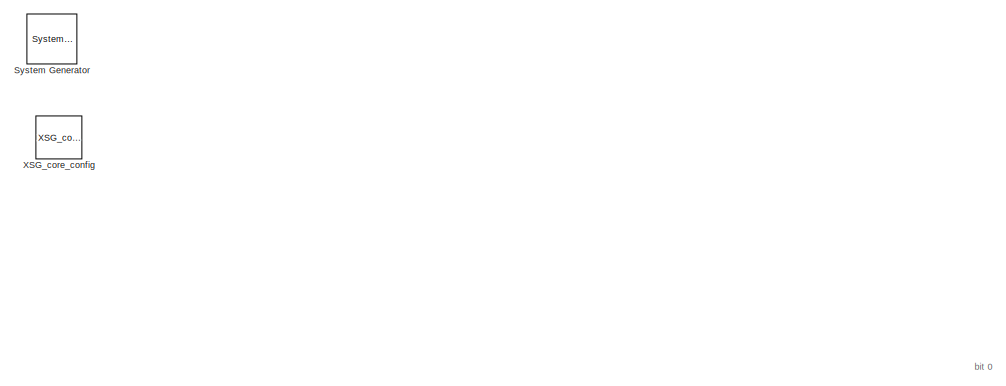
[diagram: root canvas - part 1/2, top left region]
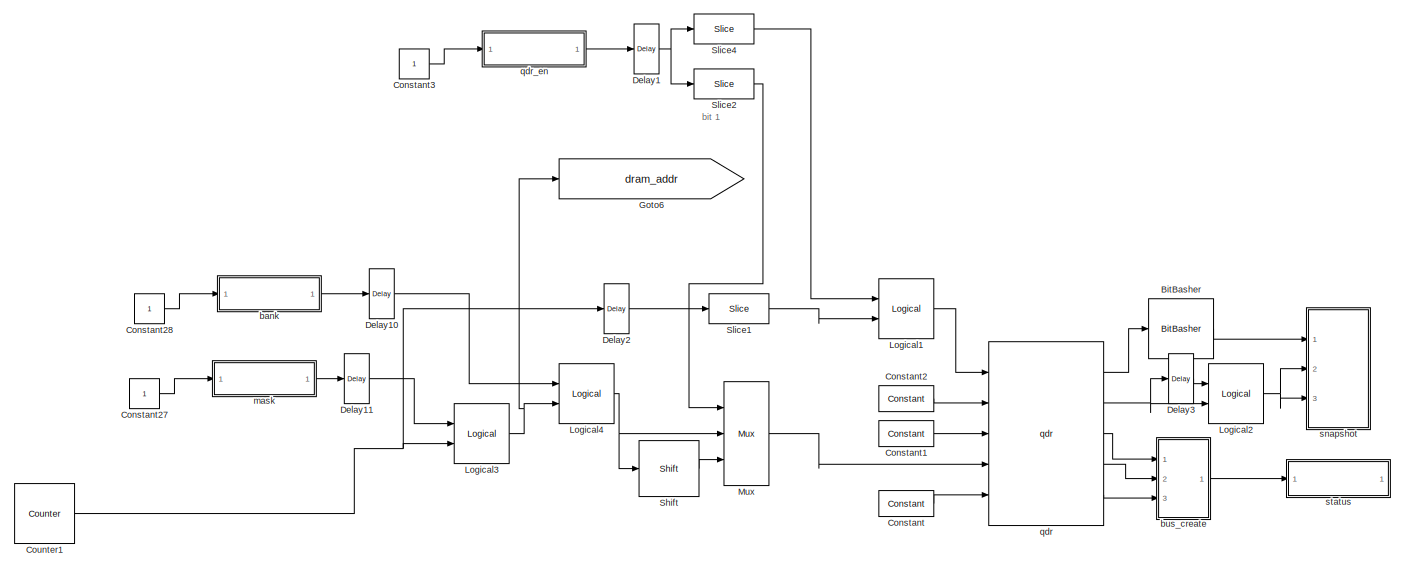
[diagram: root canvas - part 2/2, full width, bottom band]
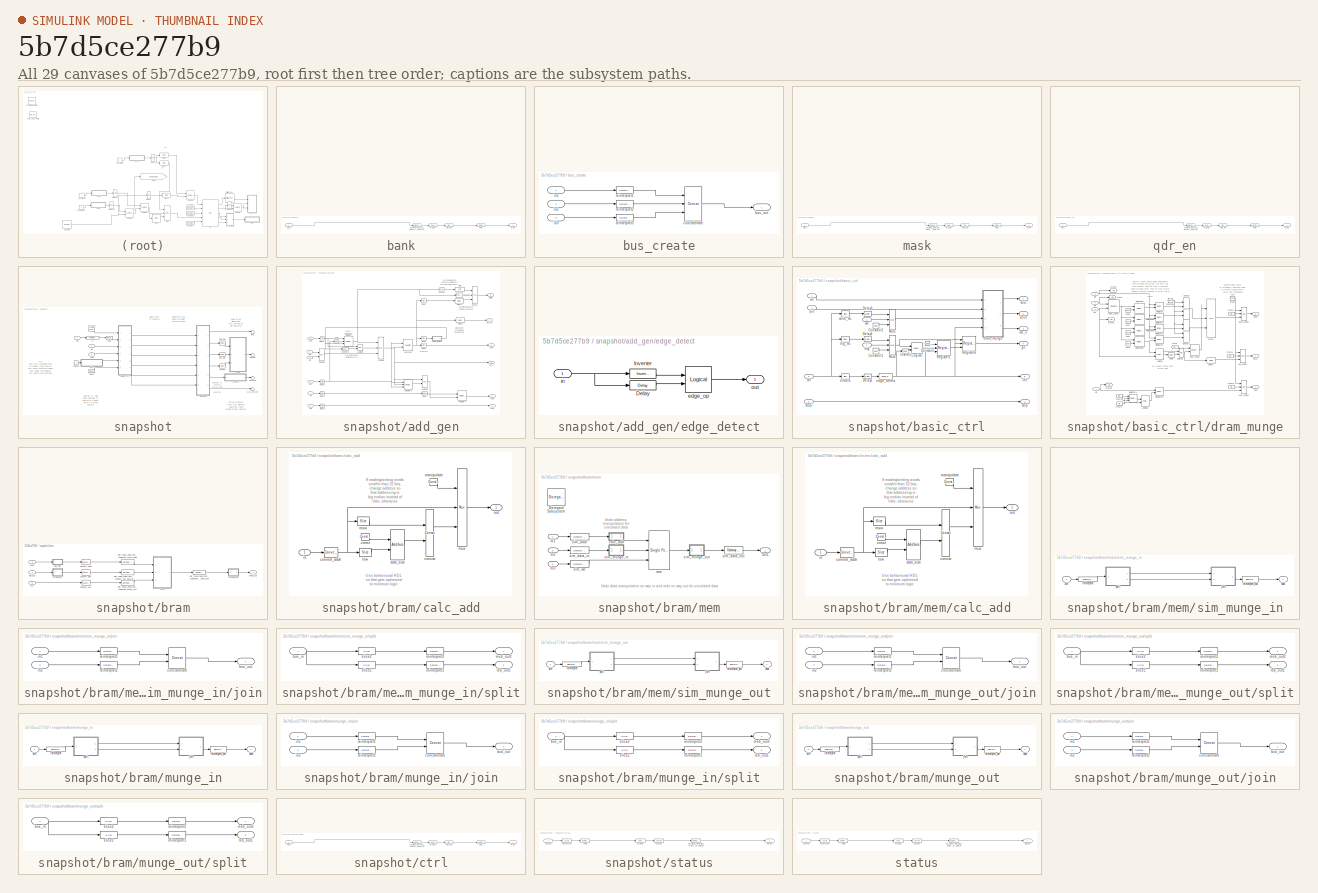
[diagram: thumbnail index - all 29 canvases of the model, root first then tree order]
MODEL slx_5b7d5ce277b9
KIND model
BLOCK [Reference]  System Generator  REF=xbsIndex_r4/ System Generator
  AttributesFormatString = System\nGenerator
  Impl_file = ISE Defaults
  Ports = []
  SourceBlock = xbsIndex_r4/ System Generator
  SourceType = Xilinx System Generator Block
  Synth_file = XST Defaults
  Tag = genX
  UserDataPersistent = on
  block_type = sysgen
  clock_wrapper = Clock Enables
  core_generation = According to Block Masks
  dbl_ovrd = According to Block Masks
  dcm_input_clock_period = 100
  deprecated_control = off
  directory = ./qdr_fpga_read_test/sysgen
  eval_field = 0
  has_advanced_control = 0
  incr_netlist = off
  infoedit = System Generator
  package = ff1759
  part = xc6vsx475t
  proj_type = Project Navigator
  run_coregen = off
  sg_icon_stat = 50,50,-1,-1,token,white,0,07734,right,,[ ],[ ]
  sg_mask_display = fprintf('','COMMENT: begin icon graphics');\npatch([0 50 50 0 0 ],[0 0 50 50 0 ],[1 1 1 ]);\npatch([1.6375 16.81 27.31 37.81 48.31 27.31 12.1375 1.6375 ],[36.655 36.655 47.155 36.655 47.155 47.155 47.155 36.655 ],[0.933333 0.203922 0.141176 ]);\npatch([12.1375 27.31 16.81 1.6375 12.1375 ],[26.155 26.155 36.655 36.655 26.155 ],[0.698039 0.0313725 0.219608 ]);\npatch([1.6375 16.81 27.31 12.1375 1.6375 ]...<+327ch>
  sggui_pos = 326,241,464,470
  simulink_period = 1
  speed = -1
  synthesis_tool = XST
  sysclk_period = 4
  testbench = off
  trim_vbits = Everywhere in SubSystem
  xilinxfamily = virtex6
BLOCK [Reference] BitBasher  REF=xbsIndex_r4/BitBasher
  Ports = [1, 1]
  SourceBlock = xbsIndex_r4/BitBasher
  SourceType = Xilinx BitBasher Block
  arith_type1 = Unsigned
  arith_type2 = Unsigned
  arith_type3 = Unsigned
  arith_type4 = Unsigned
  bin_pt1 = 0
  bin_pt2 = 0
  bin_pt3 = 0
  bin_pt4 = 0
  bitexpr = <!DOCTYPE HTML PUBLIC "-//W3C//DTD HTML 4.0//EN" "http://www.w3.org/TR/REC-html40/strict.dtd">\n<html><head><meta name="qrichtext" content="1" /><style type="text/css">\np, li { white-space: pre-wrap; }\n</style></head><body style=" font-family:'Sans'; font-size:10pt; font-weight:400; font-style:normal;">\n<p style=" margin-top:12px; margin-bottom:12px; margin-left:0px; margin-right:0px; -qt-block-ind...<+128ch>
  block_type = bitbasher
  dbl_ovrd = off
  display_expr = off
  has_advanced_control = 0
  infoedit = Allows extraction, concatenation and augmentation of bits
  sg_icon_stat = 65,60,1,1,white,blue,0,826cc831,right,,[ ],[ ]
  sg_mask_display = fprintf('','COMMENT: begin icon graphics');\npatch([0 65 65 0 0 ],[0 0 60 60 0 ],[0.77 0.82 0.91 ]);\nplot([0 65 65 0 0 ],[0 0 60 60 0 ]);\npatch([14.2 25.76 33.76 41.76 49.76 33.76 22.2 14.2 ],[38.88 38.88 46.88 38.88 46.88 46.88 46.88 38.88 ],[1 1 1 ]);\npatch([22.2 33.76 25.76 14.2 22.2 ],[30.88 30.88 38.88 38.88 30.88 ],[0.931 0.946 0.973 ]);\npatch([14.2 25.76 33.76 22.2 14.2 ],[22.88 22.88 30.88 ...<+345ch>
  sggui_pos = -1,-1,-1,-1
  sr_1 = 1
  sr_2 = 2
  sr_3 = 3
  sr_4 = 4
BLOCK [Reference] Constant  REF=xbsIndex_r4/Constant
  Ports = [0, 1]
  SourceBlock = xbsIndex_r4/Constant
  SourceType = Xilinx Constant Block Block
  arith_type = Signed (2's comp)
  bin_pt = 0
  block_type = constant
  carry = CIN
  const = 0
  dbl_ovrd = off
  dsp48_infoedit = The use of this block for DSP48 instructions is deprecated.  Please use the Opmode block.
  equ = P=C
  exp_width = 8
  explicit_period = on
  frac_width = 24
  gui_display_data_type = Fixed-point
  has_advanced_control = 0
  inp1 = P
  inp2 = PCIN>>17
  n_bits = 72
  opr = +
  opselect = C
  period = 1
  preci_type = Single
  sg_icon_stat = 55,26,0,1,white,blue,0,bf4ddd8b,right,,[ ],[ ]
  sg_mask_display = fprintf('','COMMENT: begin icon graphics');\npatch([0 55 55 0 0 ],[0 0 26 26 0 ],[0.77 0.82 0.91 ]);\nplot([0 55 55 0 0 ],[0 0 26 26 0 ]);\npatch([20.325 24.66 27.66 30.66 33.66 27.66 23.325 20.325 ],[16.33 16.33 19.33 16.33 19.33 19.33 19.33 16.33 ],[1 1 1 ]);\npatch([23.325 27.66 24.66 20.325 23.325 ],[13.33 13.33 16.33 16.33 13.33 ],[0.931 0.946 0.973 ]);\npatch([20.325 24.66 27.66 23.325 20.325 ],[...<+323ch>  <repeated x3 — deduplicated; at blocks: Constant, Constant1, Constant2>
  sggui_pos = -1,-1,-1,-1
BLOCK [Reference] Constant1  REF=xbsIndex_r4/Constant
  Ports = [0, 1]
  SourceBlock = xbsIndex_r4/Constant
  SourceType = Xilinx Constant Block Block
  arith_type = Signed (2's comp)
  bin_pt = 0
  block_type = constant
  carry = CIN
  const = 0
  dbl_ovrd = off
  dsp48_infoedit = The use of this block for DSP48 instructions is deprecated.  Please use the Opmode block.
  equ = P=C
  exp_width = 8
  explicit_period = on
  frac_width = 24
  gui_display_data_type = Fixed-point
  has_advanced_control = 0
  inp1 = P
  inp2 = PCIN>>17
  n_bits = 4
  opr = +
  opselect = C
  period = 1
  preci_type = Single
  sg_icon_stat = 55,26,0,1,white,blue,0,bf4ddd8b,right,,[ ],[ ]
  sggui_pos = -1,-1,-1,-1
BLOCK [Reference] Constant2  REF=xbsIndex_r4/Constant
  Ports = [0, 1]
  SourceBlock = xbsIndex_r4/Constant
  SourceType = Xilinx Constant Block Block
  arith_type = Boolean
  bin_pt = 14
  block_type = constant
  carry = CIN
  const = 0
  dbl_ovrd = off
  dsp48_infoedit = The use of this block for DSP48 instructions is deprecated.  Please use the Opmode block.
  equ = P=C
  exp_width = 8
  explicit_period = on
  frac_width = 24
  gui_display_data_type = Boolean
  has_advanced_control = 0
  inp1 = P
  inp2 = PCIN>>17
  n_bits = 16
  opr = +
  opselect = C
  period = 1
  preci_type = Single
  sg_icon_stat = 55,26,0,1,white,blue,0,bf4ddd8b,right,,[ ],[ ]
  sggui_pos = -1,-1,-1,-1
BLOCK [Constant] Constant27
BLOCK [Constant] Constant28
BLOCK [Constant] Constant3
BLOCK [Reference] Counter1  REF=xbsIndex_r4/Counter
  Ports = [0, 1]
  SourceBlock = xbsIndex_r4/Counter
  SourceType = Xilinx Counter Block
  arith_type = Unsigned
  bin_pt = 0
  block_type = counter
  cnt_by_val = 1
  cnt_to = Inf
  cnt_type = Free Running
  dbl_ovrd = off
  en = off
  explicit_period = on
  has_advanced_control = 0
  implementation = Fabric
  infoedit = Hardware notes: Free running counters are the least expensive in hardware.  A count limited counter is implemented by combining a counter with a comparator.
  load_pin = off
  n_bits = 32
  operation = Up
  period = 1
  rst = off
  sg_icon_stat = 60,60,0,1,white,blue,0,7ac47ef5,right,,[ ],[ ]
  sg_mask_display = fprintf('','COMMENT: begin icon graphics');\npatch([0 60 60 0 0 ],[0 0 60 60 0 ],[0.77 0.82 0.91 ]);\nplot([0 60 60 0 0 ],[0 0 60 60 0 ]);\npatch([12.2 23.76 31.76 39.76 47.76 31.76 20.2 12.2 ],[38.88 38.88 46.88 38.88 46.88 46.88 46.88 38.88 ],[1 1 1 ]);\npatch([20.2 31.76 23.76 12.2 20.2 ],[30.88 30.88 38.88 38.88 30.88 ],[0.931 0.946 0.973 ]);\npatch([12.2 23.76 31.76 20.2 12.2 ],[22.88 22.88 30.88 ...<+321ch>
  sggui_pos = 20,45,451,765
  start_count = 0
  use_behavioral_HDL = off
  xl_area = [0,0,0,0,0,0,0]
  xl_use_area = off
BLOCK [Reference] Delay1  REF=xbsIndex_r4/Delay
  Ports = [1, 1]
  SourceBlock = xbsIndex_r4/Delay
  SourceType = Xilinx Delay Block
  block_type = delay
  dbl_ovrd = off
  en = off
  has_advanced_control = 0
  infoedit = Hardware notes: A delay line is a chain, each link of which is an SRL16 followed by a flip-flop.
  infoeditControl = Selection of Reset will increase slice count due to use of real FFs and instead of SRLs
  latency = 1
  reg_retiming = off
  rst = off
  sg_icon_stat = 25,50,1,1,white,blue,0,07b98262,right,,[ ],[ ]
  sg_mask_display = fprintf('','COMMENT: begin icon graphics');\npatch([0 25 25 0 0 ],[0 0 50 50 0 ],[0.77 0.82 0.91 ]);\nplot([0 25 25 0 0 ],[0 0 50 50 0 ]);\npatch([5.325 9.66 12.66 15.66 18.66 12.66 8.325 5.325 ],[28.33 28.33 31.33 28.33 31.33 31.33 31.33 28.33 ],[1 1 1 ]);\npatch([8.325 12.66 9.66 5.325 8.325 ],[25.33 25.33 28.33 28.33 25.33 ],[0.931 0.946 0.973 ]);\npatch([5.325 9.66 12.66 8.325 5.325 ],[22.33 22.33 ...<+316ch>  <repeated x5 — deduplicated; at blocks: Delay1, Delay10, Delay11, Delay2, Delay3>
  sggui_pos = -1,-1,-1,-1
  xl_area = [0,0,0,0,0,0,0]
  xl_use_area = off
BLOCK [Reference] Delay10  REF=xbsIndex_r4/Delay
  Ports = [1, 1]
  SourceBlock = xbsIndex_r4/Delay
  SourceType = Xilinx Delay Block
  block_type = delay
  dbl_ovrd = off
  en = off
  has_advanced_control = 0
  infoedit = Hardware notes: A delay line is a chain, each link of which is an SRL16 followed by a flip-flop.
  infoeditControl = Selection of Reset will increase slice count due to use of real FFs and instead of SRLs
  latency = 1
  reg_retiming = off
  rst = off
  sg_icon_stat = 25,50,1,1,white,blue,0,07b98262,right,,[ ],[ ]
  sggui_pos = -1,-1,-1,-1
  xl_area = [0,0,0,0,0,0,0]
  xl_use_area = off
BLOCK [Reference] Delay11  REF=xbsIndex_r4/Delay
  Ports = [1, 1]
  SourceBlock = xbsIndex_r4/Delay
  SourceType = Xilinx Delay Block
  block_type = delay
  dbl_ovrd = off
  en = off
  has_advanced_control = 0
  infoedit = Hardware notes: A delay line is a chain, each link of which is an SRL16 followed by a flip-flop.
  infoeditControl = Selection of Reset will increase slice count due to use of real FFs and instead of SRLs
  latency = 1
  reg_retiming = off
  rst = off
  sg_icon_stat = 25,50,1,1,white,blue,0,07b98262,right,,[ ],[ ]
  sggui_pos = -1,-1,-1,-1
  xl_area = [0,0,0,0,0,0,0]
  xl_use_area = off
BLOCK [Reference] Delay2  REF=xbsIndex_r4/Delay
  Ports = [1, 1]
  SourceBlock = xbsIndex_r4/Delay
  SourceType = Xilinx Delay Block
  block_type = delay
  dbl_ovrd = off
  en = off
  has_advanced_control = 0
  infoedit = Hardware notes: A delay line is a chain, each link of which is an SRL16 followed by a flip-flop.
  infoeditControl = Selection of Reset will increase slice count due to use of real FFs and instead of SRLs
  latency = 2
  reg_retiming = off
  rst = off
  sg_icon_stat = 25,50,1,1,white,blue,0,85ce9542,right,,[ ],[ ]
  sggui_pos = 20,45,451,405
  xl_area = [0,0,0,0,0,0,0]
  xl_use_area = off
BLOCK [Reference] Delay3  REF=xbsIndex_r4/Delay
  Ports = [1, 1]
  SourceBlock = xbsIndex_r4/Delay
  SourceType = Xilinx Delay Block
  block_type = delay
  dbl_ovrd = off
  en = off
  has_advanced_control = 0
  infoedit = Hardware notes: A delay line is a chain, each link of which is an SRL16 followed by a flip-flop.
  infoeditControl = Selection of Reset will increase slice count due to use of real FFs and instead of SRLs
  latency = 1
  reg_retiming = off
  rst = off
  sg_icon_stat = 25,50,1,1,white,blue,0,07b98262,right,,[ ],[ ]
  sggui_pos = -1,-1,-1,-1
  xl_area = [0,0,0,0,0,0,0]
  xl_use_area = off
BLOCK [Goto] Goto6
  GotoTag = dram_addr
BLOCK [Reference] Logical1  REF=xbsIndex_r4/Logical
  Ports = [2, 1]
  SourceBlock = xbsIndex_r4/Logical
  SourceType = Xilinx Logical Block Block
  align_bp = on
  arith_type = Unsigned
  bin_pt = 0
  block_type = logical
  dbl_ovrd = off
  en = off
  has_advanced_control = 0
  inputs = 2
  latency = 0
  logical_function = AND
  n_bits = 16
  precision = Full
  sg_icon_stat = 55,60,2,1,white,blue,0,83a4b621,right,,[ ],[ ]
  sg_mask_display = fprintf('','COMMENT: begin icon graphics');\npatch([0 55 55 0 0 ],[0 0 60 60 0 ],[0.77 0.82 0.91 ]);\nplot([0 55 55 0 0 ],[0 0 60 60 0 ]);\npatch([11.425 21.54 28.54 35.54 42.54 28.54 18.425 11.425 ],[37.77 37.77 44.77 37.77 44.77 44.77 44.77 37.77 ],[1 1 1 ]);\npatch([18.425 28.54 21.54 11.425 18.425 ],[30.77 30.77 37.77 37.77 30.77 ],[0.931 0.946 0.973 ]);\npatch([11.425 21.54 28.54 18.425 11.425 ],[...<+315ch>
  sggui_pos = 20,45,451,297
  xl_area = [0,0,0,0,0,0,0]
  xl_use_area = off
BLOCK [Reference] Logical2  REF=xbsIndex_r4/Logical
  Ports = [2, 1]
  SourceBlock = xbsIndex_r4/Logical
  SourceType = Xilinx Logical Block Block
  align_bp = on
  arith_type = Unsigned
  bin_pt = 0
  block_type = logical
  dbl_ovrd = off
  en = off
  has_advanced_control = 0
  inputs = 2
  latency = 0
  logical_function = OR
  n_bits = 16
  precision = Full
  sg_icon_stat = 55,60,2,1,white,blue,0,7ede7d88,right,,[ ],[ ]
  sg_mask_display = fprintf('','COMMENT: begin icon graphics');\npatch([0 55 55 0 0 ],[0 0 60 60 0 ],[0.77 0.82 0.91 ]);\nplot([0 55 55 0 0 ],[0 0 60 60 0 ]);\npatch([11.425 21.54 28.54 35.54 42.54 28.54 18.425 11.425 ],[37.77 37.77 44.77 37.77 44.77 44.77 44.77 37.77 ],[1 1 1 ]);\npatch([18.425 28.54 21.54 11.425 18.425 ],[30.77 30.77 37.77 37.77 30.77 ],[0.931 0.946 0.973 ]);\npatch([11.425 21.54 28.54 18.425 11.425 ],[...<+314ch>
  sggui_pos = 20,45,451,297
  xl_area = [0,0,0,0,0,0,0]
  xl_use_area = off
BLOCK [Reference] Logical3  REF=xbsIndex_r4/Logical
  Ports = [2, 1]
  SourceBlock = xbsIndex_r4/Logical
  SourceType = Xilinx Logical Block Block
  align_bp = on
  arith_type = Unsigned
  bin_pt = 0
  block_type = logical
  dbl_ovrd = off
  en = off
  has_advanced_control = 0
  inputs = 2
  latency = 1
  logical_function = AND
  n_bits = 16
  precision = Full
  sg_icon_stat = 55,60,2,1,white,blue,0,e7f9d02e,right,,[ ],[ ]
  sg_mask_display = fprintf('','COMMENT: begin icon graphics');\npatch([0 55 55 0 0 ],[0 0 60 60 0 ],[0.77 0.82 0.91 ]);\nplot([0 55 55 0 0 ],[0 0 60 60 0 ]);\npatch([11.425 21.54 28.54 35.54 42.54 28.54 18.425 11.425 ],[37.77 37.77 44.77 37.77 44.77 44.77 44.77 37.77 ],[1 1 1 ]);\npatch([18.425 28.54 21.54 11.425 18.425 ],[30.77 30.77 37.77 37.77 30.77 ],[0.931 0.946 0.973 ]);\npatch([11.425 21.54 28.54 18.425 11.425 ],[...<+373ch>
  sggui_pos = 20,45,451,297
  xl_area = [0,0,0,0,0,0,0]
  xl_use_area = off
BLOCK [Reference] Logical4  REF=xbsIndex_r4/Logical
  Ports = [2, 1]
  SourceBlock = xbsIndex_r4/Logical
  SourceType = Xilinx Logical Block Block
  align_bp = on
  arith_type = Unsigned
  bin_pt = 0
  block_type = logical
  dbl_ovrd = off
  en = off
  has_advanced_control = 0
  inputs = 2
  latency = 1
  logical_function = OR
  n_bits = 16
  precision = Full
  sg_icon_stat = 55,60,2,1,white,blue,0,bc838b24,right,,[ ],[ ]
  sg_mask_display = fprintf('','COMMENT: begin icon graphics');\npatch([0 55 55 0 0 ],[0 0 60 60 0 ],[0.77 0.82 0.91 ]);\nplot([0 55 55 0 0 ],[0 0 60 60 0 ]);\npatch([11.425 21.54 28.54 35.54 42.54 28.54 18.425 11.425 ],[37.77 37.77 44.77 37.77 44.77 44.77 44.77 37.77 ],[1 1 1 ]);\npatch([18.425 28.54 21.54 11.425 18.425 ],[30.77 30.77 37.77 37.77 30.77 ],[0.931 0.946 0.973 ]);\npatch([11.425 21.54 28.54 18.425 11.425 ],[...<+372ch>
  sggui_pos = 20,45,451,297
  xl_area = [0,0,0,0,0,0,0]
  xl_use_area = off
BLOCK [Reference] Mux  REF=xbsIndex_r4/Mux
  Ports = [3, 1]
  SourceBlock = xbsIndex_r4/Mux
  SourceType = Xilinx Bus Multiplexer Block
  arith_type = Unsigned
  bin_pt = 14
  block_type = mux
  dbl_ovrd = off
  en = off
  has_advanced_control = 0
  inputs = 2
  latency = 0
  n_bits = 16
  overflow = Wrap
  precision = Full
  quantization = Truncate
  sg_icon_stat = 45,104,3,1,white,blue,3,eb98d690,right,,[ ],[ ]
  sg_mask_display = fprintf('','COMMENT: begin icon graphics');\npatch([0 45 45 0 0 ],[0 14.8571 89.1429 104 0 ],[0.77 0.82 0.91 ]);\nplot([0 45 45 0 0 ],[0 14.8571 89.1429 104 0 ]);\npatch([8.65 17.32 23.32 29.32 35.32 23.32 14.65 8.65 ],[58.66 58.66 64.66 58.66 64.66 64.66 64.66 58.66 ],[1 1 1 ]);\npatch([14.65 23.32 17.32 8.65 14.65 ],[52.66 52.66 58.66 58.66 52.66 ],[0.931 0.946 0.973 ]);\npatch([8.65 17.32 23.32 14.6...<+466ch>
  sggui_pos = 20,45,451,365
  xl_area = [0,0,0,0,0,0,0]
  xl_use_area = off
BLOCK [Reference] Shift  REF=xbsIndex_r4/Shift
  Ports = [1, 1]
  SourceBlock = xbsIndex_r4/Shift
  SourceType = Xilinx Binary Shift Operator Block
  arith_type = Unsigned
  bin_pt = 0
  block_type = shift
  dbl_ovrd = off
  en = off
  has_advanced_control = 0
  infoedit = Hardware notes: In hardware this block costs nothing if full output precision is used.
  latency = 0
  n_bits = 32
  overflow = Wrap
  precision = User Defined
  quantization = Truncate
  sg_icon_stat = 60,56,1,1,white,blue,0,77cd8d92,right,,[ ],[ ]
  sg_mask_display = fprintf('','COMMENT: begin icon graphics');\npatch([0 60 60 0 0 ],[0 0 56 56 0 ],[0.77 0.82 0.91 ]);\nplot([0 60 60 0 0 ],[0 0 56 56 0 ]);\npatch([12.2 23.76 31.76 39.76 47.76 31.76 20.2 12.2 ],[36.88 36.88 44.88 36.88 44.88 44.88 44.88 36.88 ],[1 1 1 ]);\npatch([20.2 31.76 23.76 12.2 20.2 ],[28.88 28.88 36.88 36.88 28.88 ],[0.931 0.946 0.973 ]);\npatch([12.2 23.76 31.76 20.2 12.2 ],[20.88 20.88 28.88 ...<+313ch>
  sggui_pos = 20,45,451,459
  shift_bits = 1
  shift_dir = Right
  xl_area = [0,0,0,0,0,0,0]
  xl_use_area = off
BLOCK [Reference] Slice1  REF=xbsIndex_r4/Slice
  Ports = [1, 1]
  SourceBlock = xbsIndex_r4/Slice
  SourceType = Xilinx Bit Slice Extractor Block
  base0 = LSB of Input
  base1 = LSB of Input
  bit0 = 0
  bit1 = 0
  block_type = slice
  boolean_output = on
  dbl_ovrd = off
  has_advanced_control = 0
  infoedit = Extracts a given range of bits from each input sample and presents it at the output.  The output type is ordinarily unsigned with binary point at zero, but can be Boolean when the slice is one bit wide.<br><br>Hardware notes: In hardware this block costs nothing.  <repeated x22 — deduplicated; at blocks: Slice1, Slice2, Slice4, slice_reg, slice1, slice2, slice3, lsw, msw>
  mode = Lower Bit Location + Width
  nbits = 1
  sg_icon_stat = 60,30,1,1,white,blue,0,1fd851a7,right,,[ ],[ ]
  sg_mask_display = fprintf('','COMMENT: begin icon graphics');\npatch([0 60 60 0 0 ],[0 0 30 30 0 ],[0.77 0.82 0.91 ]);\nplot([0 60 60 0 0 ],[0 0 30 30 0 ]);\npatch([21.1 26.88 30.88 34.88 38.88 30.88 25.1 21.1 ],[19.44 19.44 23.44 19.44 23.44 23.44 23.44 19.44 ],[1 1 1 ]);\npatch([25.1 30.88 26.88 21.1 25.1 ],[15.44 15.44 19.44 19.44 15.44 ],[0.931 0.946 0.973 ]);\npatch([21.1 26.88 30.88 25.1 21.1 ],[11.44 11.44 15.44 ...<+304ch>  <repeated x7 — deduplicated; at blocks: Slice1, Slice2, Slice4, slice_reg>
  sggui_pos = 20,45,591,503
BLOCK [Reference] Slice2  REF=xbsIndex_r4/Slice
  Ports = [1, 1]
  SourceBlock = xbsIndex_r4/Slice
  SourceType = Xilinx Bit Slice Extractor Block
  base0 = LSB of Input
  base1 = LSB of Input
  bit0 = 1
  bit1 = 0
  block_type = slice
  boolean_output = on
  dbl_ovrd = off
  has_advanced_control = 0
  mode = Lower Bit Location + Width
  nbits = 1
  sg_icon_stat = 60,30,1,1,white,blue,0,1fd851a7,right,,[ ],[ ]
  sggui_pos = 20,45,591,503
BLOCK [Reference] Slice4  REF=xbsIndex_r4/Slice
  Ports = [1, 1]
  SourceBlock = xbsIndex_r4/Slice
  SourceType = Xilinx Bit Slice Extractor Block
  base0 = LSB of Input
  base1 = LSB of Input
  bit0 = 0
  bit1 = 0
  block_type = slice
  boolean_output = on
  dbl_ovrd = off
  has_advanced_control = 0
  mode = Lower Bit Location + Width
  nbits = 1
  sg_icon_stat = 60,30,1,1,white,blue,0,1fd851a7,right,,[ ],[ ]
  sggui_pos = 20,45,591,503
BLOCK [Reference] XSG_core_config  REF=xps_library/XSG_core_config  (lib defined in mdl_00b5cec29cd0, mdl_02ab6ecaa3d1, +5 more)
  MKDIG_clk_src = sys_clk
  Ports = []
  ROACH2_clk_src = sys_clk
  ROACH_clk_src = sys_clk
  SourceBlock = xps_library/XSG_core_config
  SourceType = xsg core config
  Tag = xps:xsg
  clk_rate = 250
  clk_src = sys_clk
  hw_sys = ROACH2:sx475t
  sample_period = 1
  synthesis_tool = XST
BLOCK [SubSystem] bank
  AncestorBlock = xps_library/software register
  AttributesFormatString = 1input
  FunctionWithSeparateData = off
  MaskHideContents = off
  MinAlgLoopOccurrences = off
  Opaque = off
  Ports = [1, 1]
  PropExecContextOutsideSubsystem = off
  RTWSystemCode = Auto
  RequestExecContextInheritance = off
  Tag = xps:sw_reg
BLOCK [Outport] bank/in_reg
  IconDisplay = Port number
BLOCK [Reference] bank/io_delay  REF=xbsIndex_r4/Delay
  Ports = [1, 1]
  SourceBlock = xbsIndex_r4/Delay
  SourceType = Xilinx Delay Block
  block_type = delay
  dbl_ovrd = off
  en = off
  has_advanced_control = 0
  infoedit = Hardware notes: A delay line is a chain, each link of which is an SRL16 followed by a flip-flop.
  infoeditControl = Selection of Reset will increase slice count due to use of real FFs and instead of SRLs
  latency = 0
  reg_retiming = on
  rst = off
  sg_icon_stat = 50,20,1,1,white,blue,0,24450e6f,right,,[ ],[ ]
  sg_mask_display = fprintf('','COMMENT: begin icon graphics');\npatch([0 50 50 0 0 ],[0 0 20 20 0 ],[0.77 0.82 0.91 ]);\nplot([0 50 50 0 0 ],[0 0 20 20 0 ]);\npatch([20.55 23.44 25.44 27.44 29.44 25.44 22.55 20.55 ],[12.22 12.22 14.22 12.22 14.22 14.22 14.22 12.22 ],[1 1 1 ]);\npatch([22.55 25.44 23.44 20.55 22.55 ],[10.22 10.22 12.22 12.22 10.22 ],[0.931 0.946 0.973 ]);\npatch([20.55 23.44 25.44 22.55 20.55 ],[8.22 8.22...<+310ch>  <repeated x14 — deduplicated; at blocks: io_delay, slice1, slice2>
  sggui_pos = -1,-1,-1,-1
  xl_area = [0,0,0,0,0,0,0]
  xl_use_area = off
BLOCK [Reference] bank/qdr_fpga_read_test_bank_user_data_out  REF=xbsIndex_r4/Gateway In
  ADCChannel = '1'
  LOCs = {}
  Ports = [1, 1]
  SourceBlock = xbsIndex_r4/Gateway In
  SourceType = Xilinx Gateway In Block
  UseAsADC = off
  arith_type = Unsigned
  bin_pt = 0
  block_type = gatewayin
  dbl_ovrd = off
  exp_width = 8
  frac_width = 24
  gui_display_data_type = Fixed-point
  has_advanced_control = 0
  hdl_port = on
  infoedit = Gateway in block.  Converts inputs of type Simulink integer, single, double and fixed-point to  Xilinx fixed-point or floating-point data type.<br><br>Hardware notes:  In hardware these blocks become top level input ports.  <repeated x6 — deduplicated; at blocks: qdr_fpga_read_test_bank_user_data_out, qdr_fpga_read_test_mask_user_data_out, qdr_fpga_read_test_qdr_en_user_data_out, sim_data_in, qdr_fpga_read_test_snapshot_bram_data_out, qdr_fpga_read_test_snapshot_ctrl_user_data_out>
  inherit_from_input = off
  locs_specified = off
  n_bits = 32
  overflow = Saturate
  period = 1
  preci_type = Single
  quantization = Round  (unbiased: +/- Inf)
  sg_icon_stat = 65,20,1,1,white,yellow,1,00d3666e,right,,[ ],[ ]
  sg_mask_display = fprintf('','COMMENT: begin icon graphics');\npatch([0 65 65 0 0 ],[0 0 20 20 0 ],[0.95 0.93 0.65 ]);\nplot([0 65 65 0 0 ],[0 0 20 20 0 ]);\npatch([27.55 30.44 32.44 34.44 36.44 32.44 29.55 27.55 ],[12.22 12.22 14.22 12.22 14.22 14.22 14.22 12.22 ],[1 1 1 ]);\npatch([29.55 32.44 30.44 27.55 29.55 ],[10.22 10.22 12.22 12.22 10.22 ],[0.985 0.979 0.895 ]);\npatch([27.55 30.44 32.44 29.55 27.55 ],[8.22 8.22...<+383ch>  <repeated x4 — deduplicated; at blocks: qdr_fpga_read_test_bank_user_data_out, qdr_fpga_read_test_mask_user_data_out, qdr_fpga_read_test_qdr_en_user_data_out, qdr_fpga_read_test_snapshot_ctrl_user_data_out>
  sggui_pos = -1,-1,-1,-1
  timing_constraint = None
  xl_area = [0,0,0,0,0,0,0]
  xl_use_area = off
BLOCK [Reference] bank/reint1  REF=xbsIndex_r4/Reinterpret
  Ports = [1, 1]
  SourceBlock = xbsIndex_r4/Reinterpret
  SourceType = Xilinx Type Reinterpreter Block
  arith_type = Unsigned
  bin_pt = 0
  block_type = reinterpret
  force_arith_type = on
  force_bin_pt = on
  has_advanced_control = 0
  infoedit = Changes signal type without altering the binary representation.   You can change the signal between signed and unsigned, and relocate the binary point.<br><br>Hardware notes: In hardware this block costs nothing.<br><br>Example:  Suppose the input is 6 bits wide, signed, with 2 fractional bits, and the output is forced to unsigned with 0 fractional bits.  Then an input of -2.0 (1110.00 in binary 2...<+58ch>  <repeated x23 — deduplicated; at blocks: reint1, reinterpret3, reinterpret, reinterpret_out, reinterpret1, reinterpret2>
  sg_icon_stat = 50,32,1,1,white,blue,0,6b04d0b0,right,,[ ],[ ]
  sg_mask_display = fprintf('','COMMENT: begin icon graphics');\npatch([0 50 50 0 0 ],[0 0 32 32 0 ],[0.77 0.82 0.91 ]);\nplot([0 50 50 0 0 ],[0 0 32 32 0 ]);\npatch([16.1 21.88 25.88 29.88 33.88 25.88 20.1 16.1 ],[20.44 20.44 24.44 20.44 24.44 24.44 24.44 20.44 ],[1 1 1 ]);\npatch([20.1 25.88 21.88 16.1 20.1 ],[16.44 16.44 20.44 20.44 16.44 ],[0.931 0.946 0.973 ]);\npatch([16.1 21.88 25.88 20.1 16.1 ],[12.44 12.44 16.44 ...<+294ch>  <repeated x6 — deduplicated; at blocks: reint1>
  sggui_pos = -1,-1,-1,-1
BLOCK [Inport] bank/sim_1
  IconDisplay = Port number
BLOCK [Reference] bank/slice_reg  REF=xbsIndex_r4/Slice
  Ports = [1, 1]
  SourceBlock = xbsIndex_r4/Slice
  SourceType = Xilinx Bit Slice Extractor Block
  base0 = LSB of Input
  base1 = MSB of Input
  bit0 = 0
  bit1 = 0
  block_type = slice
  boolean_output = off
  dbl_ovrd = off
  has_advanced_control = 0
  mode = Lower Bit Location + Width
  nbits = 32
  sg_icon_stat = 60,30,1,1,white,blue,0,1fd851a7,right,,[ ],[ ]
  sggui_pos = -1,-1,-1,-1
BLOCK [SubSystem] bus_create
  AncestorBlock = casper_library_flow_control/bus_create
  FunctionWithSeparateData = off
  MaskHideContents = off
  MinAlgLoopOccurrences = off
  Opaque = off
  Ports = [3, 1]
  PropExecContextOutsideSubsystem = off
  RTWSystemCode = Auto
  RequestExecContextInheritance = off
  UserDataPersistent = on
BLOCK [Outport] bus_create/bus_out
  IconDisplay = Port number
BLOCK [Reference] bus_create/concatenate  REF=xbsIndex_r4/Concat
  Ports = [3, 1]
  SourceBlock = xbsIndex_r4/Concat
  SourceType = Xilinx Bus Concatenator Block
  block_type = concat
  block_version = 11.4
  dbl_ovrd = off
  has_advanced_control = 0
  infoedit = Concatenates two or more inputs.  Output will be cast to an unsigned value with the binary point at zero.
  num_inputs = 3
  sg_icon_stat = 50,100,3,1,white,blue,0,61ef8218,right,,[ ],[ ]
  sg_mask_display = fprintf('','COMMENT: begin icon graphics');\npatch([0 50 50 0 0 ],[0 0 100 100 0 ],[0.77 0.82 0.91 ]);\nplot([0 50 50 0 0 ],[0 0 100 100 0 ]);\npatch([9.425 19.54 26.54 33.54 40.54 26.54 16.425 9.425 ],[57.77 57.77 64.77 57.77 64.77 64.77 64.77 57.77 ],[1 1 1 ]);\npatch([16.425 26.54 19.54 9.425 16.425 ],[50.77 50.77 57.77 57.77 50.77 ],[0.931 0.946 0.973 ]);\npatch([9.425 19.54 26.54 16.425 9.425 ],[4...<+425ch>
  sggui_pos = -1,-1,-1,-1
BLOCK [Inport] bus_create/in1
  IconDisplay = Port number
BLOCK [Inport] bus_create/in2
  IconDisplay = Port number
  Port = 2
BLOCK [Inport] bus_create/in3
  IconDisplay = Port number
  Port = 3
BLOCK [Reference] bus_create/reinterpret1  REF=xbsIndex_r4/Reinterpret
  Ports = [1, 1]
  SourceBlock = xbsIndex_r4/Reinterpret
  SourceType = Xilinx Type Reinterpreter Block
  arith_type = Unsigned
  bin_pt = 0
  block_type = reinterpret
  block_version = 11.4
  force_arith_type = on
  force_bin_pt = on
  has_advanced_control = 0
  infoedit = Changes signal type without altering the binary representation.   You can changed the signal between signed and unsigned, and relocate the binary point.<br><br>Hardware notes: In hardware this block costs nothing.<br><br>Example:  Suppose the input is 6 bits wide, signed, with 2 fractional bits, and the output is forced to unsigned with 0 fractional bits.  Then an input of -2.0 (1110.00 in binary ...<+59ch>  <repeated x11 — deduplicated; at blocks: reinterpret1, reinterpret2, ri>
  sg_icon_stat = 50,20,1,1,white,blue,0,6b04d0b0,right,,[ ],[ ]
  sg_mask_display = fprintf('','COMMENT: begin icon graphics');\npatch([0 50 50 0 0 ],[0 0 20 20 0 ],[0.77 0.82 0.91 ]);\nplot([0 50 50 0 0 ],[0 0 20 20 0 ]);\npatch([20.55 23.44 25.44 27.44 29.44 25.44 22.55 20.55 ],[12.22 12.22 14.22 12.22 14.22 14.22 14.22 12.22 ],[1 1 1 ]);\npatch([22.55 25.44 23.44 20.55 22.55 ],[10.22 10.22 12.22 12.22 10.22 ],[0.931 0.946 0.973 ]);\npatch([20.55 23.44 25.44 22.55 20.55 ],[8.22 8.22...<+300ch>  <repeated x19 — deduplicated; at blocks: reinterpret1, reinterpret2, reinterpret3>
  sggui_pos = -1,-1,-1,-1
BLOCK [Reference] bus_create/reinterpret2  REF=xbsIndex_r4/Reinterpret
  Ports = [1, 1]
  SourceBlock = xbsIndex_r4/Reinterpret
  SourceType = Xilinx Type Reinterpreter Block
  arith_type = Unsigned
  bin_pt = 0
  block_type = reinterpret
  block_version = 11.4
  force_arith_type = on
  force_bin_pt = on
  has_advanced_control = 0
  sg_icon_stat = 50,20,1,1,white,blue,0,6b04d0b0,right,,[ ],[ ]
  sggui_pos = 281,224,671,460
BLOCK [Reference] bus_create/reinterpret3  REF=xbsIndex_r4/Reinterpret
  Ports = [1, 1]
  SourceBlock = xbsIndex_r4/Reinterpret
  SourceType = Xilinx Type Reinterpreter Block
  arith_type = Unsigned
  bin_pt = 0
  block_type = reinterpret
  force_arith_type = on
  force_bin_pt = on
  has_advanced_control = 0
  sg_icon_stat = 50,20,1,1,white,blue,0,6b04d0b0,right,,[ ],[ ]
  sggui_pos = -1,-1,-1,-1
BLOCK [SubSystem] mask
  AncestorBlock = xps_library/software register
  AttributesFormatString = 1input
  FunctionWithSeparateData = off
  MaskHideContents = off
  MinAlgLoopOccurrences = off
  Opaque = off
  Ports = [1, 1]
  PropExecContextOutsideSubsystem = off
  RTWSystemCode = Auto
  RequestExecContextInheritance = off
  Tag = xps:sw_reg
BLOCK [Outport] mask/in_reg
  IconDisplay = Port number
BLOCK [Reference] mask/io_delay  REF=xbsIndex_r4/Delay
  Ports = [1, 1]
  SourceBlock = xbsIndex_r4/Delay
  SourceType = Xilinx Delay Block
  block_type = delay
  dbl_ovrd = off
  en = off
  has_advanced_control = 0
  infoedit = Hardware notes: A delay line is a chain, each link of which is an SRL16 followed by a flip-flop.
  infoeditControl = Selection of Reset will increase slice count due to use of real FFs and instead of SRLs
  latency = 0
  reg_retiming = on
  rst = off
  sg_icon_stat = 50,20,1,1,white,blue,0,24450e6f,right,,[ ],[ ]
  sggui_pos = -1,-1,-1,-1
  xl_area = [0,0,0,0,0,0,0]
  xl_use_area = off
BLOCK [Reference] mask/qdr_fpga_read_test_mask_user_data_out  REF=xbsIndex_r4/Gateway In
  ADCChannel = '1'
  LOCs = {}
  Ports = [1, 1]
  SourceBlock = xbsIndex_r4/Gateway In
  SourceType = Xilinx Gateway In Block
  UseAsADC = off
  arith_type = Unsigned
  bin_pt = 0
  block_type = gatewayin
  dbl_ovrd = off
  exp_width = 8
  frac_width = 24
  gui_display_data_type = Fixed-point
  has_advanced_control = 0
  hdl_port = on
  inherit_from_input = off
  locs_specified = off
  n_bits = 32
  overflow = Saturate
  period = 1
  preci_type = Single
  quantization = Round  (unbiased: +/- Inf)
  sg_icon_stat = 65,20,1,1,white,yellow,1,00d3666e,right,,[ ],[ ]
  sggui_pos = -1,-1,-1,-1
  timing_constraint = None
  xl_area = [0,0,0,0,0,0,0]
  xl_use_area = off
BLOCK [Reference] mask/reint1  REF=xbsIndex_r4/Reinterpret
  Ports = [1, 1]
  SourceBlock = xbsIndex_r4/Reinterpret
  SourceType = Xilinx Type Reinterpreter Block
  arith_type = Unsigned
  bin_pt = 0
  block_type = reinterpret
  force_arith_type = on
  force_bin_pt = on
  has_advanced_control = 0
  sg_icon_stat = 50,32,1,1,white,blue,0,6b04d0b0,right,,[ ],[ ]
  sggui_pos = -1,-1,-1,-1
BLOCK [Inport] mask/sim_1
  IconDisplay = Port number
BLOCK [Reference] mask/slice_reg  REF=xbsIndex_r4/Slice
  Ports = [1, 1]
  SourceBlock = xbsIndex_r4/Slice
  SourceType = Xilinx Bit Slice Extractor Block
  base0 = LSB of Input
  base1 = MSB of Input
  bit0 = 0
  bit1 = 0
  block_type = slice
  boolean_output = off
  dbl_ovrd = off
  has_advanced_control = 0
  mode = Lower Bit Location + Width
  nbits = 32
  sg_icon_stat = 60,30,1,1,white,blue,0,1fd851a7,right,,[ ],[ ]
  sggui_pos = -1,-1,-1,-1
BLOCK [Reference] qdr  REF=xps_library/qdr  (lib defined in mdl_00b5cec29cd0, mdl_02ab6ecaa3d1, +5 more)
  Ports = [5, 5]
  SourceBlock = xps_library/qdr
  SourceType = qdr
  Tag = xps:qdr
  qdr_awidth = 12
  use_sniffer = on
  which_qdr = qdr0
BLOCK [SubSystem] qdr_en
  AncestorBlock = xps_library/software register
  AttributesFormatString = 1input
  FunctionWithSeparateData = off
  MaskHideContents = off
  MinAlgLoopOccurrences = off
  Opaque = off
  Ports = [1, 1]
  PropExecContextOutsideSubsystem = off
  RTWSystemCode = Auto
  RequestExecContextInheritance = off
  Tag = xps:sw_reg
BLOCK [Outport] qdr_en/in_reg
  IconDisplay = Port number
BLOCK [Reference] qdr_en/io_delay  REF=xbsIndex_r4/Delay
  Ports = [1, 1]
  SourceBlock = xbsIndex_r4/Delay
  SourceType = Xilinx Delay Block
  block_type = delay
  dbl_ovrd = off
  en = off
  has_advanced_control = 0
  infoedit = Hardware notes: A delay line is a chain, each link of which is an SRL16 followed by a flip-flop.
  infoeditControl = Selection of Reset will increase slice count due to use of real FFs and instead of SRLs
  latency = 0
  reg_retiming = on
  rst = off
  sg_icon_stat = 50,20,1,1,white,blue,0,24450e6f,right,,[ ],[ ]
  sggui_pos = -1,-1,-1,-1
  xl_area = [0,0,0,0,0,0,0]
  xl_use_area = off
BLOCK [Reference] qdr_en/qdr_fpga_read_test_qdr_en_user_data_out  REF=xbsIndex_r4/Gateway In
  ADCChannel = '1'
  LOCs = {}
  Ports = [1, 1]
  SourceBlock = xbsIndex_r4/Gateway In
  SourceType = Xilinx Gateway In Block
  UseAsADC = off
  arith_type = Unsigned
  bin_pt = 0
  block_type = gatewayin
  dbl_ovrd = off
  exp_width = 8
  frac_width = 24
  gui_display_data_type = Fixed-point
  has_advanced_control = 0
  hdl_port = on
  inherit_from_input = off
  locs_specified = off
  n_bits = 32
  overflow = Saturate
  period = 1
  preci_type = Single
  quantization = Round  (unbiased: +/- Inf)
  sg_icon_stat = 65,20,1,1,white,yellow,1,00d3666e,right,,[ ],[ ]
  sggui_pos = -1,-1,-1,-1
  timing_constraint = None
  xl_area = [0,0,0,0,0,0,0]
  xl_use_area = off
BLOCK [Reference] qdr_en/reint1  REF=xbsIndex_r4/Reinterpret
  Ports = [1, 1]
  SourceBlock = xbsIndex_r4/Reinterpret
  SourceType = Xilinx Type Reinterpreter Block
  arith_type = Unsigned
  bin_pt = 0
  block_type = reinterpret
  force_arith_type = on
  force_bin_pt = on
  has_advanced_control = 0
  sg_icon_stat = 50,32,1,1,white,blue,0,6b04d0b0,right,,[ ],[ ]
  sggui_pos = -1,-1,-1,-1
BLOCK [Inport] qdr_en/sim_1
  IconDisplay = Port number
BLOCK [Reference] qdr_en/slice_reg  REF=xbsIndex_r4/Slice
  Ports = [1, 1]
  SourceBlock = xbsIndex_r4/Slice
  SourceType = Xilinx Bit Slice Extractor Block
  base0 = LSB of Input
  base1 = MSB of Input
  bit0 = 0
  bit1 = 0
  block_type = slice
  boolean_output = off
  dbl_ovrd = off
  has_advanced_control = 0
  mode = Lower Bit Location + Width
  nbits = 32
  sg_icon_stat = 60,30,1,1,white,blue,0,1fd851a7,right,,[ ],[ ]
  sggui_pos = -1,-1,-1,-1
BLOCK [SubSystem] snapshot
  AncestorBlock = casper_library_scopes/snapshot
  FunctionWithSeparateData = off
  MaskHideContents = off
  MinAlgLoopOccurrences = off
  Opaque = off
  Ports = [3]
  PropExecContextOutsideSubsystem = off
  RTWSystemCode = Auto
  RequestExecContextInheritance = off
  Tag = casper:snapshot
  UserDataPersistent = on
BLOCK [Reference] snapshot/add_del  REF=xbsIndex_r4/Delay
  Ports = [1, 1]
  SourceBlock = xbsIndex_r4/Delay
  SourceType = Xilinx Delay Block
  block_type = delay
  block_version = 11.4
  dbl_ovrd = off
  en = off
  has_advanced_control = 0
  infoedit = Hardware notes: A delay line is a chain, each link of which is an SRL16 followed by a flip-flop.
  infoeditControl = Selection of Reset will increase slice count due to use of real FFs and instead of SRLs
  latency = 1
  reg_retiming = on
  rst = off
  sg_icon_stat = 25,20,1,1,white,blue,0,07b98262,right,,[ ],[ ]
  sg_mask_display = fprintf('','COMMENT: begin icon graphics');\npatch([0 25 25 0 0 ],[0 0 20 20 0 ],[0.77 0.82 0.91 ]);\nplot([0 25 25 0 0 ],[0 0 20 20 0 ]);\npatch([7.55 10.44 12.44 14.44 16.44 12.44 9.55 7.55 ],[12.22 12.22 14.22 12.22 14.22 14.22 14.22 12.22 ],[1 1 1 ]);\npatch([9.55 12.44 10.44 7.55 9.55 ],[10.22 10.22 12.22 12.22 10.22 ],[0.931 0.946 0.973 ]);\npatch([7.55 10.44 12.44 9.55 7.55 ],[8.22 8.22 10.22 10...<+298ch>  <repeated x5 — deduplicated; at blocks: add_del, slice3, trig_src, dat_del, we_del>
  sggui_pos = 21,71,419,315
  xl_area = [0,0,0,0,0,0,0]
  xl_use_area = off
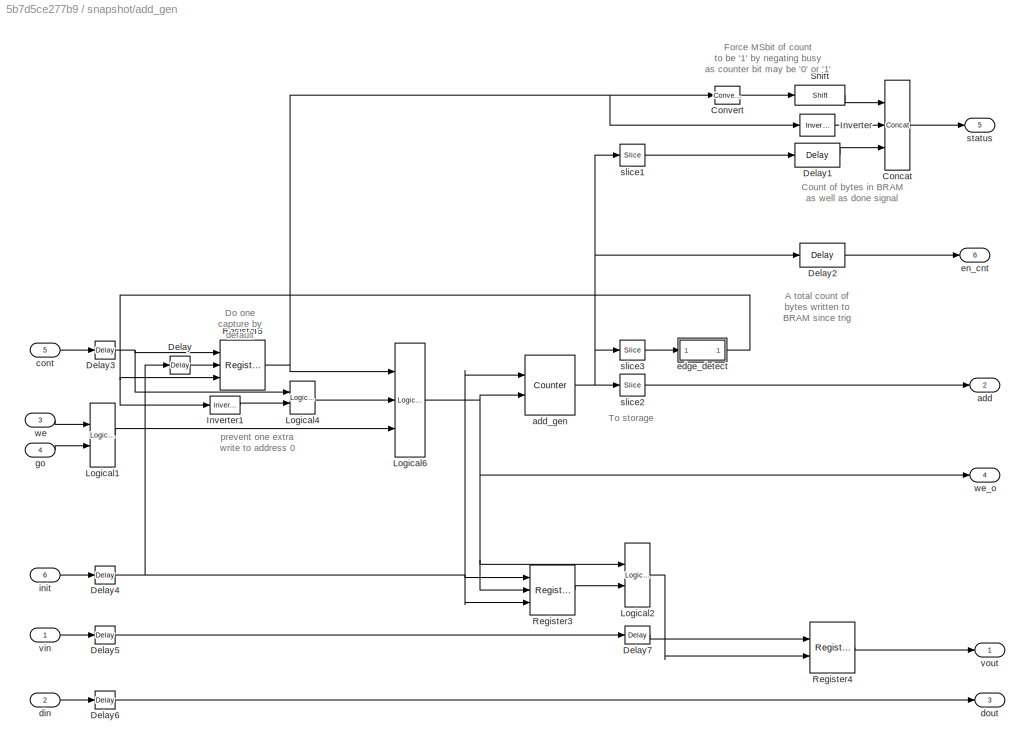
BLOCK [SubSystem] snapshot/add_gen
  AncestorBlock = casper_library_scopes/snapshot/add_gen
  FunctionWithSeparateData = off
  MaskHideContents = off
  MinAlgLoopOccurrences = off
  Opaque = off
  Ports = [6, 6]
  PropExecContextOutsideSubsystem = off
  RTWSystemCode = Auto
  RequestExecContextInheritance = off
BLOCK [Reference] snapshot/add_gen/Concat  REF=xbsIndex_r4/Concat
  Ports = [3, 1]
  SourceBlock = xbsIndex_r4/Concat
  SourceType = Xilinx Bus Concatenator Block
  block_type = concat
  block_version = 10.1.3
  dbl_ovrd = off
  has_advanced_control = 0
  infoedit = Concatenates two or more inputs.  Output will be cast to an unsigned value with the binary point at zero.
  num_inputs = 3
  sg_icon_stat = 25,90,3,1,white,blue,0,61ef8218,right,,[ ],[ ]
  sg_mask_display = fprintf('','COMMENT: begin icon graphics');\npatch([0 25 25 0 0 ],[0 0 90 90 0 ],[0.77 0.82 0.91 ]);\nplot([0 25 25 0 0 ],[0 0 90 90 0 ]);\npatch([5.325 9.66 12.66 15.66 18.66 12.66 8.325 5.325 ],[48.33 48.33 51.33 48.33 51.33 51.33 51.33 48.33 ],[1 1 1 ]);\npatch([8.325 12.66 9.66 5.325 8.325 ],[45.33 45.33 48.33 48.33 45.33 ],[0.931 0.946 0.973 ]);\npatch([5.325 9.66 12.66 8.325 5.325 ],[42.33 42.33 ...<+411ch>
  sggui_pos = 22,78,348,216
BLOCK [Reference] snapshot/add_gen/Convert  REF=xbsIndex_r4/Convert
  Ports = [1, 1]
  SourceBlock = xbsIndex_r4/Convert
  SourceType = Xilinx Type Converter Block
  arith_type = Unsigned
  bin_pt = 0
  block_type = convert
  block_version = 10.1.3
  dbl_ovrd = off
  en = off
  exp_bits = 8
  float_type = Single
  fraction_bits = 24
  gui_display_data_type = Fixed-point
  has_advanced_control = 0
  infoedit = Hardware notes: rounding and saturating require hardware resources; truncating and wrapping do not.
  latency = 0
  n_bits = 32-nsamples-log2(increment)-1
  overflow = Wrap
  pipeline = off
  quantization = Truncate
  sg_icon_stat = 25,18,1,1,white,blue,0,edca21da,right,,[ ],[ ]
  sg_mask_display = fprintf('','COMMENT: begin icon graphics');\npatch([0 25 25 0 0 ],[0 0 18 18 0 ],[0.77 0.82 0.91 ]);\nplot([0 25 25 0 0 ],[0 0 18 18 0 ]);\npatch([7.55 10.44 12.44 14.44 16.44 12.44 9.55 7.55 ],[11.22 11.22 13.22 11.22 13.22 13.22 13.22 11.22 ],[1 1 1 ]);\npatch([9.55 12.44 10.44 7.55 9.55 ],[9.22 9.22 11.22 11.22 9.22 ],[0.931 0.946 0.973 ]);\npatch([7.55 10.44 12.44 9.55 7.55 ],[7.22 7.22 9.22 9.22 7...<+292ch>
  sggui_pos = 539,290,538,429
  xl_area = [0,0,0,0,0,0,0]
  xl_use_area = off
BLOCK [Reference] snapshot/add_gen/Delay  REF=xbsIndex_r4/Delay
  Ports = [1, 1]
  SourceBlock = xbsIndex_r4/Delay
  SourceType = Xilinx Delay Block
  block_type = delay
  block_version = 11.4
  dbl_ovrd = off
  en = off
  has_advanced_control = 0
  infoedit = Hardware notes: A delay line is a chain, each link of which is an SRL16 followed by a flip-flop.
  infoeditControl = Selection of Reset will increase slice count due to use of real FFs and instead of SRLs
  latency = 1
  reg_retiming = on
  rst = off
  sg_icon_stat = 20,18,1,1,white,blue,0,07b98262,right,,[ ],[ ]
  sg_mask_display = fprintf('','COMMENT: begin icon graphics');\npatch([0 20 20 0 0 ],[0 0 18 18 0 ],[0.77 0.82 0.91 ]);\nplot([0 20 20 0 0 ],[0 0 18 18 0 ]);\npatch([5.55 8.44 10.44 12.44 14.44 10.44 7.55 5.55 ],[11.22 11.22 13.22 11.22 13.22 13.22 13.22 11.22 ],[1 1 1 ]);\npatch([7.55 10.44 8.44 5.55 7.55 ],[9.22 9.22 11.22 11.22 9.22 ],[0.931 0.946 0.973 ]);\npatch([5.55 8.44 10.44 7.55 5.55 ],[7.22 7.22 9.22 9.22 7.22...<+289ch>  <repeated x5 — deduplicated; at blocks: Delay, Delay3, Delay4, Delay5, Delay6>
  sggui_pos = 21,71,419,315
  xl_area = [0,0,0,0,0,0,0]
  xl_use_area = off
BLOCK [Reference] snapshot/add_gen/Delay1  REF=xbsIndex_r4/Delay
  Ports = [1, 1]
  SourceBlock = xbsIndex_r4/Delay
  SourceType = Xilinx Delay Block
  block_type = delay
  block_version = 11.4
  dbl_ovrd = off
  en = off
  has_advanced_control = 0
  infoedit = Hardware notes: A delay line is a chain, each link of which is an SRL16 followed by a flip-flop.
  infoeditControl = Selection of Reset will increase slice count due to use of real FFs and instead of SRLs
  latency = 1
  reg_retiming = on
  rst = off
  sg_icon_stat = 45,24,1,1,white,blue,0,07b98262,right,,[ ],[ ]
  sg_mask_display = fprintf('','COMMENT: begin icon graphics');\npatch([0 45 45 0 0 ],[0 0 24 24 0 ],[0.77 0.82 0.91 ]);\nplot([0 45 45 0 0 ],[0 0 24 24 0 ]);\npatch([15.325 19.66 22.66 25.66 28.66 22.66 18.325 15.325 ],[15.33 15.33 18.33 15.33 18.33 18.33 18.33 15.33 ],[1 1 1 ]);\npatch([18.325 22.66 19.66 15.325 18.325 ],[12.33 12.33 15.33 15.33 12.33 ],[0.931 0.946 0.973 ]);\npatch([15.325 19.66 22.66 18.325 15.325 ],[...<+322ch>
  sggui_pos = -1,-1,-1,-1
  xl_area = [0,0,0,0,0,0,0]
  xl_use_area = off
BLOCK [Reference] snapshot/add_gen/Delay2  REF=xbsIndex_r4/Delay
  Ports = [1, 1]
  SourceBlock = xbsIndex_r4/Delay
  SourceType = Xilinx Delay Block
  block_type = delay
  block_version = 11.4
  dbl_ovrd = off
  en = off
  has_advanced_control = 0
  infoedit = Hardware notes: A delay line is a chain, each link of which is an SRL16 followed by a flip-flop.
  infoeditControl = Selection of Reset will increase slice count due to use of real FFs and instead of SRLs
  latency = 1
  reg_retiming = on
  rst = off
  sg_icon_stat = 45,24,1,1,white,blue,0,07b98262,right,,[ ],[ ]
  sg_mask_display = fprintf('','COMMENT: begin icon graphics');\npatch([0 45 45 0 0 ],[0 0 24 24 0 ],[0.77 0.82 0.91 ]);\nplot([0 45 45 0 0 ],[0 0 24 24 0 ]);\npatch([15.325 19.66 22.66 25.66 28.66 22.66 18.325 15.325 ],[15.33 15.33 18.33 15.33 18.33 18.33 18.33 15.33 ],[1 1 1 ]);\npatch([18.325 22.66 19.66 15.325 18.325 ],[12.33 12.33 15.33 15.33 12.33 ],[0.931 0.946 0.973 ]);\npatch([15.325 19.66 22.66 18.325 15.325 ],[...<+322ch>
  sggui_pos = -1,-1,-1,-1
  xl_area = [0,0,0,0,0,0,0]
  xl_use_area = off
BLOCK [Reference] snapshot/add_gen/Delay3  REF=xbsIndex_r4/Delay
  Ports = [1, 1]
  SourceBlock = xbsIndex_r4/Delay
  SourceType = Xilinx Delay Block
  block_type = delay
  block_version = 11.4
  dbl_ovrd = off
  en = off
  has_advanced_control = 0
  infoedit = Hardware notes: A delay line is a chain, each link of which is an SRL16 followed by a flip-flop.
  infoeditControl = Selection of Reset will increase slice count due to use of real FFs and instead of SRLs
  latency = 1
  reg_retiming = on
  rst = off
  sg_icon_stat = 20,18,1,1,white,blue,0,07b98262,right,,[ ],[ ]
  sggui_pos = 21,71,419,315
  xl_area = [0,0,0,0,0,0,0]
  xl_use_area = off
BLOCK [Reference] snapshot/add_gen/Delay4  REF=xbsIndex_r4/Delay
  Ports = [1, 1]
  SourceBlock = xbsIndex_r4/Delay
  SourceType = Xilinx Delay Block
  block_type = delay
  block_version = 11.4
  dbl_ovrd = off
  en = off
  has_advanced_control = 0
  infoedit = Hardware notes: A delay line is a chain, each link of which is an SRL16 followed by a flip-flop.
  infoeditControl = Selection of Reset will increase slice count due to use of real FFs and instead of SRLs
  latency = 1
  reg_retiming = on
  rst = off
  sg_icon_stat = 20,18,1,1,white,blue,0,07b98262,right,,[ ],[ ]
  sggui_pos = 21,71,419,315
  xl_area = [0,0,0,0,0,0,0]
  xl_use_area = off
BLOCK [Reference] snapshot/add_gen/Delay5  REF=xbsIndex_r4/Delay
  Ports = [1, 1]
  SourceBlock = xbsIndex_r4/Delay
  SourceType = Xilinx Delay Block
  block_type = delay
  block_version = 11.4
  dbl_ovrd = off
  en = off
  has_advanced_control = 0
  infoedit = Hardware notes: A delay line is a chain, each link of which is an SRL16 followed by a flip-flop.
  infoeditControl = Selection of Reset will increase slice count due to use of real FFs and instead of SRLs
  latency = 1
  reg_retiming = on
  rst = off
  sg_icon_stat = 20,18,1,1,white,blue,0,07b98262,right,,[ ],[ ]
  sggui_pos = 21,71,419,315
  xl_area = [0,0,0,0,0,0,0]
  xl_use_area = off
BLOCK [Reference] snapshot/add_gen/Delay6  REF=xbsIndex_r4/Delay
  Ports = [1, 1]
  SourceBlock = xbsIndex_r4/Delay
  SourceType = Xilinx Delay Block
  block_type = delay
  block_version = 11.4
  dbl_ovrd = off
  en = off
  has_advanced_control = 0
  infoedit = Hardware notes: A delay line is a chain, each link of which is an SRL16 followed by a flip-flop.
  infoeditControl = Selection of Reset will increase slice count due to use of real FFs and instead of SRLs
  latency = 1
  reg_retiming = on
  rst = off
  sg_icon_stat = 20,18,1,1,white,blue,0,07b98262,right,,[ ],[ ]
  sggui_pos = 21,71,419,315
  xl_area = [0,0,0,0,0,0,0]
  xl_use_area = off
BLOCK [Reference] snapshot/add_gen/Delay7  REF=xbsIndex_r4/Delay
  Ports = [1, 1]
  SourceBlock = xbsIndex_r4/Delay
  SourceType = Xilinx Delay Block
  block_type = delay
  block_version = 11.4
  dbl_ovrd = off
  en = off
  has_advanced_control = 0
  infoedit = Hardware notes: A delay line is a chain, each link of which is an SRL16 followed by a flip-flop.
  infoeditControl = Selection of Reset will increase slice count due to use of real FFs and instead of SRLs
  latency = 1
  reg_retiming = on
  rst = off
  sg_icon_stat = 25,18,1,1,white,blue,0,07b98262,right,,[ ],[ ]
  sg_mask_display = fprintf('','COMMENT: begin icon graphics');\npatch([0 25 25 0 0 ],[0 0 18 18 0 ],[0.77 0.82 0.91 ]);\nplot([0 25 25 0 0 ],[0 0 18 18 0 ]);\npatch([7.55 10.44 12.44 14.44 16.44 12.44 9.55 7.55 ],[11.22 11.22 13.22 11.22 13.22 13.22 13.22 11.22 ],[1 1 1 ]);\npatch([9.55 12.44 10.44 7.55 9.55 ],[9.22 9.22 11.22 11.22 9.22 ],[0.931 0.946 0.973 ]);\npatch([7.55 10.44 12.44 9.55 7.55 ],[7.22 7.22 9.22 9.22 7...<+293ch>
  sggui_pos = 22,98,419,315
  xl_area = [0,0,0,0,0,0,0]
  xl_use_area = off
BLOCK [Reference] snapshot/add_gen/Inverter  REF=xbsIndex_r4/Inverter
  Ports = [1, 1]
  SourceBlock = xbsIndex_r4/Inverter
  SourceType = Xilinx Inverter Block
  block_type = inv
  block_version = 11.4
  dbl_ovrd = off
  en = off
  has_advanced_control = 0
  infoedit = Bitwise logical negation (one's complement) operator.
  latency = 1
  sg_icon_stat = 35,22,1,1,white,blue,0,e69ac283,right,,[ ],[ ]
  sg_mask_display = fprintf('','COMMENT: begin icon graphics');\npatch([0 35 35 0 0 ],[0 0 22 22 0 ],[0.77 0.82 0.91 ]);\nplot([0 35 35 0 0 ],[0 0 22 22 0 ]);\npatch([10.325 14.66 17.66 20.66 23.66 17.66 13.325 10.325 ],[14.33 14.33 17.33 14.33 17.33 17.33 17.33 14.33 ],[1 1 1 ]);\npatch([13.325 17.66 14.66 10.325 13.325 ],[11.33 11.33 14.33 14.33 11.33 ],[0.931 0.946 0.973 ]);\npatch([10.325 14.66 17.66 13.325 10.325 ],[...<+362ch>
  sggui_pos = 24,152,419,325
  xl_area = [0,0,0,0,0,0,0]
  xl_use_area = off
BLOCK [Reference] snapshot/add_gen/Inverter1  REF=xbsIndex_r4/Inverter
  Ports = [1, 1]
  SourceBlock = xbsIndex_r4/Inverter
  SourceType = Xilinx Inverter Block
  block_type = inv
  block_version = 11.4
  dbl_ovrd = off
  en = off
  has_advanced_control = 0
  infoedit = Bitwise logical negation (one's complement) operator.
  latency = 0
  sg_icon_stat = 30,18,1,1,white,blue,0,267846e5,right,,[ ],[ ]
  sg_mask_display = fprintf('','COMMENT: begin icon graphics');\npatch([0 30 30 0 0 ],[0 0 18 18 0 ],[0.77 0.82 0.91 ]);\nplot([0 30 30 0 0 ],[0 0 18 18 0 ]);\npatch([10.55 13.44 15.44 17.44 19.44 15.44 12.55 10.55 ],[11.22 11.22 13.22 11.22 13.22 13.22 13.22 11.22 ],[1 1 1 ]);\npatch([12.55 15.44 13.44 10.55 12.55 ],[9.22 9.22 11.22 11.22 9.22 ],[0.931 0.946 0.973 ]);\npatch([10.55 13.44 15.44 12.55 10.55 ],[7.22 7.22 9....<+287ch>
  sggui_pos = 21,71,419,325
  xl_area = [0,0,0,0,0,0,0]
  xl_use_area = off
BLOCK [Reference] snapshot/add_gen/Logical1  REF=xbsIndex_r4/Logical
  Ports = [2, 1]
  SourceBlock = xbsIndex_r4/Logical
  SourceType = Xilinx Logical Block Block
  align_bp = on
  arith_type = Unsigned
  bin_pt = 2
  block_type = logical
  block_version = 10.1.3
  dbl_ovrd = off
  en = off
  has_advanced_control = 0
  inputs = 2
  latency = 1
  logical_function = AND
  n_bits = 8
  precision = Full
  sg_icon_stat = 25,64,2,1,white,blue,0,e7f9d02e,right,,[ ],[ ]
  sg_list_contents = {'table'=>{'logical_function'=>'popup(AND|NAND|OR|NOR|XOR|XNOR)','userSelections'=>{'logical_function'=>'AND'}}}
  sg_mask_display = fprintf('','COMMENT: begin icon graphics');\npatch([0 25 25 0 0 ],[0 0 64 64 0 ],[0.77 0.82 0.91 ]);\nplot([0 25 25 0 0 ],[0 0 64 64 0 ]);\npatch([5.325 9.66 12.66 15.66 18.66 12.66 8.325 5.325 ],[35.33 35.33 38.33 35.33 38.33 38.33 38.33 35.33 ],[1 1 1 ]);\npatch([8.325 12.66 9.66 5.325 8.325 ],[32.33 32.33 35.33 35.33 32.33 ],[0.931 0.946 0.973 ]);\npatch([5.325 9.66 12.66 8.325 5.325 ],[29.33 29.33 ...<+357ch>
  sggui_pos = 27,213,419,291
  xl_area = [0, 0, 0, 0, 0, 0, 0]
  xl_use_area = off
BLOCK [Reference] snapshot/add_gen/Logical2  REF=xbsIndex_r4/Logical
  Ports = [2, 1]
  SourceBlock = xbsIndex_r4/Logical
  SourceType = Xilinx Logical Block Block
  align_bp = on
  arith_type = Unsigned
  bin_pt = 2
  block_type = logical
  block_version = 10.1.3
  dbl_ovrd = off
  en = off
  has_advanced_control = 0
  inputs = 2
  latency = 1
  logical_function = AND
  n_bits = 8
  precision = Full
  sg_icon_stat = 25,64,2,1,white,blue,0,e7f9d02e,right,,[ ],[ ]
  sg_list_contents = {'table'=>{'logical_function'=>'popup(AND|NAND|OR|NOR|XOR|XNOR)','userSelections'=>{'logical_function'=>'AND'}}}
  sg_mask_display = fprintf('','COMMENT: begin icon graphics');\npatch([0 25 25 0 0 ],[0 0 64 64 0 ],[0.77 0.82 0.91 ]);\nplot([0 25 25 0 0 ],[0 0 64 64 0 ]);\npatch([5.325 9.66 12.66 15.66 18.66 12.66 8.325 5.325 ],[35.33 35.33 38.33 35.33 38.33 38.33 38.33 35.33 ],[1 1 1 ]);\npatch([8.325 12.66 9.66 5.325 8.325 ],[32.33 32.33 35.33 35.33 32.33 ],[0.931 0.946 0.973 ]);\npatch([5.325 9.66 12.66 8.325 5.325 ],[29.33 29.33 ...<+357ch>
  sggui_pos = 22,78,419,291
  xl_area = [0, 0, 0, 0, 0, 0, 0]
  xl_use_area = off
BLOCK [Reference] snapshot/add_gen/Logical4  REF=xbsIndex_r4/Logical
  Ports = [2, 1]
  SourceBlock = xbsIndex_r4/Logical
  SourceType = Xilinx Logical Block Block
  align_bp = on
  arith_type = Unsigned
  bin_pt = 2
  block_type = logical
  block_version = 10.1.3
  dbl_ovrd = off
  en = off
  has_advanced_control = 0
  inputs = 2
  latency = 0
  logical_function = OR
  n_bits = 8
  precision = Full
  sg_icon_stat = 25,33,2,1,white,blue,0,7ede7d88,right,,[ ],[ ]
  sg_list_contents = {'table'=>{'logical_function'=>'popup(AND|NAND|OR|NOR|XOR|XNOR)','userSelections'=>{'logical_function'=>'OR'}}}
  sg_mask_display = fprintf('','COMMENT: begin icon graphics');\npatch([0 25 25 0 0 ],[0 0 33 33 0 ],[0.77 0.82 0.91 ]);\nplot([0 25 25 0 0 ],[0 0 33 33 0 ]);\npatch([5.325 9.66 12.66 15.66 18.66 12.66 8.325 5.325 ],[19.33 19.33 22.33 19.33 22.33 22.33 22.33 19.33 ],[1 1 1 ]);\npatch([8.325 12.66 9.66 5.325 8.325 ],[16.33 16.33 19.33 19.33 16.33 ],[0.931 0.946 0.973 ]);\npatch([5.325 9.66 12.66 8.325 5.325 ],[13.33 13.33 ...<+298ch>
  sggui_pos = 24,132,419,291
  xl_area = [0, 0, 0, 0, 0, 0, 0]
  xl_use_area = off
BLOCK [Reference] snapshot/add_gen/Logical6  REF=xbsIndex_r4/Logical
  Ports = [3, 1]
  SourceBlock = xbsIndex_r4/Logical
  SourceType = Xilinx Logical Block Block
  align_bp = on
  arith_type = Unsigned
  bin_pt = 2
  block_type = logical
  block_version = 10.1.3
  dbl_ovrd = off
  en = off
  has_advanced_control = 0
  inputs = 3
  latency = 0
  logical_function = AND
  n_bits = 8
  precision = Full
  sg_icon_stat = 30,114,3,1,white,blue,0,98d76266,right,,[ ],[ ]
  sg_list_contents = {'table'=>{'logical_function'=>'popup(AND|NAND|OR|NOR|XOR|XNOR)','userSelections'=>{'logical_function'=>'AND'}}}
  sg_mask_display = fprintf('','COMMENT: begin icon graphics');\npatch([0 30 30 0 0 ],[0 0 114 114 0 ],[0.77 0.82 0.91 ]);\nplot([0 30 30 0 0 ],[0 0 114 114 0 ]);\npatch([6.1 11.88 15.88 19.88 23.88 15.88 10.1 6.1 ],[61.44 61.44 65.44 61.44 65.44 65.44 65.44 61.44 ],[1 1 1 ]);\npatch([10.1 15.88 11.88 6.1 10.1 ],[57.44 57.44 61.44 61.44 57.44 ],[0.931 0.946 0.973 ]);\npatch([6.1 11.88 15.88 10.1 6.1 ],[53.44 53.44 57.44 5...<+290ch>
  sggui_pos = 22,78,419,291
  xl_area = [0, 0, 0, 0, 0, 0, 0]
  xl_use_area = off
BLOCK [Reference] snapshot/add_gen/Register3  REF=xbsIndex_r4/Register
  Ports = [3, 1]
  SourceBlock = xbsIndex_r4/Register
  SourceType = Xilinx Register Block
  block_type = register
  block_version = 10.1.3
  dbl_ovrd = off
  en = on
  has_advanced_control = 0
  init = 0
  rst = on
  sg_icon_stat = 45,50,3,1,white,blue,0,30546de1,right,,[ ],[ ]
  sg_mask_display = fprintf('','COMMENT: begin icon graphics');\npatch([0 45 45 0 0 ],[0 0 50 50 0 ],[0.77 0.82 0.91 ]);\nplot([0 45 45 0 0 ],[0 0 50 50 0 ]);\npatch([8.65 17.32 23.32 29.32 35.32 23.32 14.65 8.65 ],[31.66 31.66 37.66 31.66 37.66 37.66 37.66 31.66 ],[1 1 1 ]);\npatch([14.65 23.32 17.32 8.65 14.65 ],[25.66 25.66 31.66 31.66 25.66 ],[0.931 0.946 0.973 ]);\npatch([8.65 17.32 23.32 14.65 8.65 ],[19.66 19.66 25...<+484ch>  <repeated x4 — deduplicated; at blocks: Register3, Register5, Register1, Register6>
  sggui_pos = 20,20,348,193
  xl_area = [0, 0, 0, 0, 0, 0, 0]
  xl_use_area = off
BLOCK [Reference] snapshot/add_gen/Register4  REF=xbsIndex_r4/Register
  Ports = [2, 1]
  SourceBlock = xbsIndex_r4/Register
  SourceType = Xilinx Register Block
  block_type = register
  block_version = 10.1.3
  dbl_ovrd = off
  en = on
  has_advanced_control = 0
  init = 0
  rst = off
  sg_icon_stat = 45,51,2,1,white,blue,0,6bd0930c,right,,[ ],[ ]
  sg_mask_display = fprintf('','COMMENT: begin icon graphics');\npatch([0 45 45 0 0 ],[0 0 51 51 0 ],[0.77 0.82 0.91 ]);\nplot([0 45 45 0 0 ],[0 0 51 51 0 ]);\npatch([8.65 17.32 23.32 29.32 35.32 23.32 14.65 8.65 ],[31.66 31.66 37.66 31.66 37.66 37.66 37.66 31.66 ],[1 1 1 ]);\npatch([14.65 23.32 17.32 8.65 14.65 ],[25.66 25.66 31.66 31.66 25.66 ],[0.931 0.946 0.973 ]);\npatch([8.65 17.32 23.32 14.65 8.65 ],[19.66 19.66 25...<+440ch>
  sggui_pos = 21,51,419,209
  xl_area = [0, 0, 0, 0, 0, 0, 0]
  xl_use_area = off
BLOCK [Reference] snapshot/add_gen/Register5  REF=xbsIndex_r4/Register
  Ports = [3, 1]
  SourceBlock = xbsIndex_r4/Register
  SourceType = Xilinx Register Block
  block_type = register
  block_version = 10.1.3
  dbl_ovrd = off
  en = on
  has_advanced_control = 0
  init = 1
  rst = on
  sg_icon_stat = 45,50,3,1,white,blue,0,30546de1,right,,[ ],[ ]
  sggui_pos = 24,132,419,209
  xl_area = [0, 0, 0, 0, 0, 0, 0]
  xl_use_area = off
BLOCK [Reference] snapshot/add_gen/Shift  REF=xbsIndex_r4/Shift
  Ports = [1, 1]
  SourceBlock = xbsIndex_r4/Shift
  SourceType = Xilinx Binary Shift Operator Block
  arith_type = Signed  (2's comp)
  bin_pt = 14
  block_type = shift
  block_version = 11.4
  dbl_ovrd = off
  en = off
  has_advanced_control = 0
  infoedit = Hardware notes: In hardware this block costs nothing if full output precision is used.
  latency = 1
  n_bits = 16
  overflow = Wrap
  precision = Full
  quantization = Truncate
  sg_icon_stat = 50,20,1,1,white,blue,0,b382c2ba,right,,[ ],[ ]
  sg_mask_display = fprintf('','COMMENT: begin icon graphics');\npatch([0 50 50 0 0 ],[0 0 20 20 0 ],[0.77 0.82 0.91 ]);\nplot([0 50 50 0 0 ],[0 0 20 20 0 ]);\npatch([20.55 23.44 25.44 27.44 29.44 25.44 22.55 20.55 ],[12.22 12.22 14.22 12.22 14.22 14.22 14.22 12.22 ],[1 1 1 ]);\npatch([22.55 25.44 23.44 20.55 22.55 ],[10.22 10.22 12.22 12.22 10.22 ],[0.931 0.946 0.973 ]);\npatch([20.55 23.44 25.44 22.55 20.55 ],[8.22 8.22...<+380ch>
  sggui_pos = 595,360,419,444
  shift_bits = 32-nsamples-log2(increment)-1-1
  shift_dir = Left
  xl_area = [0,0,0,0,0,0,0]
  xl_use_area = off
BLOCK [Outport] snapshot/add_gen/add
  IconDisplay = Port number
  Port = 2
BLOCK [Reference] snapshot/add_gen/add_gen  REF=xbsIndex_r4/Counter
  Ports = [2, 1]
  SourceBlock = xbsIndex_r4/Counter
  SourceType = Xilinx Counter Block
  arith_type = Unsigned
  bin_pt = 0
  block_type = counter
  block_version = 10.1.3
  cnt_by_val = increment
  cnt_to = 1
  cnt_type = Free Running
  dbl_ovrd = off
  en = on
  explicit_period = on
  has_advanced_control = 0
  implementation = DSP48
  infoedit = Hardware notes: Free running counters are the least expensive in hardware.  A count limited counter is implemented by combining a counter with a comparator.
  load_pin = off
  n_bits = counter_size
  operation = Up
  period = 1
  rst = on
  sg_icon_stat = 50,60,2,1,white,blue,0,ae3608d6,right,,[ ],[ ]
  sg_mask_display = fprintf('','COMMENT: begin icon graphics');\npatch([0 50 50 0 0 ],[0 0 60 60 0 ],[0.77 0.82 0.91 ]);\nplot([0 50 50 0 0 ],[0 0 60 60 0 ]);\npatch([9.425 19.54 26.54 33.54 40.54 26.54 16.425 9.425 ],[37.77 37.77 44.77 37.77 44.77 44.77 44.77 37.77 ],[1 1 1 ]);\npatch([16.425 26.54 19.54 9.425 16.425 ],[30.77 30.77 37.77 37.77 30.77 ],[0.931 0.946 0.973 ]);\npatch([9.425 19.54 26.54 16.425 9.425 ],[23.77...<+426ch>
  sggui_pos = 130,423,419,748
  start_count = 0
  use_behavioral_HDL = off
  use_rpm = on
  xl_area = [0, 0, 0, 0, 0, 0, 0]
  xl_use_area = off
BLOCK [Inport] snapshot/add_gen/cont
  IconDisplay = Port number
  Port = 5
BLOCK [Inport] snapshot/add_gen/din
  IconDisplay = Port number
  Port = 2
BLOCK [Outport] snapshot/add_gen/dout
  IconDisplay = Port number
  Port = 3
BLOCK [SubSystem] snapshot/add_gen/edge_detect
  AncestorBlock = casper_library_misc/edge_detect
  AttributesFormatString = both edges\nactive high
  FunctionWithSeparateData = off
  MaskHideContents = off
  MinAlgLoopOccurrences = off
  Opaque = off
  Ports = [1, 1]
  PropExecContextOutsideSubsystem = off
  RTWSystemCode = Auto
  RequestExecContextInheritance = off
  UserDataPersistent = on
BLOCK [Reference] snapshot/add_gen/edge_detect/Delay  REF=xbsIndex_r4/Delay
  Ports = [1, 1]
  SourceBlock = xbsIndex_r4/Delay
  SourceType = Xilinx Delay Block
  block_type = delay
  block_version = 10.1.3
  dbl_ovrd = off
  en = off
  has_advanced_control = 0
  infoedit = Hardware notes: A delay line is a chain, each link of which is an SRL16 followed by a flip-flop.
  infoeditControl = Selection of Reset will increase slice count due to use of real FFs and instead of SRLs
  latency = 1
  reg_retiming = on
  rst = off
  sg_icon_stat = 45,16,1,1,white,blue,0,07b98262,right,,[ ],[ ]
  sg_mask_display = fprintf('','COMMENT: begin icon graphics');\npatch([0 45 45 0 0 ],[0 0 16 16 0 ],[0.77 0.82 0.91 ]);\nplot([0 45 45 0 0 ],[0 0 16 16 0 ]);\npatch([17.55 20.44 22.44 24.44 26.44 22.44 19.55 17.55 ],[10.22 10.22 12.22 10.22 12.22 12.22 12.22 10.22 ],[1 1 1 ]);\npatch([19.55 22.44 20.44 17.55 19.55 ],[8.22 8.22 10.22 10.22 8.22 ],[0.931 0.946 0.973 ]);\npatch([17.55 20.44 22.44 19.55 17.55 ],[6.22 6.22 8....<+305ch>
  sggui_pos = -1,-1,-1,-1
  xl_area = [0, 0, 0, 0, 0, 0, 0]
  xl_use_area = off
BLOCK [Reference] snapshot/add_gen/edge_detect/Inverter  REF=xbsIndex_r4/Inverter
  Ports = [1, 1]
  SourceBlock = xbsIndex_r4/Inverter
  SourceType = Xilinx Inverter Block
  block_type = inv
  block_version = 10.1.3
  dbl_ovrd = off
  en = off
  has_advanced_control = 0
  infoedit = Bitwise logical negation (one's complement) operator.
  latency = 0
  sg_icon_stat = 45,16,1,1,white,blue,0,267846e5,right,,[ ],[ ]
  sg_mask_display = fprintf('','COMMENT: begin icon graphics');\npatch([0 45 45 0 0 ],[0 0 16 16 0 ],[0.77 0.82 0.91 ]);\nplot([0 45 45 0 0 ],[0 0 16 16 0 ]);\npatch([17.55 20.44 22.44 24.44 26.44 22.44 19.55 17.55 ],[10.22 10.22 12.22 10.22 12.22 12.22 12.22 10.22 ],[1 1 1 ]);\npatch([19.55 22.44 20.44 17.55 19.55 ],[8.22 8.22 10.22 10.22 8.22 ],[0.931 0.946 0.973 ]);\npatch([17.55 20.44 22.44 19.55 17.55 ],[6.22 6.22 8....<+287ch>
  sggui_pos = -1,-1,-1,-1
  xl_area = [0, 0, 0, 0, 0, 0, 0]
  xl_use_area = off
BLOCK [Reference] snapshot/add_gen/edge_detect/edge_op  REF=xbsIndex_r4/Logical
  Ports = [2, 1]
  SourceBlock = xbsIndex_r4/Logical
  SourceType = Xilinx Logical Block Block
  align_bp = on
  arith_type = Unsigned
  bin_pt = 2
  block_type = logical
  block_version = 10.1.3
  dbl_ovrd = off
  en = off
  has_advanced_control = 0
  inputs = 2
  latency = 0
  logical_function = XNOR
  n_bits = 8
  precision = Full
  sg_icon_stat = 45,44,2,1,white,blue,0,11dbf875,right,,[ ],[ ]
  sg_mask_display = fprintf('','COMMENT: begin icon graphics');\npatch([0 45 45 0 0 ],[0 0 44 44 0 ],[0.77 0.82 0.91 ]);\nplot([0 45 45 0 0 ],[0 0 44 44 0 ]);\npatch([8.65 17.32 23.32 29.32 35.32 23.32 14.65 8.65 ],[28.66 28.66 34.66 28.66 34.66 34.66 34.66 28.66 ],[1 1 1 ]);\npatch([14.65 23.32 17.32 8.65 14.65 ],[22.66 22.66 28.66 28.66 22.66 ],[0.931 0.946 0.973 ]);\npatch([8.65 17.32 23.32 14.65 8.65 ],[16.66 16.66 22...<+298ch>
  sggui_pos = -1,-1,-1,-1
  xl_area = [0, 0, 0, 0, 0, 0, 0]
  xl_use_area = off
BLOCK [Inport] snapshot/add_gen/edge_detect/in
  IconDisplay = Port number
BLOCK [Outport] snapshot/add_gen/edge_detect/out
  IconDisplay = Port number
BLOCK [Outport] snapshot/add_gen/en_cnt
  IconDisplay = Port number
  Port = 6
BLOCK [Inport] snapshot/add_gen/go
  IconDisplay = Port number
  Port = 4
BLOCK [Inport] snapshot/add_gen/init
  IconDisplay = Port number
  Port = 6
BLOCK [Reference] snapshot/add_gen/slice1  REF=xbsIndex_r4/Slice
  Ports = [1, 1]
  SourceBlock = xbsIndex_r4/Slice
  SourceType = Xilinx Bit Slice Extractor Block
  base0 = LSB of Input
  base1 = LSB of Input
  bit0 = 0
  bit1 = 0
  block_type = slice
  block_version = 10.1.3
  boolean_output = off
  dbl_ovrd = off
  has_advanced_control = 0
  mode = Lower Bit Location + Width
  nbits = nsamples+log2(increment)
  sg_icon_stat = 25,22,1,1,white,blue,0,1fd851a7,right,,[ ],[ ]
  sg_mask_display = fprintf('','COMMENT: begin icon graphics');\npatch([0 25 25 0 0 ],[0 0 22 22 0 ],[0.77 0.82 0.91 ]);\nplot([0 25 25 0 0 ],[0 0 22 22 0 ]);\npatch([5.325 9.66 12.66 15.66 18.66 12.66 8.325 5.325 ],[14.33 14.33 17.33 14.33 17.33 17.33 17.33 14.33 ],[1 1 1 ]);\npatch([8.325 12.66 9.66 5.325 8.325 ],[11.33 11.33 14.33 14.33 11.33 ],[0.931 0.946 0.973 ]);\npatch([5.325 9.66 12.66 8.325 5.325 ],[8.33 8.33 11...<+306ch>  <repeated x3 — deduplicated; at blocks: slice1, slice2, valid_src>
  sggui_pos = 156,519,540,482
BLOCK [Reference] snapshot/add_gen/slice2  REF=xbsIndex_r4/Slice
  Ports = [1, 1]
  SourceBlock = xbsIndex_r4/Slice
  SourceType = Xilinx Bit Slice Extractor Block
  base0 = LSB of Input
  base1 = LSB of Input
  bit0 = log2(increment)+burst_size
  bit1 = 0
  block_type = slice
  block_version = 10.1.3
  boolean_output = off
  dbl_ovrd = off
  has_advanced_control = 0
  mode = Lower Bit Location + Width
  nbits = nsamples-burst_size
  sg_icon_stat = 25,22,1,1,white,blue,0,1fd851a7,right,,[ ],[ ]
  sggui_pos = 193,399,540,482
BLOCK [Reference] snapshot/add_gen/slice3  REF=xbsIndex_r4/Slice
  Ports = [1, 1]
  SourceBlock = xbsIndex_r4/Slice
  SourceType = Xilinx Bit Slice Extractor Block
  base0 = LSB of Input
  base1 = MSB of Input
  bit0 = nsamples + log2(increment)
  bit1 = 0
  block_type = slice
  block_version = 10.1.3
  boolean_output = on
  dbl_ovrd = off
  has_advanced_control = 0
  mode = Lower Bit Location + Width
  nbits = 1
  sg_icon_stat = 25,20,1,1,white,blue,0,1fd851a7,right,,[ ],[ ]
  sggui_pos = 224,413,540,482
BLOCK [Outport] snapshot/add_gen/status
  IconDisplay = Port number
  Port = 5
BLOCK [Inport] snapshot/add_gen/vin
  IconDisplay = Port number
BLOCK [Outport] snapshot/add_gen/vout
  IconDisplay = Port number
BLOCK [Inport] snapshot/add_gen/we
  IconDisplay = Port number
  Port = 3
BLOCK [Outport] snapshot/add_gen/we_o
  IconDisplay = Port number
  Port = 4
BLOCK [SubSystem] snapshot/basic_ctrl
  AncestorBlock = casper_library_scopes/snapshot/basic_ctrl
  FunctionWithSeparateData = off
  MaskHideContents = off
  MinAlgLoopOccurrences = off
  Opaque = off
  Ports = [6, 6]
  PropExecContextOutsideSubsystem = off
  RTWSystemCode = Auto
  RequestExecContextInheritance = off
BLOCK [Reference] snapshot/basic_ctrl/Constant  REF=xbsIndex_r4/Constant
  Ports = [0, 1]
  SourceBlock = xbsIndex_r4/Constant
  SourceType = Xilinx Constant Block Block
  arith_type = Boolean
  bin_pt = 14
  block_type = constant
  block_version = 11.4
  carry = CIN
  const = 1
  dbl_ovrd = off
  dsp48_infoedit = The use of this block for DSP48 instructions is deprecated.  Please use the Opmode block.
  equ = P=C
  exp_width = 8
  explicit_period = on
  frac_width = 24
  gui_display_data_type = Fixed-point
  has_advanced_control = 0
  inp1 = P
  inp2 = PCIN>>17
  n_bits = 16
  opr = +
  opselect = C
  period = 1
  preci_type = Single
  sg_icon_stat = 15,14,0,1,white,blue,0,1c72b5be,right,,[ ],[ ]
  sg_list_contents = {'table'=>{'carry'=>'popup(0|1|CIN|~SIGN(P or PCIN)|~SIGN(A*B or A:B)|~SIGND(A*B or A:B))','inp1'=>'popup(0|P|A:B|A*B|C|P+C|A:B+C)','inp2'=>'popup(0|PCIN|P|C|PCIN>>17|P>>17)','opselect'=>'popup(C + A*B|PCIN + A*B|P + A*B|A * B|C + A:B|C - A:B|C|Custom)','userSelections'=>{'carry'=>'CIN','inp1'=>'P','inp2'=>'PCIN>>17','opselect'=>'C'}}}  <repeated x11 — deduplicated; at blocks: Constant, con0, con1, con2, con3, dram, const, manipulate>
  sg_mask_display = fprintf('','COMMENT: begin icon graphics');\npatch([0 15 15 0 0 ],[0 0 14 14 0 ],[0.77 0.82 0.91 ]);\nplot([0 15 15 0 0 ],[0 0 14 14 0 ]);\npatch([2.55 5.44 7.44 9.44 11.44 7.44 4.55 2.55 ],[9.22 9.22 11.22 9.22 11.22 11.22 11.22 9.22 ],[1 1 1 ]);\npatch([4.55 7.44 5.44 2.55 4.55 ],[7.22 7.22 9.22 9.22 7.22 ],[0.931 0.946 0.973 ]);\npatch([2.55 5.44 7.44 4.55 2.55 ],[5.22 5.22 7.22 7.22 5.22 ],[1 1 1 ]...<+271ch>
  sggui_pos = 22,98,474,439
BLOCK [Reference] snapshot/basic_ctrl/Constant1  REF=xbsIndex_r4/Constant
  Ports = [0, 1]
  SourceBlock = xbsIndex_r4/Constant
  SourceType = Xilinx Constant Block Block
  arith_type = Boolean
  bin_pt = 0
  block_type = constant
  block_version = 10.1.3
  carry = CIN
  const = 1
  dbl_ovrd = off
  dsp48_infoedit = The use of this block for DSP48 instructions is deprecated.  Please use the Opmode block.
  equ = P=C
  exp_width = 8
  explicit_period = on
  frac_width = 24
  gui_display_data_type = Fixed-point
  has_advanced_control = 0
  inp1 = P
  inp2 = PCIN>>17
  n_bits = 1
  opr = +
  opselect = C
  period = 1
  preci_type = Single
  sg_icon_stat = 20,20,0,1,white,blue,0,1c72b5be,right,,[ ],[ ]
  sg_mask_display = fprintf('','COMMENT: begin icon graphics');\npatch([0 20 20 0 0 ],[0 0 20 20 0 ],[0.77 0.82 0.91 ]);\nplot([0 20 20 0 0 ],[0 0 20 20 0 ]);\npatch([5.55 8.44 10.44 12.44 14.44 10.44 7.55 5.55 ],[12.22 12.22 14.22 12.22 14.22 14.22 14.22 12.22 ],[1 1 1 ]);\npatch([7.55 10.44 8.44 5.55 7.55 ],[10.22 10.22 12.22 12.22 10.22 ],[0.931 0.946 0.973 ]);\npatch([5.55 8.44 10.44 7.55 5.55 ],[8.22 8.22 10.22 10.22...<+289ch>  <repeated x7 — deduplicated; at blocks: Constant1, Constant, con0, con1, con2, con3, dram>
  sggui_pos = -1,-1,-1,-1
BLOCK [Reference] snapshot/basic_ctrl/Constant2  REF=xbsIndex_r4/Constant
  Ports = [0, 1]
  SourceBlock = xbsIndex_r4/Constant
  SourceType = Xilinx Constant Block Block
  arith_type = Boolean
  bin_pt = 0
  block_type = constant
  block_version = 10.1.3
  carry = CIN
  const = 1
  dbl_ovrd = off
  dsp48_infoedit = The use of this block for DSP48 instructions is deprecated.  Please use the Opmode block.
  equ = P=C
  exp_width = 8
  explicit_period = on
  frac_width = 24
  gui_display_data_type = Fixed-point
  has_advanced_control = 0
  inp1 = P
  inp2 = PCIN>>17
  n_bits = 1
  opr = +
  opselect = C
  period = 1
  preci_type = Single
  sg_icon_stat = 20,18,0,1,white,blue,0,1c72b5be,right,,[ ],[ ]
  sg_mask_display = fprintf('','COMMENT: begin icon graphics');\npatch([0 20 20 0 0 ],[0 0 18 18 0 ],[0.77 0.82 0.91 ]);\nplot([0 20 20 0 0 ],[0 0 18 18 0 ]);\npatch([5.55 8.44 10.44 12.44 14.44 10.44 7.55 5.55 ],[11.22 11.22 13.22 11.22 13.22 13.22 13.22 11.22 ],[1 1 1 ]);\npatch([7.55 10.44 8.44 5.55 7.55 ],[9.22 9.22 11.22 11.22 9.22 ],[0.931 0.946 0.973 ]);\npatch([5.55 8.44 10.44 7.55 5.55 ],[7.22 7.22 9.22 9.22 7.22...<+284ch>  <repeated x5 — deduplicated; at blocks: Constant2, const, manipulate>
  sggui_pos = -1,-1,-1,-1
BLOCK [Reference] snapshot/basic_ctrl/Delay1  REF=xbsIndex_r4/Delay
  Ports = [1, 1]
  SourceBlock = xbsIndex_r4/Delay
  SourceType = Xilinx Delay Block
  block_type = delay
  block_version = 11.4
  dbl_ovrd = off
  en = off
  has_advanced_control = 0
  infoedit = Hardware notes: A delay line is a chain, each link of which is an SRL16 followed by a flip-flop.
  infoeditControl = Selection of Reset will increase slice count due to use of real FFs and instead of SRLs
  latency = 1
  reg_retiming = on
  rst = off
  sg_icon_stat = 25,16,1,1,white,blue,0,07b98262,right,,[ ],[ ]
  sg_mask_display = fprintf('','COMMENT: begin icon graphics');\npatch([0 25 25 0 0 ],[0 0 16 16 0 ],[0.77 0.82 0.91 ]);\nplot([0 25 25 0 0 ],[0 0 16 16 0 ]);\npatch([7.55 10.44 12.44 14.44 16.44 12.44 9.55 7.55 ],[10.22 10.22 12.22 10.22 12.22 12.22 12.22 10.22 ],[1 1 1 ]);\npatch([9.55 12.44 10.44 7.55 9.55 ],[8.22 8.22 10.22 10.22 8.22 ],[0.931 0.946 0.973 ]);\npatch([7.55 10.44 12.44 9.55 7.55 ],[6.22 6.22 8.22 8.22 6...<+293ch>  <repeated x3 — deduplicated; at blocks: Delay1, Delay2, Delay3>
  sggui_pos = -1,-1,-1,-1
  xl_area = [0,0,0,0,0,0,0]
  xl_use_area = off
BLOCK [Reference] snapshot/basic_ctrl/Delay2  REF=xbsIndex_r4/Delay
  Ports = [1, 1]
  SourceBlock = xbsIndex_r4/Delay
  SourceType = Xilinx Delay Block
  block_type = delay
  block_version = 11.4
  dbl_ovrd = off
  en = off
  has_advanced_control = 0
  infoedit = Hardware notes: A delay line is a chain, each link of which is an SRL16 followed by a flip-flop.
  infoeditControl = Selection of Reset will increase slice count due to use of real FFs and instead of SRLs
  latency = 1
  reg_retiming = on
  rst = off
  sg_icon_stat = 25,16,1,1,white,blue,0,07b98262,right,,[ ],[ ]
  sggui_pos = -1,-1,-1,-1
  xl_area = [0,0,0,0,0,0,0]
  xl_use_area = off
BLOCK [Reference] snapshot/basic_ctrl/Delay3  REF=xbsIndex_r4/Delay
  Ports = [1, 1]
  SourceBlock = xbsIndex_r4/Delay
  SourceType = Xilinx Delay Block
  block_type = delay
  block_version = 11.4
  dbl_ovrd = off
  en = off
  has_advanced_control = 0
  infoedit = Hardware notes: A delay line is a chain, each link of which is an SRL16 followed by a flip-flop.
  infoeditControl = Selection of Reset will increase slice count due to use of real FFs and instead of SRLs
  latency = 1
  reg_retiming = on
  rst = off
  sg_icon_stat = 25,16,1,1,white,blue,0,07b98262,right,,[ ],[ ]
  sggui_pos = -1,-1,-1,-1
  xl_area = [0,0,0,0,0,0,0]
  xl_use_area = off
BLOCK [Reference] snapshot/basic_ctrl/Inverter  REF=xbsIndex_r4/Inverter
  Ports = [1, 1]
  SourceBlock = xbsIndex_r4/Inverter
  SourceType = Xilinx Inverter Block
  block_type = inv
  block_version = 11.4
  dbl_ovrd = off
  en = off
  has_advanced_control = 0
  infoedit = Bitwise logical negation (one's complement) operator.
  latency = 0
  sg_icon_stat = 20,14,1,1,white,blue,0,267846e5,right,,[ ],[ ]
  sg_mask_display = fprintf('','COMMENT: begin icon graphics');\npatch([0 20 20 0 0 ],[0 0 14 14 0 ],[0.77 0.82 0.91 ]);\nplot([0 20 20 0 0 ],[0 0 14 14 0 ]);\npatch([5.55 8.44 10.44 12.44 14.44 10.44 7.55 5.55 ],[9.22 9.22 11.22 9.22 11.22 11.22 11.22 9.22 ],[1 1 1 ]);\npatch([7.55 10.44 8.44 5.55 7.55 ],[7.22 7.22 9.22 9.22 7.22 ],[0.931 0.946 0.973 ]);\npatch([5.55 8.44 10.44 7.55 5.55 ],[5.22 5.22 7.22 7.22 5.22 ],[1 ...<+265ch>
  sggui_pos = -1,-1,-1,-1
  xl_area = [0,0,0,0,0,0,0]
  xl_use_area = off
BLOCK [Reference] snapshot/basic_ctrl/Logical  REF=xbsIndex_r4/Logical
  Ports = [2, 1]
  SourceBlock = xbsIndex_r4/Logical
  SourceType = Xilinx Logical Block Block
  align_bp = on
  arith_type = Unsigned
  bin_pt = 0
  block_type = logical
  block_version = 11.4
  dbl_ovrd = off
  en = off
  has_advanced_control = 0
  inputs = 2
  latency = 0
  logical_function = AND
  n_bits = 16
  precision = Full
  sg_icon_stat = 35,38,2,1,white,blue,0,83a4b621,right,,[ ],[ ]
  sg_mask_display = fprintf('','COMMENT: begin icon graphics');\npatch([0 35 35 0 0 ],[0 0 38 38 0 ],[0.77 0.82 0.91 ]);\nplot([0 35 35 0 0 ],[0 0 38 38 0 ]);\npatch([5.875 13.1 18.1 23.1 28.1 18.1 10.875 5.875 ],[24.55 24.55 29.55 24.55 29.55 29.55 29.55 24.55 ],[1 1 1 ]);\npatch([10.875 18.1 13.1 5.875 10.875 ],[19.55 19.55 24.55 24.55 19.55 ],[0.931 0.946 0.973 ]);\npatch([5.875 13.1 18.1 10.875 5.875 ],[14.55 14.55 19...<+292ch>
  sggui_pos = -1,-1,-1,-1
  xl_area = [0,0,0,0,0,0,0]
  xl_use_area = off
BLOCK [Reference] snapshot/basic_ctrl/Mux1  REF=xbsIndex_r4/Mux
  Ports = [3, 1]
  SourceBlock = xbsIndex_r4/Mux
  SourceType = Xilinx Bus Multiplexer Block
  arith_type = Signed  (2's comp)
  bin_pt = 2
  block_type = mux
  block_version = 10.1.3
  dbl_ovrd = off
  en = off
  has_advanced_control = 0
  inputs = 2
  latency = 0
  n_bits = 8
  overflow = Wrap
  precision = Full
  quantization = Truncate
  sg_icon_stat = 20,68,3,1,white,blue,3,eb98d690,right,,[ ],[ ]
  sg_list_contents = {'table'=>{'inputs'=>'popup(2|3|4|5|6|7|8|9|10|11|12|13|14|15|16|17|18|19|20|21|22|23|24|25|26|27|28|29|30|31|32)','userSelections'=>{'inputs'=>'2'}}}
  sg_mask_display = fprintf('','COMMENT: begin icon graphics');\npatch([0 20 20 0 0 ],[0 9.71429 58.2857 68 0 ],[0.77 0.82 0.91 ]);\nplot([0 20 20 0 0 ],[0 9.71429 58.2857 68 0 ]);\npatch([5.55 8.44 10.44 12.44 14.44 10.44 7.55 5.55 ],[36.22 36.22 38.22 36.22 38.22 38.22 38.22 36.22 ],[1 1 1 ]);\npatch([7.55 10.44 8.44 5.55 7.55 ],[34.22 34.22 36.22 36.22 34.22 ],[0.931 0.946 0.973 ]);\npatch([5.55 8.44 10.44 7.55 5.55 ],...<+454ch>
  sggui_pos = 22,98,419,344
  xl_area = [0, 0, 0, 0, 0, 0, 0]
  xl_use_area = off
BLOCK [Reference] snapshot/basic_ctrl/Mux2  REF=xbsIndex_r4/Mux
  Ports = [3, 1]
  SourceBlock = xbsIndex_r4/Mux
  SourceType = Xilinx Bus Multiplexer Block
  arith_type = Signed  (2's comp)
  bin_pt = 2
  block_type = mux
  block_version = 10.1.3
  dbl_ovrd = off
  en = off
  has_advanced_control = 0
  inputs = 2
  latency = 0
  n_bits = 8
  overflow = Wrap
  precision = Full
  quantization = Truncate
  sg_icon_stat = 20,66,3,1,white,blue,3,eb98d690,right,,[ ],[ ]
  sg_list_contents = {'table'=>{'inputs'=>'popup(2|3|4|5|6|7|8|9|10|11|12|13|14|15|16|17|18|19|20|21|22|23|24|25|26|27|28|29|30|31|32)','userSelections'=>{'inputs'=>'2'}}}
  sg_mask_display = fprintf('','COMMENT: begin icon graphics');\npatch([0 20 20 0 0 ],[0 9.42857 56.5714 66 0 ],[0.77 0.82 0.91 ]);\nplot([0 20 20 0 0 ],[0 9.42857 56.5714 66 0 ]);\npatch([5.55 8.44 10.44 12.44 14.44 10.44 7.55 5.55 ],[35.22 35.22 37.22 35.22 37.22 37.22 37.22 35.22 ],[1 1 1 ]);\npatch([7.55 10.44 8.44 5.55 7.55 ],[33.22 33.22 35.22 35.22 33.22 ],[0.931 0.946 0.973 ]);\npatch([5.55 8.44 10.44 7.55 5.55 ],...<+454ch>
  sggui_pos = 22,98,419,344
  xl_area = [0, 0, 0, 0, 0, 0, 0]
  xl_use_area = off
BLOCK [Reference] snapshot/basic_ctrl/Register1  REF=xbsIndex_r4/Register
  Ports = [3, 1]
  SourceBlock = xbsIndex_r4/Register
  SourceType = Xilinx Register Block
  block_type = register
  block_version = 10.1.3
  dbl_ovrd = off
  en = on
  has_advanced_control = 0
  init = 0
  rst = on
  sg_icon_stat = 45,50,3,1,white,blue,0,30546de1,right,,[ ],[ ]
  sggui_pos = 20,20,348,192
  xl_area = [0, 0, 0, 0, 0, 0, 0]
  xl_use_area = off
BLOCK [Reference] snapshot/basic_ctrl/Register6  REF=xbsIndex_r4/Register
  Ports = [3, 1]
  SourceBlock = xbsIndex_r4/Register
  SourceType = Xilinx Register Block
  block_type = register
  block_version = 10.1.3
  dbl_ovrd = off
  en = on
  has_advanced_control = 0
  init = 0
  rst = on
  sg_icon_stat = 45,50,3,1,white,blue,0,30546de1,right,,[ ],[ ]
  sggui_pos = 20,20,348,192
  xl_area = [0, 0, 0, 0, 0, 0, 0]
  xl_use_area = off
BLOCK [Inport] snapshot/basic_ctrl/ctrl
  IconDisplay = Port number
  Port = 5
BLOCK [Inport] snapshot/basic_ctrl/din
  IconDisplay = Port number
  Port = 2
BLOCK [Outport] snapshot/basic_ctrl/dout
  IconDisplay = Port number
  Port = 2
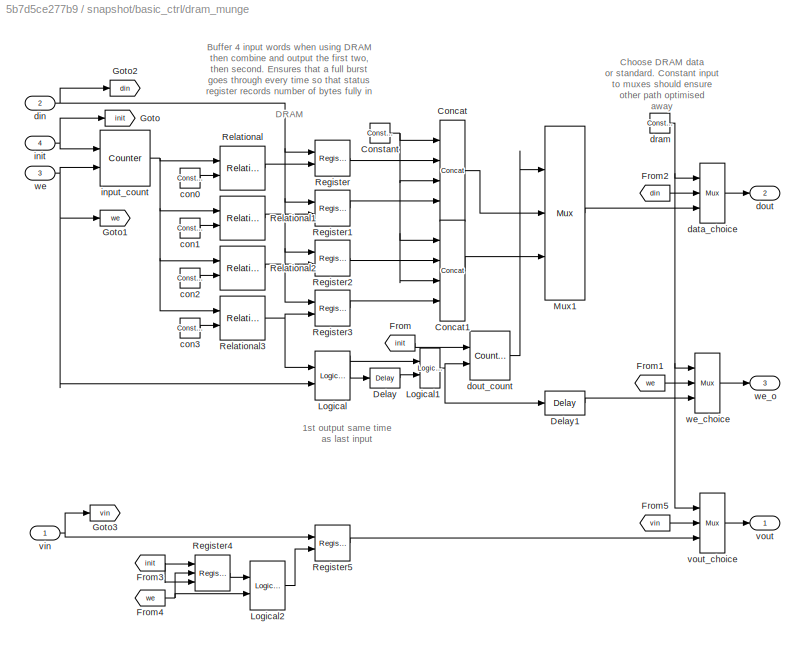
BLOCK [SubSystem] snapshot/basic_ctrl/dram_munge
  FunctionWithSeparateData = off
  MaskHideContents = off
  MinAlgLoopOccurrences = off
  Opaque = off
  Ports = [4, 3]
  PropExecContextOutsideSubsystem = off
  RTWSystemCode = Auto
  RequestExecContextInheritance = off
BLOCK [Reference] snapshot/basic_ctrl/dram_munge/Concat  REF=xbsIndex_r4/Concat
  Ports = [4, 1]
  SourceBlock = xbsIndex_r4/Concat
  SourceType = Xilinx Bus Concatenator Block
  block_type = concat
  block_version = 11.4
  dbl_ovrd = off
  has_advanced_control = 0
  infoedit = Concatenates two or more inputs.  Output will be cast to an unsigned value with the binary point at zero.
  num_inputs = 4
  sg_icon_stat = 25,101,4,1,white,blue,0,47d3d416,right,,[ ],[ ]
  sg_mask_display = fprintf('','COMMENT: begin icon graphics');\npatch([0 25 25 0 0 ],[0 0 101 101 0 ],[0.77 0.82 0.91 ]);\nplot([0 25 25 0 0 ],[0 0 101 101 0 ]);\npatch([5.325 9.66 12.66 15.66 18.66 12.66 8.325 5.325 ],[53.33 53.33 56.33 53.33 56.33 56.33 56.33 53.33 ],[1 1 1 ]);\npatch([8.325 12.66 9.66 5.325 8.325 ],[50.33 50.33 53.33 53.33 50.33 ],[0.931 0.946 0.973 ]);\npatch([5.325 9.66 12.66 8.325 5.325 ],[47.33 47...<+416ch>
  sggui_pos = 21,71,348,216
BLOCK [Reference] snapshot/basic_ctrl/dram_munge/Concat1  REF=xbsIndex_r4/Concat
  Ports = [4, 1]
  SourceBlock = xbsIndex_r4/Concat
  SourceType = Xilinx Bus Concatenator Block
  block_type = concat
  block_version = 11.4
  dbl_ovrd = off
  has_advanced_control = 0
  infoedit = Concatenates two or more inputs.  Output will be cast to an unsigned value with the binary point at zero.
  num_inputs = 4
  sg_icon_stat = 25,101,4,1,white,blue,0,47d3d416,right,,[ ],[ ]
  sg_mask_display = fprintf('','COMMENT: begin icon graphics');\npatch([0 25 25 0 0 ],[0 0 101 101 0 ],[0.77 0.82 0.91 ]);\nplot([0 25 25 0 0 ],[0 0 101 101 0 ]);\npatch([5.325 9.66 12.66 15.66 18.66 12.66 8.325 5.325 ],[53.33 53.33 56.33 53.33 56.33 56.33 56.33 53.33 ],[1 1 1 ]);\npatch([8.325 12.66 9.66 5.325 8.325 ],[50.33 50.33 53.33 53.33 50.33 ],[0.931 0.946 0.973 ]);\npatch([5.325 9.66 12.66 8.325 5.325 ],[47.33 47...<+416ch>
  sggui_pos = 21,71,348,216
BLOCK [Reference] snapshot/basic_ctrl/dram_munge/Constant  REF=xbsIndex_r4/Constant
  Ports = [0, 1]
  SourceBlock = xbsIndex_r4/Constant
  SourceType = Xilinx Constant Block Block
  arith_type = Unsigned
  bin_pt = 0
  block_type = constant
  block_version = 11.4
  carry = CIN
  const = 0
  dbl_ovrd = off
  dsp48_infoedit = The use of this block for DSP48 instructions is deprecated.  Please use the Opmode block.
  equ = P=C
  exp_width = 8
  explicit_period = on
  frac_width = 24
  gui_display_data_type = Fixed-point
  has_advanced_control = 0
  inp1 = P
  inp2 = PCIN>>17
  n_bits = 8
  opr = +
  opselect = C
  period = 1
  preci_type = Single
  sg_icon_stat = 20,20,0,1,white,blue,0,bf4ddd8b,right,,[ ],[ ]
  sggui_pos = -1,-1,-1,-1
BLOCK [Reference] snapshot/basic_ctrl/dram_munge/Delay  REF=xbsIndex_r4/Delay
  Ports = [1, 1]
  SourceBlock = xbsIndex_r4/Delay
  SourceType = Xilinx Delay Block
  block_type = delay
  block_version = 11.4
  dbl_ovrd = off
  en = off
  has_advanced_control = 0
  infoedit = Hardware notes: A delay line is a chain, each link of which is an SRL16 followed by a flip-flop.
  infoeditControl = Selection of Reset will increase slice count due to use of real FFs and instead of SRLs
  latency = 1
  reg_retiming = on
  rst = off
  sg_icon_stat = 30,20,1,1,white,blue,0,07b98262,right,,[ ],[ ]
  sg_mask_display = fprintf('','COMMENT: begin icon graphics');\npatch([0 30 30 0 0 ],[0 0 20 20 0 ],[0.77 0.82 0.91 ]);\nplot([0 30 30 0 0 ],[0 0 20 20 0 ]);\npatch([10.55 13.44 15.44 17.44 19.44 15.44 12.55 10.55 ],[12.22 12.22 14.22 12.22 14.22 14.22 14.22 12.22 ],[1 1 1 ]);\npatch([12.55 15.44 13.44 10.55 12.55 ],[10.22 10.22 12.22 12.22 10.22 ],[0.931 0.946 0.973 ]);\npatch([10.55 13.44 15.44 12.55 10.55 ],[8.22 8.22...<+310ch>
  sggui_pos = -1,-1,-1,-1
  xl_area = [0,0,0,0,0,0,0]
  xl_use_area = off
BLOCK [Reference] snapshot/basic_ctrl/dram_munge/Delay1  REF=xbsIndex_r4/Delay
  Ports = [1, 1]
  SourceBlock = xbsIndex_r4/Delay
  SourceType = Xilinx Delay Block
  block_type = delay
  block_version = 11.4
  dbl_ovrd = off
  en = off
  has_advanced_control = 0
  infoedit = Hardware notes: A delay line is a chain, each link of which is an SRL16 followed by a flip-flop.
  infoeditControl = Selection of Reset will increase slice count due to use of real FFs and instead of SRLs
  latency = 1
  reg_retiming = on
  rst = off
  sg_icon_stat = 40,24,1,1,white,blue,0,07b98262,right,,[ ],[ ]
  sg_mask_display = fprintf('','COMMENT: begin icon graphics');\npatch([0 40 40 0 0 ],[0 0 24 24 0 ],[0.77 0.82 0.91 ]);\nplot([0 40 40 0 0 ],[0 0 24 24 0 ]);\npatch([13.325 17.66 20.66 23.66 26.66 20.66 16.325 13.325 ],[15.33 15.33 18.33 15.33 18.33 18.33 18.33 15.33 ],[1 1 1 ]);\npatch([16.325 20.66 17.66 13.325 16.325 ],[12.33 12.33 15.33 15.33 12.33 ],[0.931 0.946 0.973 ]);\npatch([13.325 17.66 20.66 16.325 13.325 ],[...<+322ch>
  sggui_pos = -1,-1,-1,-1
  xl_area = [0,0,0,0,0,0,0]
  xl_use_area = off
BLOCK [From] snapshot/basic_ctrl/dram_munge/From
  CloseFcn = tagdialog Close
  GotoTag = init
BLOCK [From] snapshot/basic_ctrl/dram_munge/From1
  CloseFcn = tagdialog Close
  GotoTag = we
BLOCK [From] snapshot/basic_ctrl/dram_munge/From2
  CloseFcn = tagdialog Close
  GotoTag = din
BLOCK [From] snapshot/basic_ctrl/dram_munge/From3
  CloseFcn = tagdialog Close
  GotoTag = init
BLOCK [From] snapshot/basic_ctrl/dram_munge/From4
  CloseFcn = tagdialog Close
  GotoTag = we
BLOCK [From] snapshot/basic_ctrl/dram_munge/From5
  CloseFcn = tagdialog Close
  GotoTag = vin
BLOCK [Goto] snapshot/basic_ctrl/dram_munge/Goto
  GotoTag = init
BLOCK [Goto] snapshot/basic_ctrl/dram_munge/Goto1
  GotoTag = we
BLOCK [Goto] snapshot/basic_ctrl/dram_munge/Goto2
  GotoTag = din
BLOCK [Goto] snapshot/basic_ctrl/dram_munge/Goto3
  GotoTag = vin
BLOCK [Reference] snapshot/basic_ctrl/dram_munge/Logical  REF=xbsIndex_r4/Logical
  Ports = [2, 1]
  SourceBlock = xbsIndex_r4/Logical
  SourceType = Xilinx Logical Block Block
  align_bp = on
  arith_type = Unsigned
  bin_pt = 0
  block_type = logical
  block_version = 11.4
  dbl_ovrd = off
  en = off
  has_advanced_control = 0
  inputs = 2
  latency = 1
  logical_function = AND
  n_bits = 16
  precision = Full
  sg_icon_stat = 35,49,2,1,white,blue,0,e7f9d02e,right,,[ ],[ ]
  sg_list_contents = {'table'=>{'logical_function'=>'popup(AND|NAND|OR|NOR|XOR|XNOR)','userSelections'=>{'logical_function'=>'AND'}}}
  sg_mask_display = fprintf('','COMMENT: begin icon graphics');\npatch([0 35 35 0 0 ],[0 0 49 49 0 ],[0.77 0.82 0.91 ]);\nplot([0 35 35 0 0 ],[0 0 49 49 0 ]);\npatch([5.875 13.1 18.1 23.1 28.1 18.1 10.875 5.875 ],[29.55 29.55 34.55 29.55 34.55 34.55 34.55 29.55 ],[1 1 1 ]);\npatch([10.875 18.1 13.1 5.875 10.875 ],[24.55 24.55 29.55 29.55 24.55 ],[0.931 0.946 0.973 ]);\npatch([5.875 13.1 18.1 10.875 5.875 ],[19.55 19.55 24...<+354ch>
  sggui_pos = 21,71,419,291
  xl_area = [0,0,0,0,0,0,0]
  xl_use_area = off
BLOCK [Reference] snapshot/basic_ctrl/dram_munge/Logical1  REF=xbsIndex_r4/Logical
  Ports = [2, 1]
  SourceBlock = xbsIndex_r4/Logical
  SourceType = Xilinx Logical Block Block
  align_bp = on
  arith_type = Unsigned
  bin_pt = 0
  block_type = logical
  block_version = 11.4
  dbl_ovrd = off
  en = off
  has_advanced_control = 0
  inputs = 2
  latency = 0
  logical_function = OR
  n_bits = 16
  precision = Full
  sg_icon_stat = 20,40,2,1,white,blue,0,7ede7d88,right,,[ ],[ ]
  sg_list_contents = {'table'=>{'logical_function'=>'popup(AND|NAND|OR|NOR|XOR|XNOR)','userSelections'=>{'logical_function'=>'OR'}}}
  sg_mask_display = fprintf('','COMMENT: begin icon graphics');\npatch([0 20 20 0 0 ],[0 0 40 40 0 ],[0.77 0.82 0.91 ]);\nplot([0 20 20 0 0 ],[0 0 40 40 0 ]);\npatch([5.55 8.44 10.44 12.44 14.44 10.44 7.55 5.55 ],[22.22 22.22 24.22 22.22 24.22 24.22 24.22 22.22 ],[1 1 1 ]);\npatch([7.55 10.44 8.44 5.55 7.55 ],[20.22 20.22 22.22 22.22 20.22 ],[0.931 0.946 0.973 ]);\npatch([5.55 8.44 10.44 7.55 5.55 ],[18.22 18.22 20.22 20....<+286ch>
  sggui_pos = 21,71,419,291
  xl_area = [0,0,0,0,0,0,0]
  xl_use_area = off
BLOCK [Reference] snapshot/basic_ctrl/dram_munge/Logical2  REF=xbsIndex_r4/Logical
  Ports = [2, 1]
  SourceBlock = xbsIndex_r4/Logical
  SourceType = Xilinx Logical Block Block
  align_bp = on
  arith_type = Unsigned
  bin_pt = 0
  block_type = logical
  block_version = 11.4
  dbl_ovrd = off
  en = off
  has_advanced_control = 0
  inputs = 2
  latency = 0
  logical_function = AND
  n_bits = 16
  precision = Full
  sg_icon_stat = 35,49,2,1,white,blue,0,83a4b621,right,,[ ],[ ]
  sg_list_contents = {'table'=>{'logical_function'=>'popup(AND|NAND|OR|NOR|XOR|XNOR)','userSelections'=>{'logical_function'=>'AND'}}}
  sg_mask_display = fprintf('','COMMENT: begin icon graphics');\npatch([0 35 35 0 0 ],[0 0 49 49 0 ],[0.77 0.82 0.91 ]);\nplot([0 35 35 0 0 ],[0 0 49 49 0 ]);\npatch([5.875 13.1 18.1 23.1 28.1 18.1 10.875 5.875 ],[29.55 29.55 34.55 29.55 34.55 34.55 34.55 29.55 ],[1 1 1 ]);\npatch([10.875 18.1 13.1 5.875 10.875 ],[24.55 24.55 29.55 29.55 24.55 ],[0.931 0.946 0.973 ]);\npatch([5.875 13.1 18.1 10.875 5.875 ],[19.55 19.55 24...<+296ch>
  sggui_pos = 22,98,419,291
  xl_area = [0,0,0,0,0,0,0]
  xl_use_area = off
BLOCK [Reference] snapshot/basic_ctrl/dram_munge/Mux1  REF=xbsIndex_r4/Mux
  Ports = [3, 1]
  SourceBlock = xbsIndex_r4/Mux
  SourceType = Xilinx Bus Multiplexer Block
  arith_type = Unsigned
  bin_pt = 14
  block_type = mux
  block_version = 11.4
  dbl_ovrd = off
  en = off
  has_advanced_control = 0
  inputs = 2
  latency = 1
  n_bits = 16
  overflow = Wrap
  precision = Full
  quantization = Truncate
  sg_icon_stat = 40,174,3,1,white,blue,3,a150fb03,right,,[ ],[ ]
  sg_list_contents = {'table'=>{'inputs'=>'popup(2|3|4|5|6|7|8|9|10|11|12|13|14|15|16|17|18|19|20|21|22|23|24|25|26|27|28|29|30|31|32)','userSelections'=>{'inputs'=>'2'}}}
  sg_mask_display = fprintf('','COMMENT: begin icon graphics');\npatch([0 40 40 0 0 ],[0 24.8571 149.143 174 0 ],[0.77 0.82 0.91 ]);\nplot([0 40 40 0 0 ],[0 24.8571 149.143 174 0 ]);\npatch([8.875 16.1 21.1 26.1 31.1 21.1 13.875 8.875 ],[92.55 92.55 97.55 92.55 97.55 97.55 97.55 92.55 ],[1 1 1 ]);\npatch([13.875 21.1 16.1 8.875 13.875 ],[87.55 87.55 92.55 92.55 87.55 ],[0.931 0.946 0.973 ]);\npatch([8.875 16.1 21.1 13.875...<+473ch>
  sggui_pos = 23,125,419,344
  xl_area = [0,0,0,0,0,0,0]
  xl_use_area = off
BLOCK [Reference] snapshot/basic_ctrl/dram_munge/Register  REF=xbsIndex_r4/Register
  Ports = [2, 1]
  SourceBlock = xbsIndex_r4/Register
  SourceType = Xilinx Register Block
  block_type = register
  block_version = 11.4
  dbl_ovrd = off
  en = on
  has_advanced_control = 0
  init = 0
  rst = off
  sg_icon_stat = 35,36,2,1,white,blue,0,6bd0930c,right,,[ ],[ ]
  sg_mask_display = fprintf('','COMMENT: begin icon graphics');\npatch([0 35 35 0 0 ],[0 0 36 36 0 ],[0.77 0.82 0.91 ]);\nplot([0 35 35 0 0 ],[0 0 36 36 0 ]);\npatch([5.875 13.1 18.1 23.1 28.1 18.1 10.875 5.875 ],[23.55 23.55 28.55 23.55 28.55 28.55 28.55 23.55 ],[1 1 1 ]);\npatch([10.875 18.1 13.1 5.875 10.875 ],[18.55 18.55 23.55 23.55 18.55 ],[0.931 0.946 0.973 ]);\npatch([5.875 13.1 18.1 10.875 5.875 ],[13.55 13.55 18...<+435ch>  <repeated x5 — deduplicated; at blocks: Register, Register1, Register2, Register3, Register5>
  sggui_pos = 21,71,419,209
  xl_area = [0,0,0,0,0,0,0]
  xl_use_area = off
BLOCK [Reference] snapshot/basic_ctrl/dram_munge/Register1  REF=xbsIndex_r4/Register
  Ports = [2, 1]
  SourceBlock = xbsIndex_r4/Register
  SourceType = Xilinx Register Block
  block_type = register
  block_version = 11.4
  dbl_ovrd = off
  en = on
  has_advanced_control = 0
  init = 0
  rst = off
  sg_icon_stat = 35,36,2,1,white,blue,0,6bd0930c,right,,[ ],[ ]
  sggui_pos = 21,71,419,209
  xl_area = [0,0,0,0,0,0,0]
  xl_use_area = off
BLOCK [Reference] snapshot/basic_ctrl/dram_munge/Register2  REF=xbsIndex_r4/Register
  Ports = [2, 1]
  SourceBlock = xbsIndex_r4/Register
  SourceType = Xilinx Register Block
  block_type = register
  block_version = 11.4
  dbl_ovrd = off
  en = on
  has_advanced_control = 0
  init = 0
  rst = off
  sg_icon_stat = 35,36,2,1,white,blue,0,6bd0930c,right,,[ ],[ ]
  sggui_pos = 21,71,419,209
  xl_area = [0,0,0,0,0,0,0]
  xl_use_area = off
BLOCK [Reference] snapshot/basic_ctrl/dram_munge/Register3  REF=xbsIndex_r4/Register
  Ports = [2, 1]
  SourceBlock = xbsIndex_r4/Register
  SourceType = Xilinx Register Block
  block_type = register
  block_version = 11.4
  dbl_ovrd = off
  en = on
  has_advanced_control = 0
  init = 0
  rst = off
  sg_icon_stat = 35,36,2,1,white,blue,0,6bd0930c,right,,[ ],[ ]
  sggui_pos = 21,71,419,209
  xl_area = [0,0,0,0,0,0,0]
  xl_use_area = off
BLOCK [Reference] snapshot/basic_ctrl/dram_munge/Register4  REF=xbsIndex_r4/Register
  Ports = [3, 1]
  SourceBlock = xbsIndex_r4/Register
  SourceType = Xilinx Register Block
  block_type = register
  block_version = 11.4
  dbl_ovrd = off
  en = on
  has_advanced_control = 0
  init = 0
  rst = on
  sg_icon_stat = 35,36,3,1,white,blue,0,30546de1,right,,[ ],[ ]
  sg_mask_display = fprintf('','COMMENT: begin icon graphics');\npatch([0 35 35 0 0 ],[0 0 36 36 0 ],[0.77 0.82 0.91 ]);\nplot([0 35 35 0 0 ],[0 0 36 36 0 ]);\npatch([5.875 13.1 18.1 23.1 28.1 18.1 10.875 5.875 ],[23.55 23.55 28.55 23.55 28.55 28.55 28.55 23.55 ],[1 1 1 ]);\npatch([10.875 18.1 13.1 5.875 10.875 ],[18.55 18.55 23.55 23.55 18.55 ],[0.931 0.946 0.973 ]);\npatch([5.875 13.1 18.1 10.875 5.875 ],[13.55 13.55 18...<+479ch>
  sggui_pos = 21,71,419,209
  xl_area = [0,0,0,0,0,0,0]
  xl_use_area = off
BLOCK [Reference] snapshot/basic_ctrl/dram_munge/Register5  REF=xbsIndex_r4/Register
  Ports = [2, 1]
  SourceBlock = xbsIndex_r4/Register
  SourceType = Xilinx Register Block
  block_type = register
  block_version = 11.4
  dbl_ovrd = off
  en = on
  has_advanced_control = 0
  init = 0
  rst = off
  sg_icon_stat = 35,36,2,1,white,blue,0,6bd0930c,right,,[ ],[ ]
  sggui_pos = 22,98,419,209
  xl_area = [0,0,0,0,0,0,0]
  xl_use_area = off
BLOCK [Reference] snapshot/basic_ctrl/dram_munge/Relational  REF=xbsIndex_r4/Relational
  Ports = [2, 1]
  SourceBlock = xbsIndex_r4/Relational
  SourceType = Xilinx Arithmetic Relational Operator Block
  block_type = relational
  block_version = 11.4
  dbl_ovrd = off
  en = off
  has_advanced_control = 0
  latency = 0
  mode = a=b
  sg_icon_stat = 45,44,2,1,white,blue,0,2a81ff49,right,,[ ],[ ]
  sg_list_contents = {'table'=>{'mode'=>'popup(a=b|a!=b|a<b|a>b|a<=b|a>=b)','userSelections'=>{'mode'=>'a=b'}}}
  sg_mask_display = fprintf('','COMMENT: begin icon graphics');\npatch([0 45 45 0 0 ],[0 0 44 44 0 ],[0.77 0.82 0.91 ]);\nplot([0 45 45 0 0 ],[0 0 44 44 0 ]);\npatch([8.65 17.32 23.32 29.32 35.32 23.32 14.65 8.65 ],[28.66 28.66 34.66 28.66 34.66 34.66 34.66 28.66 ],[1 1 1 ]);\npatch([14.65 23.32 17.32 8.65 14.65 ],[22.66 22.66 28.66 28.66 22.66 ],[0.931 0.946 0.973 ]);\npatch([8.65 17.32 23.32 14.65 8.65 ],[16.66 16.66 22...<+441ch>  <repeated x4 — deduplicated; at blocks: Relational, Relational1, Relational2, Relational3>
  sggui_pos = 21,71,419,209
  xl_area = [0,0,0,0,0,0,0]
  xl_use_area = off
BLOCK [Reference] snapshot/basic_ctrl/dram_munge/Relational1  REF=xbsIndex_r4/Relational
  Ports = [2, 1]
  SourceBlock = xbsIndex_r4/Relational
  SourceType = Xilinx Arithmetic Relational Operator Block
  block_type = relational
  block_version = 11.4
  dbl_ovrd = off
  en = off
  has_advanced_control = 0
  latency = 0
  mode = a=b
  sg_icon_stat = 45,44,2,1,white,blue,0,2a81ff49,right,,[ ],[ ]
  sg_list_contents = {'table'=>{'mode'=>'popup(a=b|a!=b|a<b|a>b|a<=b|a>=b)','userSelections'=>{'mode'=>'a=b'}}}
  sggui_pos = 21,71,419,209
  xl_area = [0,0,0,0,0,0,0]
  xl_use_area = off
BLOCK [Reference] snapshot/basic_ctrl/dram_munge/Relational2  REF=xbsIndex_r4/Relational
  Ports = [2, 1]
  SourceBlock = xbsIndex_r4/Relational
  SourceType = Xilinx Arithmetic Relational Operator Block
  block_type = relational
  block_version = 11.4
  dbl_ovrd = off
  en = off
  has_advanced_control = 0
  latency = 0
  mode = a=b
  sg_icon_stat = 45,44,2,1,white,blue,0,2a81ff49,right,,[ ],[ ]
  sg_list_contents = {'table'=>{'mode'=>'popup(a=b|a!=b|a<b|a>b|a<=b|a>=b)','userSelections'=>{'mode'=>'a=b'}}}
  sggui_pos = 21,71,419,209
  xl_area = [0,0,0,0,0,0,0]
  xl_use_area = off
BLOCK [Reference] snapshot/basic_ctrl/dram_munge/Relational3  REF=xbsIndex_r4/Relational
  Ports = [2, 1]
  SourceBlock = xbsIndex_r4/Relational
  SourceType = Xilinx Arithmetic Relational Operator Block
  block_type = relational
  block_version = 11.4
  dbl_ovrd = off
  en = off
  has_advanced_control = 0
  latency = 0
  mode = a=b
  sg_icon_stat = 45,44,2,1,white,blue,0,2a81ff49,right,,[ ],[ ]
  sg_list_contents = {'table'=>{'mode'=>'popup(a=b|a!=b|a<b|a>b|a<=b|a>=b)','userSelections'=>{'mode'=>'a=b'}}}
  sggui_pos = 21,71,419,209
  xl_area = [0,0,0,0,0,0,0]
  xl_use_area = off
BLOCK [Reference] snapshot/basic_ctrl/dram_munge/con0  REF=xbsIndex_r4/Constant
  Ports = [0, 1]
  SourceBlock = xbsIndex_r4/Constant
  SourceType = Xilinx Constant Block Block
  arith_type = Unsigned
  bin_pt = 0
  block_type = constant
  block_version = 11.4
  carry = CIN
  const = 0
  dbl_ovrd = off
  dsp48_infoedit = The use of this block for DSP48 instructions is deprecated.  Please use the Opmode block.
  equ = P=C
  exp_width = 8
  explicit_period = on
  frac_width = 24
  gui_display_data_type = Fixed-point
  has_advanced_control = 0
  inp1 = P
  inp2 = PCIN>>17
  n_bits = 2
  opr = +
  opselect = C
  period = 1
  preci_type = Single
  sg_icon_stat = 20,20,0,1,white,blue,0,bf4ddd8b,right,,[ ],[ ]
  sggui_pos = 22,98,474,439
BLOCK [Reference] snapshot/basic_ctrl/dram_munge/con1  REF=xbsIndex_r4/Constant
  Ports = [0, 1]
  SourceBlock = xbsIndex_r4/Constant
  SourceType = Xilinx Constant Block Block
  arith_type = Unsigned
  bin_pt = 0
  block_type = constant
  block_version = 11.4
  carry = CIN
  const = 1
  dbl_ovrd = off
  dsp48_infoedit = The use of this block for DSP48 instructions is deprecated.  Please use the Opmode block.
  equ = P=C
  exp_width = 8
  explicit_period = on
  frac_width = 24
  gui_display_data_type = Fixed-point
  has_advanced_control = 0
  inp1 = P
  inp2 = PCIN>>17
  n_bits = 2
  opr = +
  opselect = C
  period = 1
  preci_type = Single
  sg_icon_stat = 20,20,0,1,white,blue,0,1c72b5be,right,,[ ],[ ]
  sggui_pos = 23,125,474,439
BLOCK [Reference] snapshot/basic_ctrl/dram_munge/con2  REF=xbsIndex_r4/Constant
  Ports = [0, 1]
  SourceBlock = xbsIndex_r4/Constant
  SourceType = Xilinx Constant Block Block
  arith_type = Unsigned
  bin_pt = 0
  block_type = constant
  block_version = 11.4
  carry = CIN
  const = 2
  dbl_ovrd = off
  dsp48_infoedit = The use of this block for DSP48 instructions is deprecated.  Please use the Opmode block.
  equ = P=C
  exp_width = 8
  explicit_period = on
  frac_width = 24
  gui_display_data_type = Fixed-point
  has_advanced_control = 0
  inp1 = P
  inp2 = PCIN>>17
  n_bits = 2
  opr = +
  opselect = C
  period = 1
  preci_type = Single
  sg_icon_stat = 20,20,0,1,white,blue,0,fca86624,right,,[ ],[ ]
  sggui_pos = 24,152,474,439
BLOCK [Reference] snapshot/basic_ctrl/dram_munge/con3  REF=xbsIndex_r4/Constant
  Ports = [0, 1]
  SourceBlock = xbsIndex_r4/Constant
  SourceType = Xilinx Constant Block Block
  arith_type = Unsigned
  bin_pt = 0
  block_type = constant
  block_version = 11.4
  carry = CIN
  const = 3
  dbl_ovrd = off
  dsp48_infoedit = The use of this block for DSP48 instructions is deprecated.  Please use the Opmode block.
  equ = P=C
  exp_width = 8
  explicit_period = on
  frac_width = 24
  gui_display_data_type = Fixed-point
  has_advanced_control = 0
  inp1 = P
  inp2 = PCIN>>17
  n_bits = 2
  opr = +
  opselect = C
  period = 1
  preci_type = Single
  sg_icon_stat = 20,20,0,1,white,blue,0,279a71c8,right,,[ ],[ ]
  sggui_pos = 25,179,474,439
BLOCK [Reference] snapshot/basic_ctrl/dram_munge/data_choice  REF=xbsIndex_r4/Mux
  Ports = [3, 1]
  SourceBlock = xbsIndex_r4/Mux
  SourceType = Xilinx Bus Multiplexer Block
  arith_type = Unsigned
  bin_pt = 0
  block_type = mux
  block_version = 11.4
  dbl_ovrd = off
  en = off
  has_advanced_control = 0
  inputs = 2
  latency = 0
  n_bits = 64
  overflow = Wrap
  precision = User Defined
  quantization = Truncate
  sg_icon_stat = 25,60,3,1,white,blue,3,eb98d690,right,,[ ],[ ]
  sg_list_contents = {'table'=>{'inputs'=>'popup(2|3|4|5|6|7|8|9|10|11|12|13|14|15|16|17|18|19|20|21|22|23|24|25|26|27|28|29|30|31|32)','userSelections'=>{'inputs'=>'2'}}}
  sg_mask_display = fprintf('','COMMENT: begin icon graphics');\npatch([0 25 25 0 0 ],[0 8.57143 51.4286 60 0 ],[0.77 0.82 0.91 ]);\nplot([0 25 25 0 0 ],[0 8.57143 51.4286 60 0 ]);\npatch([5.325 9.66 12.66 15.66 18.66 12.66 8.325 5.325 ],[33.33 33.33 36.33 33.33 36.33 36.33 36.33 33.33 ],[1 1 1 ]);\npatch([8.325 12.66 9.66 5.325 8.325 ],[30.33 30.33 33.33 33.33 30.33 ],[0.931 0.946 0.973 ]);\npatch([5.325 9.66 12.66 8.325...<+466ch>  <repeated x3 — deduplicated; at blocks: data_choice, vout_choice, we_choice>
  sggui_pos = 26,206,419,344
  xl_area = [0,0,0,0,0,0,0]
  xl_use_area = off
BLOCK [Inport] snapshot/basic_ctrl/dram_munge/din
  IconDisplay = Port number
  Port = 2
BLOCK [Outport] snapshot/basic_ctrl/dram_munge/dout
  IconDisplay = Port number
  Port = 2
BLOCK [Reference] snapshot/basic_ctrl/dram_munge/dout_count  REF=xbsIndex_r4/Counter
  Ports = [2, 1]
  SourceBlock = xbsIndex_r4/Counter
  SourceType = Xilinx Counter Block
  arith_type = Unsigned
  bin_pt = 0
  block_type = counter
  block_version = 11.4
  cnt_by_val = 1
  cnt_to = Inf
  cnt_type = Free Running
  dbl_ovrd = off
  en = on
  explicit_period = on
  has_advanced_control = 0
  implementation = Fabric
  infoedit = Hardware notes: Free running counters are the least expensive in hardware.  A count limited counter is implemented by combining a counter with a comparator.
  load_pin = off
  n_bits = 1
  operation = Up
  period = 1
  rst = on
  sg_icon_stat = 40,49,2,1,white,blue,0,ae3608d6,right,,[ ],[ ]
  sg_mask_display = fprintf('','COMMENT: begin icon graphics');\npatch([0 40 40 0 0 ],[0 0 49 49 0 ],[0.77 0.82 0.91 ]);\nplot([0 40 40 0 0 ],[0 0 49 49 0 ]);\npatch([8.875 16.1 21.1 26.1 31.1 21.1 13.875 8.875 ],[29.55 29.55 34.55 29.55 34.55 34.55 34.55 29.55 ],[1 1 1 ]);\npatch([13.875 21.1 16.1 8.875 13.875 ],[24.55 24.55 29.55 29.55 24.55 ],[0.931 0.946 0.973 ]);\npatch([8.875 16.1 21.1 13.875 8.875 ],[19.55 19.55 24...<+413ch>
  sggui_pos = 22,98,419,748
  start_count = 0
  use_behavioral_HDL = on
  xl_area = [0,0,0,0,0,0,0]
  xl_use_area = off
BLOCK [Reference] snapshot/basic_ctrl/dram_munge/dram  REF=xbsIndex_r4/Constant
  Ports = [0, 1]
  SourceBlock = xbsIndex_r4/Constant
  SourceType = Xilinx Constant Block Block
  arith_type = Boolean
  bin_pt = 14
  block_type = constant
  block_version = 11.4
  carry = CIN
  const = 0
  dbl_ovrd = off
  dsp48_infoedit = The use of this block for DSP48 instructions is deprecated.  Please use the Opmode block.
  equ = P=C
  exp_width = 8
  explicit_period = on
  frac_width = 24
  gui_display_data_type = Fixed-point
  has_advanced_control = 0
  inp1 = P
  inp2 = PCIN>>17
  n_bits = 16
  opr = +
  opselect = C
  period = 1
  preci_type = Single
  sg_icon_stat = 20,20,0,1,white,blue,0,bf4ddd8b,right,,[ ],[ ]
  sggui_pos = 23,125,474,439
BLOCK [Inport] snapshot/basic_ctrl/dram_munge/init
  IconDisplay = Port number
  Port = 4
BLOCK [Reference] snapshot/basic_ctrl/dram_munge/input_count  REF=xbsIndex_r4/Counter
  Ports = [2, 1]
  SourceBlock = xbsIndex_r4/Counter
  SourceType = Xilinx Counter Block
  arith_type = Unsigned
  bin_pt = 0
  block_type = counter
  block_version = 11.4
  cnt_by_val = 1
  cnt_to = Inf
  cnt_type = Free Running
  dbl_ovrd = off
  en = on
  explicit_period = on
  has_advanced_control = 0
  implementation = Fabric
  infoedit = Hardware notes: Free running counters are the least expensive in hardware.  A count limited counter is implemented by combining a counter with a comparator.
  load_pin = off
  n_bits = 2
  operation = Up
  period = 1
  rst = on
  sg_icon_stat = 50,56,2,1,white,blue,0,ae3608d6,right,,[ ],[ ]
  sg_mask_display = fprintf('','COMMENT: begin icon graphics');\npatch([0 50 50 0 0 ],[0 0 56 56 0 ],[0.77 0.82 0.91 ]);\nplot([0 50 50 0 0 ],[0 0 56 56 0 ]);\npatch([9.425 19.54 26.54 33.54 40.54 26.54 16.425 9.425 ],[35.77 35.77 42.77 35.77 42.77 42.77 42.77 35.77 ],[1 1 1 ]);\npatch([16.425 26.54 19.54 9.425 16.425 ],[28.77 28.77 35.77 35.77 28.77 ],[0.931 0.946 0.973 ]);\npatch([9.425 19.54 26.54 16.425 9.425 ],[21.77...<+426ch>
  sggui_pos = 22,98,419,748
  start_count = 0
  use_behavioral_HDL = on
  xl_area = [0,0,0,0,0,0,0]
  xl_use_area = off
BLOCK [Inport] snapshot/basic_ctrl/dram_munge/vin
  IconDisplay = Port number
BLOCK [Outport] snapshot/basic_ctrl/dram_munge/vout
  IconDisplay = Port number
BLOCK [Reference] snapshot/basic_ctrl/dram_munge/vout_choice  REF=xbsIndex_r4/Mux
  Ports = [3, 1]
  SourceBlock = xbsIndex_r4/Mux
  SourceType = Xilinx Bus Multiplexer Block
  arith_type = Unsigned
  bin_pt = 14
  block_type = mux
  block_version = 11.4
  dbl_ovrd = off
  en = off
  has_advanced_control = 0
  inputs = 2
  latency = 0
  n_bits = 16
  overflow = Wrap
  precision = Full
  quantization = Truncate
  sg_icon_stat = 25,60,3,1,white,blue,3,eb98d690,right,,[ ],[ ]
  sggui_pos = -1,-1,-1,-1
  xl_area = [0,0,0,0,0,0,0]
  xl_use_area = off
BLOCK [Inport] snapshot/basic_ctrl/dram_munge/we
  IconDisplay = Port number
  Port = 3
BLOCK [Reference] snapshot/basic_ctrl/dram_munge/we_choice  REF=xbsIndex_r4/Mux
  Ports = [3, 1]
  SourceBlock = xbsIndex_r4/Mux
  SourceType = Xilinx Bus Multiplexer Block
  arith_type = Unsigned
  bin_pt = 14
  block_type = mux
  block_version = 11.4
  dbl_ovrd = off
  en = off
  has_advanced_control = 0
  inputs = 2
  latency = 0
  n_bits = 16
  overflow = Wrap
  precision = Full
  quantization = Truncate
  sg_icon_stat = 25,60,3,1,white,blue,3,eb98d690,right,,[ ],[ ]
  sggui_pos = -1,-1,-1,-1
  xl_area = [0,0,0,0,0,0,0]
  xl_use_area = off
BLOCK [Outport] snapshot/basic_ctrl/dram_munge/we_o
  IconDisplay = Port number
  Port = 3
BLOCK [Reference] snapshot/basic_ctrl/edge_detect  REF=casper_library_misc/edge_detect  (lib defined in mdl_357510c33b49, mdl_57b5f564ae26, +4 more)
  AttributesFormatString = rising edges\nactive high
  Ports = [1, 1]
  SourceBlock = casper_library_misc/edge_detect
  SourceType = edge_detect
  UserDataPersistent = on
  edge = Rising
  polarity = Active High
  x_in = [0 0.08 0.08 0.16 0.16 0.24 0.24 0.32 0.32 0.4]
  x_out = [0.6 0.68 0.68 0.76 0.76 0.84 0.84 0.92 0.92 1]
  y_in = [-1 -1  1  1  1  1  1  1  1  1]
  y_out = [-1 -1  1  1 -1 -1 -1 -1 -1 -1]
BLOCK [Reference] snapshot/basic_ctrl/enable  REF=xbsIndex_r4/Slice
  Ports = [1, 1]
  SourceBlock = xbsIndex_r4/Slice
  SourceType = Xilinx Bit Slice Extractor Block
  base0 = LSB of Input
  base1 = LSB of Input
  bit0 = 0
  bit1 = 0
  block_type = slice
  block_version = 10.1.3
  boolean_output = on
  dbl_ovrd = off
  has_advanced_control = 0
  infoedit = Extracts a given range of bits from each input sample and presents it at the output.  The output type is ordinarily unsigned with binary point at zero, but can be Boolean when the slice is one bit wide.<P><P>Hardware notes: In hardware this block costs nothing.  <repeated x3 — deduplicated; at blocks: enable, trig_src, valid_src>
  mode = Lower Bit Location + Width
  nbits = 1
  sg_icon_stat = 25,18,1,1,white,blue,0,1fd851a7,right,,[ ],[ ]
  sg_mask_display = fprintf('','COMMENT: begin icon graphics');\npatch([0 25 25 0 0 ],[0 0 18 18 0 ],[0.77 0.82 0.91 ]);\nplot([0 25 25 0 0 ],[0 0 18 18 0 ]);\npatch([7.55 10.44 12.44 14.44 16.44 12.44 9.55 7.55 ],[11.22 11.22 13.22 11.22 13.22 13.22 13.22 11.22 ],[1 1 1 ]);\npatch([9.55 12.44 10.44 7.55 9.55 ],[9.22 9.22 11.22 11.22 9.22 ],[0.931 0.946 0.973 ]);\npatch([7.55 10.44 12.44 9.55 7.55 ],[7.22 7.22 9.22 9.22 7...<+293ch>
  sggui_pos = 22,98,540,482
BLOCK [Outport] snapshot/basic_ctrl/go
  IconDisplay = Port number
  Port = 4
BLOCK [Outport] snapshot/basic_ctrl/init
  IconDisplay = Port number
  Port = 6
BLOCK [Outport] snapshot/basic_ctrl/stop
  IconDisplay = Port number
  Port = 5
BLOCK [Inport] snapshot/basic_ctrl/stopi
  IconDisplay = Port number
  Port = 6
BLOCK [Inport] snapshot/basic_ctrl/trig
  IconDisplay = Port number
  Port = 4
BLOCK [Reference] snapshot/basic_ctrl/trig_src  REF=xbsIndex_r4/Slice
  Ports = [1, 1]
  SourceBlock = xbsIndex_r4/Slice
  SourceType = Xilinx Bit Slice Extractor Block
  base0 = LSB of Input
  base1 = LSB of Input
  bit0 = 1
  bit1 = 0
  block_type = slice
  block_version = 10.1.3
  boolean_output = on
  dbl_ovrd = off
  has_advanced_control = 0
  mode = Lower Bit Location + Width
  nbits = 1
  sg_icon_stat = 25,20,1,1,white,blue,0,1fd851a7,right,,[ ],[ ]
  sggui_pos = 23,125,540,482
BLOCK [Reference] snapshot/basic_ctrl/valid_src  REF=xbsIndex_r4/Slice
  Ports = [1, 1]
  SourceBlock = xbsIndex_r4/Slice
  SourceType = Xilinx Bit Slice Extractor Block
  base0 = LSB of Input
  base1 = LSB of Input
  bit0 = 2
  bit1 = 0
  block_type = slice
  block_version = 10.1.3
  boolean_output = on
  dbl_ovrd = off
  has_advanced_control = 0
  mode = Lower Bit Location + Width
  nbits = 1
  sg_icon_stat = 25,22,1,1,white,blue,0,1fd851a7,right,,[ ],[ ]
  sggui_pos = 499,248,540,482
BLOCK [Inport] snapshot/basic_ctrl/vin
  IconDisplay = Port number
BLOCK [Outport] snapshot/basic_ctrl/vout
  IconDisplay = Port number
BLOCK [Inport] snapshot/basic_ctrl/we
  IconDisplay = Port number
  Port = 3
BLOCK [Outport] snapshot/basic_ctrl/we_o
  IconDisplay = Port number
  Port = 3
BLOCK [SubSystem] snapshot/bram
  AncestorBlock = xps_library/Shared BRAM
  FunctionWithSeparateData = off
  MaskHideContents = off
  MinAlgLoopOccurrences = off
  Opaque = off
  Ports = [3, 1]
  PropExecContextOutsideSubsystem = off
  RTWSystemCode = Auto
  RequestExecContextInheritance = off
  Tag = xps:bram
BLOCK [Inport] snapshot/bram/addr
  IconDisplay = Port number
BLOCK [SubSystem] snapshot/bram/calc_add
  FunctionWithSeparateData = off
  MaskHideContents = off
  MinAlgLoopOccurrences = off
  Opaque = off
  Ports = [1, 1]
  PropExecContextOutsideSubsystem = off
  RTWSystemCode = Auto
  RequestExecContextInheritance = off
BLOCK [Reference] snapshot/bram/calc_add/add_sub  REF=xbsIndex_r4/AddSub
  Ports = [2, 1]
  SourceBlock = xbsIndex_r4/AddSub
  SourceType = Xilinx Adder/Subtracter Block
  arith_type = Unsigned
  bin_pt = 0
  block_type = addsub
  block_version = 11.4
  dbl_ovrd = off
  en = off
  has_advanced_control = 0
  hw_selection = Fabric
  latency = 0
  mode = Subtraction
  n_bits = max(1, log2(32/data_width))
  overflow = Wrap
  pipelined = off
  precision = User Defined
  quantization = Truncate
  sg_icon_stat = 35,78,2,1,white,blue,0,32e1f85f,right,,[ ],[ ]
  sg_mask_display = fprintf('','COMMENT: begin icon graphics');\npatch([0 35 35 0 0 ],[0 0 78 78 0 ],[0.77 0.82 0.91 ]);\nplot([0 35 35 0 0 ],[0 0 78 78 0 ]);\npatch([5.875 13.1 18.1 23.1 28.1 18.1 10.875 5.875 ],[44.55 44.55 49.55 44.55 49.55 49.55 49.55 44.55 ],[1 1 1 ]);\npatch([10.875 18.1 13.1 5.875 10.875 ],[39.55 39.55 44.55 44.55 39.55 ],[0.931 0.946 0.973 ]);\npatch([5.875 13.1 18.1 10.875 5.875 ],[34.55 34.55 39...<+416ch>
  sggui_pos = 24,152,420,360
  use_behavioral_HDL = on
  use_carryin = off
  use_carryout = off
  xl_area = [0,0,0,0,0,0,0]
  xl_use_area = off
BLOCK [Reference] snapshot/bram/calc_add/concat  REF=xbsIndex_r4/Concat
  Ports = [2, 1]
  SourceBlock = xbsIndex_r4/Concat
  SourceType = Xilinx Bus Concatenator Block
  block_type = concat
  block_version = 11.4
  dbl_ovrd = off
  has_advanced_control = 0
  infoedit = Concatenates two or more inputs.  Output will be cast to an unsigned value with the binary point at zero.
  num_inputs = 2
  sg_icon_stat = 20,120,2,1,white,blue,0,16398980,right,,[ ],[ ]
  sg_mask_display = fprintf('','COMMENT: begin icon graphics');\npatch([0 20 20 0 0 ],[0 0 120 120 0 ],[0.77 0.82 0.91 ]);\nplot([0 20 20 0 0 ],[0 0 120 120 0 ]);\npatch([5.55 8.44 10.44 12.44 14.44 10.44 7.55 5.55 ],[62.22 62.22 64.22 62.22 64.22 64.22 64.22 62.22 ],[1 1 1 ]);\npatch([7.55 10.44 8.44 5.55 7.55 ],[60.22 60.22 62.22 62.22 60.22 ],[0.931 0.946 0.973 ]);\npatch([5.55 8.44 10.44 7.55 5.55 ],[58.22 58.22 60.22...<+402ch>
  sggui_pos = -1,-1,-1,-1
BLOCK [Reference] snapshot/bram/calc_add/const  REF=xbsIndex_r4/Constant
  Ports = [0, 1]
  SourceBlock = xbsIndex_r4/Constant
  SourceType = Xilinx Constant Block Block
  arith_type = Unsigned
  bin_pt = 0
  block_type = constant
  block_version = 11.4
  carry = CIN
  const = max(0, 32/data_width-1)
  dbl_ovrd = off
  dsp48_infoedit = The use of this block for DSP48 instructions is deprecated.  Please use the Opmode block.
  equ = P=C
  exp_width = 8
  explicit_period = on
  frac_width = 24
  gui_display_data_type = Fixed-point
  has_advanced_control = 0
  inp1 = P
  inp2 = PCIN>>17
  n_bits = max(1, log2(32/data_width))
  opr = +
  opselect = C
  period = sample_rate
  preci_type = Single
  sg_icon_stat = 20,18,0,1,white,blue,0,bf4ddd8b,right,,[ ],[ ]
  sggui_pos = 536,513,474,439
BLOCK [Reference] snapshot/bram/calc_add/convert_addr  REF=xbsIndex_r4/Convert
  Ports = [1, 1]
  SourceBlock = xbsIndex_r4/Convert
  SourceType = Xilinx Type Converter Block
  arith_type = Unsigned
  bin_pt = 0
  block_type = convert
  block_version = 9.1.01
  dbl_ovrd = off
  en = off
  exp_bits = 8
  float_type = Single
  fraction_bits = 24
  gui_display_data_type = Fixed-point
  has_advanced_control = 0
  infoedit = Hardware notes: rounding and saturating require hardware resources; truncating and wrapping do not.
  latency = 0
  n_bits = addr_width
  overflow = Wrap
  pipeline = off
  quantization = Truncate
  sg_icon_stat = 35,24,1,1,white,blue,0,edca21da,right,,[ ],[ ]
  sg_mask_display = fprintf('','COMMENT: begin icon graphics');\npatch([0 35 35 0 0 ],[0 0 24 24 0 ],[0.77 0.82 0.91 ]);\nplot([0 35 35 0 0 ],[0 0 24 24 0 ]);\npatch([10.325 14.66 17.66 20.66 23.66 17.66 13.325 10.325 ],[15.33 15.33 18.33 15.33 18.33 18.33 18.33 15.33 ],[1 1 1 ]);\npatch([13.325 17.66 14.66 10.325 13.325 ],[12.33 12.33 15.33 15.33 12.33 ],[0.931 0.946 0.973 ]);\npatch([10.325 14.66 17.66 13.325 10.325 ],[...<+321ch>  <repeated x5 — deduplicated; at blocks: convert_addr, convert_din1, convert_we>
  sggui_pos = 21,51,636,521
  xl_area = [0, 0, 0, 0, 0, 0, 0]
  xl_use_area = off
BLOCK [Inport] snapshot/bram/calc_add/in
  IconDisplay = Port number
BLOCK [Reference] snapshot/bram/calc_add/lsw  REF=xbsIndex_r4/Slice
  Ports = [1, 1]
  SourceBlock = xbsIndex_r4/Slice
  SourceType = Xilinx Bit Slice Extractor Block
  base0 = LSB of Input
  base1 = MSB of Input
  bit0 = 0
  bit1 = 0
  block_type = slice
  block_version = 11.4
  boolean_output = off
  dbl_ovrd = off
  has_advanced_control = 0
  mode = Lower Bit Location + Width
  nbits = max(1, log2(32/data_width))
  sg_icon_stat = 30,22,1,1,white,blue,0,1fd851a7,right,,[ ],[ ]
  sg_mask_display = fprintf('','COMMENT: begin icon graphics');\npatch([0 30 30 0 0 ],[0 0 22 22 0 ],[0.77 0.82 0.91 ]);\nplot([0 30 30 0 0 ],[0 0 22 22 0 ]);\npatch([8.325 12.66 15.66 18.66 21.66 15.66 11.325 8.325 ],[14.33 14.33 17.33 14.33 17.33 17.33 17.33 14.33 ],[1 1 1 ]);\npatch([11.325 15.66 12.66 8.325 11.325 ],[11.33 11.33 14.33 14.33 11.33 ],[0.931 0.946 0.973 ]);\npatch([8.325 12.66 15.66 11.325 8.325 ],[8.33 ...<+316ch>  <repeated x4 — deduplicated; at blocks: lsw, msw>
  sggui_pos = 1059,231,540,482
BLOCK [Reference] snapshot/bram/calc_add/manipulate  REF=xbsIndex_r4/Constant
  Ports = [0, 1]
  SourceBlock = xbsIndex_r4/Constant
  SourceType = Xilinx Constant Block Block
  arith_type = Unsigned
  bin_pt = 0
  block_type = constant
  block_version = 11.4
  carry = CIN
  const = min(1, floor(32/data_width) - 1)
  dbl_ovrd = off
  dsp48_infoedit = The use of this block for DSP48 instructions is deprecated.  Please use the Opmode block.
  equ = P=C
  exp_width = 8
  explicit_period = on
  frac_width = 24
  gui_display_data_type = Fixed-point
  has_advanced_control = 0
  inp1 = P
  inp2 = PCIN>>17
  n_bits = 1
  opr = +
  opselect = C
  period = sample_rate
  preci_type = Single
  sg_icon_stat = 20,18,0,1,white,blue,0,bf4ddd8b,right,,[ ],[ ]
  sggui_pos = 445,457,474,461
BLOCK [Reference] snapshot/bram/calc_add/msw  REF=xbsIndex_r4/Slice
  Ports = [1, 1]
  SourceBlock = xbsIndex_r4/Slice
  SourceType = Xilinx Bit Slice Extractor Block
  base0 = LSB of Input
  base1 = MSB of Input
  bit0 = 0
  bit1 = 0
  block_type = slice
  block_version = 11.4
  boolean_output = off
  dbl_ovrd = off
  has_advanced_control = 0
  mode = Upper Bit Location + Width
  nbits = addr_width - max(1, log2(32/data_width))
  sg_icon_stat = 30,22,1,1,white,blue,0,1fd851a7,right,,[ ],[ ]
  sggui_pos = 956,177,540,482
BLOCK [Reference] snapshot/bram/calc_add/mux  REF=xbsIndex_r4/Mux
  Ports = [3, 1]
  SourceBlock = xbsIndex_r4/Mux
  SourceType = Xilinx Bus Multiplexer Block
  arith_type = Unsigned
  bin_pt = 14
  block_type = mux
  block_version = 11.4
  dbl_ovrd = off
  en = off
  has_advanced_control = 0
  inputs = 2
  latency = 0
  n_bits = 16
  overflow = Wrap
  precision = Full
  quantization = Truncate
  sg_icon_stat = 25,198,3,1,white,blue,3,eb98d690,right,,[ ],[ ]
  sg_mask_display = fprintf('','COMMENT: begin icon graphics');\npatch([0 25 25 0 0 ],[0 28.2857 169.714 198 0 ],[0.77 0.82 0.91 ]);\nplot([0 25 25 0 0 ],[0 28.2857 169.714 198 0 ]);\npatch([5.325 9.66 12.66 15.66 18.66 12.66 8.325 5.325 ],[102.33 102.33 105.33 102.33 105.33 105.33 105.33 102.33 ],[1 1 1 ]);\npatch([8.325 12.66 9.66 5.325 8.325 ],[99.33 99.33 102.33 102.33 99.33 ],[0.931 0.946 0.973 ]);\npatch([5.325 9.66...<+478ch>
  sggui_pos = -1,-1,-1,-1
  xl_area = [0,0,0,0,0,0,0]
  xl_use_area = off
BLOCK [Outport] snapshot/bram/calc_add/out
  IconDisplay = Port number
BLOCK [Reference] snapshot/bram/convert_addr  REF=xbsIndex_r4/Convert
  Ports = [1, 1]
  SourceBlock = xbsIndex_r4/Convert
  SourceType = Xilinx Type Converter Block
  arith_type = Unsigned
  bin_pt = 0
  block_type = convert
  block_version = 9.1.01
  dbl_ovrd = off
  en = off
  exp_bits = 8
  float_type = Single
  fraction_bits = 24
  gui_display_data_type = Fixed-point
  has_advanced_control = 0
  infoedit = Hardware notes: rounding and saturating require hardware resources; truncating and wrapping do not.
  latency = 0
  n_bits = addr_width
  overflow = Wrap
  pipeline = off
  quantization = Truncate
  sg_icon_stat = 35,24,1,1,white,blue,0,edca21da,right,,[ ],[ ]
  sggui_pos = 22,78,636,627
  xl_area = [0, 0, 0, 0, 0, 0, 0]
  xl_use_area = off
BLOCK [Reference] snapshot/bram/convert_din1  REF=xbsIndex_r4/Convert
  Ports = [1, 1]
  SourceBlock = xbsIndex_r4/Convert
  SourceType = Xilinx Type Converter Block
  arith_type = Unsigned
  bin_pt = 0
  block_type = convert
  block_version = 9.1.01
  dbl_ovrd = off
  en = off
  exp_bits = 8
  float_type = Single
  fraction_bits = 24
  gui_display_data_type = Fixed-point
  has_advanced_control = 0
  infoedit = Hardware notes: rounding and saturating require hardware resources; truncating and wrapping do not.
  latency = 0
  n_bits = 64
  overflow = Wrap
  pipeline = off
  quantization = Truncate
  sg_icon_stat = 35,24,1,1,white,blue,0,edca21da,right,,[ ],[ ]
  sggui_pos = 26,186,636,627
  xl_area = [0, 0, 0, 0, 0, 0, 0]
  xl_use_area = off
BLOCK [Reference] snapshot/bram/convert_we  REF=xbsIndex_r4/Convert
  Ports = [1, 1]
  SourceBlock = xbsIndex_r4/Convert
  SourceType = Xilinx Type Converter Block
  arith_type = Unsigned
  bin_pt = 0
  block_type = convert
  block_version = 9.1.01
  dbl_ovrd = off
  en = off
  exp_bits = 8
  float_type = Single
  fraction_bits = 24
  gui_display_data_type = Fixed-point
  has_advanced_control = 0
  infoedit = Hardware notes: rounding and saturating require hardware resources; truncating and wrapping do not.
  latency = 0
  n_bits = 1
  overflow = Wrap
  pipeline = off
  quantization = Truncate
  sg_icon_stat = 35,24,1,1,white,blue,0,edca21da,right,,[ ],[ ]
  sggui_pos = 21,51,636,627
  xl_area = [0, 0, 0, 0, 0, 0, 0]
  xl_use_area = off
BLOCK [Inport] snapshot/bram/data_in
  IconDisplay = Port number
  Port = 2
BLOCK [Outport] snapshot/bram/data_out
  IconDisplay = Port number
BLOCK [SubSystem] snapshot/bram/mem
  FunctionWithSeparateData = off
  MaskHideContents = off
  MinAlgLoopOccurrences = off
  Opaque = off
  Ports = [3, 1]
  PropExecContextOutsideSubsystem = off
  RTWSystemCode = Auto
  RequestExecContextInheritance = off
BLOCK [Reference] snapshot/bram/mem/Disregard Subsystem  REF=xbsIndex_r4/Disregard Subsystem
  AttributesFormatString = Disregard Subsystem\nFor Generation
  Ports = []
  SourceBlock = xbsIndex_r4/Disregard Subsystem
  SourceType = Xilinx Disregard Subsystem For Generation Block
  Tag = discardX
  block_type = disregard
  block_version = 9.1.01
  has_advanced_control = 0
  infoedit = Place this block into a subsystem to have System Generator ignore the subsystem during code generation. This block can be used in combination with the Simulation Multiplexer block to provide an alternative simulation model for another subsystem (e.g., to provide a simulation model for a black box).
  sg_icon_stat = 51,50,-1,-1,darkgray,black,0,0,right,
  sg_mask_display = fprintf('','COMMENT: begin icon graphics');\npatch([0 51 51 0 ],[0 0 50 50 ],[0.1 0.1 0.1]);\npatch([12 4 16 4 12 25 29 33 47 36 25 17 29 17 25 36 47 33 29 25 12 ],[5 13 25 37 45 45 41 45 45 34 45 37 25 13 5 16 5 5 9 5 5 ],[0.33 0.33 0.33]);\nplot([0 0 51 51 0 ],[0 50 50 0 0 ]);\nfprintf('','COMMENT: end icon graphics');\nfprintf('','COMMENT: begin icon text');\nfprintf('','COMMENT: end icon text');
  sggui_pos = -1,-1,-1,-1
BLOCK [Inport] snapshot/bram/mem/In1
  IconDisplay = Port number
BLOCK [Inport] snapshot/bram/mem/In2
  IconDisplay = Port number
  Port = 2
BLOCK [Inport] snapshot/bram/mem/In3
  IconDisplay = Port number
  Port = 3
BLOCK [Outport] snapshot/bram/mem/Out1
  IconDisplay = Port number
BLOCK [SubSystem] snapshot/bram/mem/calc_add
  FunctionWithSeparateData = off
  MaskHideContents = off
  MinAlgLoopOccurrences = off
  Opaque = off
  Ports = [1, 1]
  PropExecContextOutsideSubsystem = off
  RTWSystemCode = Auto
  RequestExecContextInheritance = off
BLOCK [Reference] snapshot/bram/mem/calc_add/add_sub  REF=xbsIndex_r4/AddSub
  Ports = [2, 1]
  SourceBlock = xbsIndex_r4/AddSub
  SourceType = Xilinx Adder/Subtracter Block
  arith_type = Unsigned
  bin_pt = 0
  block_type = addsub
  block_version = 11.4
  dbl_ovrd = off
  en = off
  has_advanced_control = 0
  hw_selection = Fabric
  latency = 0
  mode = Subtraction
  n_bits = max(1, log2(32/data_width))
  overflow = Wrap
  pipelined = off
  precision = User Defined
  quantization = Truncate
  sg_icon_stat = 35,78,2,1,white,blue,0,32e1f85f,right,,[ ],[ ]
  sg_mask_display = fprintf('','COMMENT: begin icon graphics');\npatch([0 35 35 0 0 ],[0 0 78 78 0 ],[0.77 0.82 0.91 ]);\nplot([0 35 35 0 0 ],[0 0 78 78 0 ]);\npatch([5.875 13.1 18.1 23.1 28.1 18.1 10.875 5.875 ],[44.55 44.55 49.55 44.55 49.55 49.55 49.55 44.55 ],[1 1 1 ]);\npatch([10.875 18.1 13.1 5.875 10.875 ],[39.55 39.55 44.55 44.55 39.55 ],[0.931 0.946 0.973 ]);\npatch([5.875 13.1 18.1 10.875 5.875 ],[34.55 34.55 39...<+416ch>
  sggui_pos = 24,152,420,360
  use_behavioral_HDL = on
  use_carryin = off
  use_carryout = off
  xl_area = [0,0,0,0,0,0,0]
  xl_use_area = off
BLOCK [Reference] snapshot/bram/mem/calc_add/concat  REF=xbsIndex_r4/Concat
  Ports = [2, 1]
  SourceBlock = xbsIndex_r4/Concat
  SourceType = Xilinx Bus Concatenator Block
  block_type = concat
  block_version = 11.4
  dbl_ovrd = off
  has_advanced_control = 0
  infoedit = Concatenates two or more inputs.  Output will be cast to an unsigned value with the binary point at zero.
  num_inputs = 2
  sg_icon_stat = 20,120,2,1,white,blue,0,16398980,right,,[ ],[ ]
  sg_mask_display = fprintf('','COMMENT: begin icon graphics');\npatch([0 20 20 0 0 ],[0 0 120 120 0 ],[0.77 0.82 0.91 ]);\nplot([0 20 20 0 0 ],[0 0 120 120 0 ]);\npatch([5.55 8.44 10.44 12.44 14.44 10.44 7.55 5.55 ],[62.22 62.22 64.22 62.22 64.22 64.22 64.22 62.22 ],[1 1 1 ]);\npatch([7.55 10.44 8.44 5.55 7.55 ],[60.22 60.22 62.22 62.22 60.22 ],[0.931 0.946 0.973 ]);\npatch([5.55 8.44 10.44 7.55 5.55 ],[58.22 58.22 60.22...<+402ch>
  sggui_pos = -1,-1,-1,-1
BLOCK [Reference] snapshot/bram/mem/calc_add/const  REF=xbsIndex_r4/Constant
  Ports = [0, 1]
  SourceBlock = xbsIndex_r4/Constant
  SourceType = Xilinx Constant Block Block
  arith_type = Unsigned
  bin_pt = 0
  block_type = constant
  block_version = 11.4
  carry = CIN
  const = max(0, 32/data_width-1)
  dbl_ovrd = off
  dsp48_infoedit = The use of this block for DSP48 instructions is deprecated.  Please use the Opmode block.
  equ = P=C
  exp_width = 8
  explicit_period = on
  frac_width = 24
  gui_display_data_type = Fixed-point
  has_advanced_control = 0
  inp1 = P
  inp2 = PCIN>>17
  n_bits = max(1, log2(32/data_width))
  opr = +
  opselect = C
  period = sample_rate
  preci_type = Single
  sg_icon_stat = 20,18,0,1,white,blue,0,bf4ddd8b,right,,[ ],[ ]
  sggui_pos = 536,513,474,439
BLOCK [Reference] snapshot/bram/mem/calc_add/convert_addr  REF=xbsIndex_r4/Convert
  Ports = [1, 1]
  SourceBlock = xbsIndex_r4/Convert
  SourceType = Xilinx Type Converter Block
  arith_type = Unsigned
  bin_pt = 0
  block_type = convert
  block_version = 9.1.01
  dbl_ovrd = off
  en = off
  exp_bits = 8
  float_type = Single
  fraction_bits = 24
  gui_display_data_type = Fixed-point
  has_advanced_control = 0
  infoedit = Hardware notes: rounding and saturating require hardware resources; truncating and wrapping do not.
  latency = 0
  n_bits = addr_width
  overflow = Wrap
  pipeline = off
  quantization = Truncate
  sg_icon_stat = 35,24,1,1,white,blue,0,edca21da,right,,[ ],[ ]
  sggui_pos = 21,51,636,521
  xl_area = [0, 0, 0, 0, 0, 0, 0]
  xl_use_area = off
BLOCK [Inport] snapshot/bram/mem/calc_add/in
  IconDisplay = Port number
BLOCK [Reference] snapshot/bram/mem/calc_add/lsw  REF=xbsIndex_r4/Slice
  Ports = [1, 1]
  SourceBlock = xbsIndex_r4/Slice
  SourceType = Xilinx Bit Slice Extractor Block
  base0 = LSB of Input
  base1 = MSB of Input
  bit0 = 0
  bit1 = 0
  block_type = slice
  block_version = 11.4
  boolean_output = off
  dbl_ovrd = off
  has_advanced_control = 0
  mode = Lower Bit Location + Width
  nbits = max(1, log2(32/data_width))
  sg_icon_stat = 30,22,1,1,white,blue,0,1fd851a7,right,,[ ],[ ]
  sggui_pos = 1059,231,540,482
BLOCK [Reference] snapshot/bram/mem/calc_add/manipulate  REF=xbsIndex_r4/Constant
  Ports = [0, 1]
  SourceBlock = xbsIndex_r4/Constant
  SourceType = Xilinx Constant Block Block
  arith_type = Unsigned
  bin_pt = 0
  block_type = constant
  block_version = 11.4
  carry = CIN
  const = min(1, floor(32/data_width) - 1)
  dbl_ovrd = off
  dsp48_infoedit = The use of this block for DSP48 instructions is deprecated.  Please use the Opmode block.
  equ = P=C
  exp_width = 8
  explicit_period = on
  frac_width = 24
  gui_display_data_type = Fixed-point
  has_advanced_control = 0
  inp1 = P
  inp2 = PCIN>>17
  n_bits = 1
  opr = +
  opselect = C
  period = sample_rate
  preci_type = Single
  sg_icon_stat = 20,18,0,1,white,blue,0,bf4ddd8b,right,,[ ],[ ]
  sggui_pos = 445,457,474,461
BLOCK [Reference] snapshot/bram/mem/calc_add/msw  REF=xbsIndex_r4/Slice
  Ports = [1, 1]
  SourceBlock = xbsIndex_r4/Slice
  SourceType = Xilinx Bit Slice Extractor Block
  base0 = LSB of Input
  base1 = MSB of Input
  bit0 = 0
  bit1 = 0
  block_type = slice
  block_version = 11.4
  boolean_output = off
  dbl_ovrd = off
  has_advanced_control = 0
  mode = Upper Bit Location + Width
  nbits = addr_width - max(1, log2(32/data_width))
  sg_icon_stat = 30,22,1,1,white,blue,0,1fd851a7,right,,[ ],[ ]
  sggui_pos = 956,177,540,482
BLOCK [Reference] snapshot/bram/mem/calc_add/mux  REF=xbsIndex_r4/Mux
  Ports = [3, 1]
  SourceBlock = xbsIndex_r4/Mux
  SourceType = Xilinx Bus Multiplexer Block
  arith_type = Unsigned
  bin_pt = 14
  block_type = mux
  block_version = 11.4
  dbl_ovrd = off
  en = off
  has_advanced_control = 0
  inputs = 2
  latency = 0
  n_bits = 16
  overflow = Wrap
  precision = Full
  quantization = Truncate
  sg_icon_stat = 25,198,3,1,white,blue,3,eb98d690,right,,[ ],[ ]
  sg_mask_display = fprintf('','COMMENT: begin icon graphics');\npatch([0 25 25 0 0 ],[0 28.2857 169.714 198 0 ],[0.77 0.82 0.91 ]);\nplot([0 25 25 0 0 ],[0 28.2857 169.714 198 0 ]);\npatch([5.325 9.66 12.66 15.66 18.66 12.66 8.325 5.325 ],[102.33 102.33 105.33 102.33 105.33 105.33 105.33 102.33 ],[1 1 1 ]);\npatch([8.325 12.66 9.66 5.325 8.325 ],[99.33 99.33 102.33 102.33 99.33 ],[0.931 0.946 0.973 ]);\npatch([5.325 9.66...<+478ch>
  sggui_pos = -1,-1,-1,-1
  xl_area = [0,0,0,0,0,0,0]
  xl_use_area = off
BLOCK [Outport] snapshot/bram/mem/calc_add/out
  IconDisplay = Port number
BLOCK [Reference] snapshot/bram/mem/ram  REF=xbsIndex_r4/Single Port RAM
  Ports = [3, 1]
  SourceBlock = xbsIndex_r4/Single Port RAM
  SourceType = Xilinx Single Port Random Access Memory Block
  block_type = spram
  block_version = 11.4
  dbl_ovrd = off
  depth = 2^addr_width
  distributed_mem = Block RAM
  en = off
  has_advanced_control = 0
  initVector = init_vals
  init_reg = 0
  latency = 3
  optimize = Area
  rst = off
  sg_icon_stat = 60,114,3,1,white,blue,0,0b4315b4,right,,[ ],[ ]
  sg_mask_display = fprintf('','COMMENT: begin icon graphics');\npatch([0 60 60 0 0 ],[0 0 114 114 0 ],[0.77 0.82 0.91 ]);\nplot([0 60 60 0 0 ],[0 0 114 114 0 ]);\npatch([12.2 23.76 31.76 39.76 47.76 31.76 20.2 12.2 ],[65.88 65.88 73.88 65.88 73.88 73.88 73.88 65.88 ],[1 1 1 ]);\npatch([20.2 31.76 23.76 12.2 20.2 ],[57.88 57.88 65.88 65.88 57.88 ],[0.931 0.946 0.973 ]);\npatch([12.2 23.76 31.76 20.2 12.2 ],[49.88 49.88 57...<+444ch>
  sggui_pos = 22,98,435,384
  write_mode = Read After Write
  xl_area = [0,0,0,0,0,0,0]
  xl_use_area = off
BLOCK [Reference] snapshot/bram/mem/sim_addr  REF=xbsIndex_r4/Gateway In
  ADCChannel = '1'
  LOCs = {}
  Ports = [1, 1]
  SourceBlock = xbsIndex_r4/Gateway In
  SourceType = Xilinx Gateway In Block
  UseAsADC = off
  arith_type = Unsigned
  bin_pt = 0
  block_type = gatewayin
  block_version = 9.1.01
  dbl_ovrd = off
  exp_width = 8
  frac_width = 24
  gui_display_data_type = Fixed-point
  has_advanced_control = 0
  hdl_port = on
  infoedit = Gateway in block.  Converts inputs of type Simulink integer, double and fixed point to  Xilinx fixed point type.<br><br>Hardware notes:  In hardware these blocks become top level input ports.
  inherit_from_input = off
  locs_specified = off
  n_bits = addr_width
  overflow = Wrap
  period = sample_rate
  preci_type = Single
  quantization = Truncate
  sg_icon_stat = 55,20,1,1,white,yellow,1,00d3666e,right,,[ ],[ ]
  sg_mask_display = fprintf('','COMMENT: begin icon graphics');\npatch([0 55 55 0 0 ],[0 0 20 20 0 ],[0.95 0.93 0.65 ]);\nplot([0 55 55 0 0 ],[0 0 20 20 0 ]);\npatch([22.55 25.44 27.44 29.44 31.44 27.44 24.55 22.55 ],[12.22 12.22 14.22 12.22 14.22 14.22 14.22 12.22 ],[1 1 1 ]);\npatch([24.55 27.44 25.44 22.55 24.55 ],[10.22 10.22 12.22 12.22 10.22 ],[0.985 0.979 0.895 ]);\npatch([22.55 25.44 27.44 24.55 22.55 ],[8.22 8.22...<+383ch>  <repeated x4 — deduplicated; at blocks: sim_addr, sim_data_in, sim_we, qdr_fpga_read_test_snapshot_bram_data_out>
  sggui_pos = 24,152,419,481
  sginterface = {'Nallatech'=>{'xdspkit'=>{'non_memory_mapped_port'=>'sim_addr'}},'Xilinx'=>{'jtaghwcosim'=>{'non_memory_mapped_port'=>'sim_addr'},'xdspkit'=>{'non_memory_mapped_port'=>'sim_addr'}}}
  timing_constraint = None
  xl_area = [0, 0, 0, 0, 0, 0, 0]
  xl_use_area = off
BLOCK [Reference] snapshot/bram/mem/sim_data_in  REF=xbsIndex_r4/Gateway In
  ADCChannel = '1'
  LOCs = {}
  Ports = [1, 1]
  SourceBlock = xbsIndex_r4/Gateway In
  SourceType = Xilinx Gateway In Block
  UseAsADC = off
  arith_type = Unsigned
  bin_pt = 0
  block_type = gatewayin
  block_version = 9.1.01
  dbl_ovrd = off
  exp_width = 8
  frac_width = 24
  gui_display_data_type = Fixed-point
  has_advanced_control = 0
  hdl_port = on
  inherit_from_input = off
  locs_specified = off
  n_bits = 64
  overflow = Wrap
  period = sample_rate
  preci_type = Single
  quantization = Truncate
  sg_icon_stat = 55,20,1,1,white,yellow,1,00d3666e,right,,[ ],[ ]
  sggui_pos = 56,254,420,659
  sginterface = {'Nallatech'=>{'xdspkit'=>{'non_memory_mapped_port'=>'sim_data_in'}},'Xilinx'=>{'jtaghwcosim'=>{'non_memory_mapped_port'=>'sim_data_in'},'xdspkit'=>{'non_memory_mapped_port'=>'sim_data_in'}}}
  timing_constraint = None
  xl_area = [0, 0, 0, 0, 0, 0, 0]
  xl_use_area = off
BLOCK [Reference] snapshot/bram/mem/sim_data_out  REF=xbsIndex_r4/Gateway Out
  DACChannel = '1'
  LOCs = {'B21','B22','A22','B23','B19','C19','A20','A21','A23','B24','A24','A25','E18','D18','C18','B18'}
  Ports = [1, 1]
  SourceBlock = xbsIndex_r4/Gateway Out
  SourceType = Xilinx Gateway Out Block
  UseAsDAC = off
  block_type = gatewayout
  block_version = 9.1.01
  has_advanced_control = 0
  hdl_port = on
  infoedit = Gateway out block.  Converts Xilinx fixed point inputs into ouputs of type Simulink integer, double, or fixed point.<P><P>Hardware notes:  In hardware these blocks become top level output ports or are discarded, depending on how they are configured.  <repeated x4 — deduplicated; at blocks: sim_data_out, qdr_fpga_read_test_snapshot_bram_addr, qdr_fpga_read_test_snapshot_bram_data_in, qdr_fpga_read_test_snapshot_bram_we>
  inherit_from_input = off
  locs_specified = off
  sg_icon_stat = 55,22,1,1,white,yellow,1,cc31b7ac,right,,[ ],[ ]
  sg_mask_display = fprintf('','COMMENT: begin icon graphics');\npatch([0 55 55 0 0 ],[0 0 22 22 0 ],[0.95 0.93 0.65 ]);\nplot([0 55 55 0 0 ],[0 0 22 22 0 ]);\npatch([20.325 24.66 27.66 30.66 33.66 27.66 23.325 20.325 ],[14.33 14.33 17.33 14.33 17.33 17.33 17.33 14.33 ],[1 1 1 ]);\npatch([23.325 27.66 24.66 20.325 23.325 ],[11.33 11.33 14.33 14.33 11.33 ],[0.985 0.979 0.895 ]);\npatch([20.325 24.66 27.66 23.325 20.325 ],[...<+396ch>  <repeated x4 — deduplicated; at blocks: sim_data_out, qdr_fpga_read_test_snapshot_bram_addr, qdr_fpga_read_test_snapshot_bram_data_in, qdr_fpga_read_test_snapshot_bram_we>
  sggui_pos = 23,125,404,629
  sginterface = {'Nallatech'=>{'xdspkit'=>{'non_memory_mapped_port'=>'sim_data_out'}},'Xilinx'=>{'jtaghwcosim'=>{'non_memory_mapped_port'=>'sim_data_out'},'xdspkit'=>{'non_memory_mapped_port'=>'sim_data_out'}}}
  timing_constraint = None
  xl_area = [0, 0, 0, 0, 0, 0, 0]
  xl_use_area = off
BLOCK [SubSystem] snapshot/bram/mem/sim_munge_in
  AncestorBlock = casper_library_flow_control/munge
  AttributesFormatString = split:[32 32]\njoin:[1 0]\nUnsigned [64,0]
  FunctionWithSeparateData = off
  MaskHideContents = off
  MinAlgLoopOccurrences = off
  Opaque = off
  Ports = [1, 1]
  PropExecContextOutsideSubsystem = off
  RTWSystemCode = Auto
  RequestExecContextInheritance = off
  UserDataPersistent = on
BLOCK [Inport] snapshot/bram/mem/sim_munge_in/din
  IconDisplay = Port number
BLOCK [Outport] snapshot/bram/mem/sim_munge_in/dout
  IconDisplay = Port number
BLOCK [SubSystem] snapshot/bram/mem/sim_munge_in/join
  AncestorBlock = casper_library_flow_control/bus_create
  FunctionWithSeparateData = off
  MaskHideContents = off
  MinAlgLoopOccurrences = off
  Opaque = off
  Ports = [2, 1]
  PropExecContextOutsideSubsystem = off
  RTWSystemCode = Auto
  RequestExecContextInheritance = off
  UserDataPersistent = on
BLOCK [Outport] snapshot/bram/mem/sim_munge_in/join/bus_out
  IconDisplay = Port number
BLOCK [Reference] snapshot/bram/mem/sim_munge_in/join/concatenate  REF=xbsIndex_r4/Concat
  Ports = [2, 1]
  SourceBlock = xbsIndex_r4/Concat
  SourceType = Xilinx Bus Concatenator Block
  block_type = concat
  block_version = 11.4
  dbl_ovrd = off
  has_advanced_control = 0
  infoedit = Concatenates two or more inputs.  Output will be cast to an unsigned value with the binary point at zero.
  num_inputs = 2
  sg_icon_stat = 50,60,2,1,white,blue,0,16398980,right,,[ ],[ ]
  sg_mask_display = fprintf('','COMMENT: begin icon graphics');\npatch([0 50 50 0 0 ],[0 0 60 60 0 ],[0.77 0.82 0.91 ]);\nplot([0 50 50 0 0 ],[0 0 60 60 0 ]);\npatch([9.425 19.54 26.54 33.54 40.54 26.54 16.425 9.425 ],[37.77 37.77 44.77 37.77 44.77 44.77 44.77 37.77 ],[1 1 1 ]);\npatch([16.425 26.54 19.54 9.425 16.425 ],[30.77 30.77 37.77 37.77 30.77 ],[0.931 0.946 0.973 ]);\npatch([9.425 19.54 26.54 16.425 9.425 ],[23.77...<+420ch>  <repeated x4 — deduplicated; at blocks: concatenate>
  sggui_pos = -1,-1,-1,-1
BLOCK [Inport] snapshot/bram/mem/sim_munge_in/join/in1
  IconDisplay = Port number
BLOCK [Inport] snapshot/bram/mem/sim_munge_in/join/in2
  IconDisplay = Port number
  Port = 2
BLOCK [Reference] snapshot/bram/mem/sim_munge_in/join/reinterpret1  REF=xbsIndex_r4/Reinterpret
  Ports = [1, 1]
  SourceBlock = xbsIndex_r4/Reinterpret
  SourceType = Xilinx Type Reinterpreter Block
  arith_type = Unsigned
  bin_pt = 0
  block_type = reinterpret
  block_version = 11.4
  force_arith_type = on
  force_bin_pt = on
  has_advanced_control = 0
  sg_icon_stat = 50,20,1,1,white,blue,0,6b04d0b0,right,,[ ],[ ]
  sggui_pos = -1,-1,-1,-1
BLOCK [Reference] snapshot/bram/mem/sim_munge_in/join/reinterpret2  REF=xbsIndex_r4/Reinterpret
  Ports = [1, 1]
  SourceBlock = xbsIndex_r4/Reinterpret
  SourceType = Xilinx Type Reinterpreter Block
  arith_type = Unsigned
  bin_pt = 0
  block_type = reinterpret
  block_version = 11.4
  force_arith_type = on
  force_bin_pt = on
  has_advanced_control = 0
  sg_icon_stat = 50,20,1,1,white,blue,0,6b04d0b0,right,,[ ],[ ]
  sggui_pos = 281,224,671,460
BLOCK [Reference] snapshot/bram/mem/sim_munge_in/reinterpret  REF=xbsIndex_r4/Reinterpret
  Ports = [1, 1]
  SourceBlock = xbsIndex_r4/Reinterpret
  SourceType = Xilinx Type Reinterpreter Block
  arith_type = Unsigned
  bin_pt = 0
  block_type = reinterpret
  force_arith_type = on
  force_bin_pt = on
  has_advanced_control = 0
  sg_icon_stat = 65,16,1,1,white,blue,0,6b04d0b0,right,,[ ],[ ]
  sg_mask_display = fprintf('','COMMENT: begin icon graphics');\npatch([0 65 65 0 0 ],[0 0 16 16 0 ],[0.77 0.82 0.91 ]);\nplot([0 65 65 0 0 ],[0 0 16 16 0 ]);\npatch([27.55 30.44 32.44 34.44 36.44 32.44 29.55 27.55 ],[10.22 10.22 12.22 10.22 12.22 12.22 12.22 10.22 ],[1 1 1 ]);\npatch([29.55 32.44 30.44 27.55 29.55 ],[8.22 8.22 10.22 10.22 8.22 ],[0.931 0.946 0.973 ]);\npatch([27.55 30.44 32.44 29.55 27.55 ],[6.22 6.22 8....<+295ch>  <repeated x4 — deduplicated; at blocks: reinterpret>
  sggui_pos = -1,-1,-1,-1
BLOCK [Reference] snapshot/bram/mem/sim_munge_in/reinterpret_out  REF=xbsIndex_r4/Reinterpret
  Ports = [1, 1]
  SourceBlock = xbsIndex_r4/Reinterpret
  SourceType = Xilinx Type Reinterpreter Block
  arith_type = Unsigned
  bin_pt = 0
  block_type = reinterpret
  force_arith_type = on
  force_bin_pt = on
  has_advanced_control = 0
  sg_icon_stat = 55,20,1,1,white,blue,0,6b04d0b0,right,,[ ],[ ]
  sg_mask_display = fprintf('','COMMENT: begin icon graphics');\npatch([0 55 55 0 0 ],[0 0 20 20 0 ],[0.77 0.82 0.91 ]);\nplot([0 55 55 0 0 ],[0 0 20 20 0 ]);\npatch([22.55 25.44 27.44 29.44 31.44 27.44 24.55 22.55 ],[12.22 12.22 14.22 12.22 14.22 14.22 14.22 12.22 ],[1 1 1 ]);\npatch([24.55 27.44 25.44 22.55 24.55 ],[10.22 10.22 12.22 12.22 10.22 ],[0.931 0.946 0.973 ]);\npatch([22.55 25.44 27.44 24.55 22.55 ],[8.22 8.22...<+300ch>  <repeated x4 — deduplicated; at blocks: reinterpret_out>
  sggui_pos = -1,-1,-1,-1
BLOCK [SubSystem] snapshot/bram/mem/sim_munge_in/split
  AncestorBlock = casper_library_flow_control/bus_expand
  AttributesFormatString = 2 outputs
  FunctionWithSeparateData = off
  MaskHideContents = off
  MinAlgLoopOccurrences = off
  Opaque = off
  Ports = [1, 2]
  PropExecContextOutsideSubsystem = off
  RTWSystemCode = Auto
  RequestExecContextInheritance = off
  UserDataPersistent = on
BLOCK [Inport] snapshot/bram/mem/sim_munge_in/split/bus_in
  IconDisplay = Port number
BLOCK [Outport] snapshot/bram/mem/sim_munge_in/split/lsb_out1
  IconDisplay = Port number
  Port = 2
BLOCK [Outport] snapshot/bram/mem/sim_munge_in/split/msb_out2
  IconDisplay = Port number
BLOCK [Reference] snapshot/bram/mem/sim_munge_in/split/reinterpret1  REF=xbsIndex_r4/Reinterpret
  Ports = [1, 1]
  SourceBlock = xbsIndex_r4/Reinterpret
  SourceType = Xilinx Type Reinterpreter Block
  arith_type = Unsigned
  bin_pt = 0
  block_type = reinterpret
  force_arith_type = on
  force_bin_pt = on
  has_advanced_control = 0
  sg_icon_stat = 50,20,1,1,white,blue,0,6b04d0b0,right,,[ ],[ ]
  sggui_pos = -1,-1,-1,-1
BLOCK [Reference] snapshot/bram/mem/sim_munge_in/split/reinterpret2  REF=xbsIndex_r4/Reinterpret
  Ports = [1, 1]
  SourceBlock = xbsIndex_r4/Reinterpret
  SourceType = Xilinx Type Reinterpreter Block
  arith_type = Unsigned
  bin_pt = 0
  block_type = reinterpret
  force_arith_type = on
  force_bin_pt = on
  has_advanced_control = 0
  sg_icon_stat = 50,20,1,1,white,blue,0,6b04d0b0,right,,[ ],[ ]
  sggui_pos = -1,-1,-1,-1
BLOCK [Reference] snapshot/bram/mem/sim_munge_in/split/slice1  REF=xbsIndex_r4/Slice
  Ports = [1, 1]
  SourceBlock = xbsIndex_r4/Slice
  SourceType = Xilinx Bit Slice Extractor Block
  base0 = LSB of Input
  base1 = MSB of Input
  bit0 = 0
  bit1 = -32
  block_type = slice
  boolean_output = off
  dbl_ovrd = off
  has_advanced_control = 0
  mode = Upper Bit Location + Width
  nbits = 32
  sg_icon_stat = 50,20,1,1,white,blue,0,1fd851a7,right,,[ ],[ ]
  sggui_pos = 20,45,543,459
BLOCK [Reference] snapshot/bram/mem/sim_munge_in/split/slice2  REF=xbsIndex_r4/Slice
  Ports = [1, 1]
  SourceBlock = xbsIndex_r4/Slice
  SourceType = Xilinx Bit Slice Extractor Block
  base0 = LSB of Input
  base1 = MSB of Input
  bit0 = 0
  bit1 = 0
  block_type = slice
  boolean_output = off
  dbl_ovrd = off
  has_advanced_control = 0
  mode = Upper Bit Location + Width
  nbits = 32
  sg_icon_stat = 50,20,1,1,white,blue,0,1fd851a7,right,,[ ],[ ]
  sggui_pos = 20,45,543,459
BLOCK [SubSystem] snapshot/bram/mem/sim_munge_out
  AncestorBlock = casper_library_flow_control/munge
  AttributesFormatString = split:[32 32]\njoin:[1 0]\nUnsigned [64,0]
  FunctionWithSeparateData = off
  MaskHideContents = off
  MinAlgLoopOccurrences = off
  Opaque = off
  Ports = [1, 1]
  PropExecContextOutsideSubsystem = off
  RTWSystemCode = Auto
  RequestExecContextInheritance = off
  UserDataPersistent = on
BLOCK [Inport] snapshot/bram/mem/sim_munge_out/din
  IconDisplay = Port number
BLOCK [Outport] snapshot/bram/mem/sim_munge_out/dout
  IconDisplay = Port number
BLOCK [SubSystem] snapshot/bram/mem/sim_munge_out/join
  AncestorBlock = casper_library_flow_control/bus_create
  FunctionWithSeparateData = off
  MaskHideContents = off
  MinAlgLoopOccurrences = off
  Opaque = off
  Ports = [2, 1]
  PropExecContextOutsideSubsystem = off
  RTWSystemCode = Auto
  RequestExecContextInheritance = off
  UserDataPersistent = on
BLOCK [Outport] snapshot/bram/mem/sim_munge_out/join/bus_out
  IconDisplay = Port number
BLOCK [Reference] snapshot/bram/mem/sim_munge_out/join/concatenate  REF=xbsIndex_r4/Concat
  Ports = [2, 1]
  SourceBlock = xbsIndex_r4/Concat
  SourceType = Xilinx Bus Concatenator Block
  block_type = concat
  block_version = 11.4
  dbl_ovrd = off
  has_advanced_control = 0
  infoedit = Concatenates two or more inputs.  Output will be cast to an unsigned value with the binary point at zero.
  num_inputs = 2
  sg_icon_stat = 50,60,2,1,white,blue,0,16398980,right,,[ ],[ ]
  sggui_pos = -1,-1,-1,-1
BLOCK [Inport] snapshot/bram/mem/sim_munge_out/join/in1
  IconDisplay = Port number
BLOCK [Inport] snapshot/bram/mem/sim_munge_out/join/in2
  IconDisplay = Port number
  Port = 2
BLOCK [Reference] snapshot/bram/mem/sim_munge_out/join/reinterpret1  REF=xbsIndex_r4/Reinterpret
  Ports = [1, 1]
  SourceBlock = xbsIndex_r4/Reinterpret
  SourceType = Xilinx Type Reinterpreter Block
  arith_type = Unsigned
  bin_pt = 0
  block_type = reinterpret
  block_version = 11.4
  force_arith_type = on
  force_bin_pt = on
  has_advanced_control = 0
  sg_icon_stat = 50,20,1,1,white,blue,0,6b04d0b0,right,,[ ],[ ]
  sggui_pos = -1,-1,-1,-1
BLOCK [Reference] snapshot/bram/mem/sim_munge_out/join/reinterpret2  REF=xbsIndex_r4/Reinterpret
  Ports = [1, 1]
  SourceBlock = xbsIndex_r4/Reinterpret
  SourceType = Xilinx Type Reinterpreter Block
  arith_type = Unsigned
  bin_pt = 0
  block_type = reinterpret
  block_version = 11.4
  force_arith_type = on
  force_bin_pt = on
  has_advanced_control = 0
  sg_icon_stat = 50,20,1,1,white,blue,0,6b04d0b0,right,,[ ],[ ]
  sggui_pos = 281,224,671,460
BLOCK [Reference] snapshot/bram/mem/sim_munge_out/reinterpret  REF=xbsIndex_r4/Reinterpret
  Ports = [1, 1]
  SourceBlock = xbsIndex_r4/Reinterpret
  SourceType = Xilinx Type Reinterpreter Block
  arith_type = Unsigned
  bin_pt = 0
  block_type = reinterpret
  force_arith_type = on
  force_bin_pt = on
  has_advanced_control = 0
  sg_icon_stat = 65,16,1,1,white,blue,0,6b04d0b0,right,,[ ],[ ]
  sggui_pos = -1,-1,-1,-1
BLOCK [Reference] snapshot/bram/mem/sim_munge_out/reinterpret_out  REF=xbsIndex_r4/Reinterpret
  Ports = [1, 1]
  SourceBlock = xbsIndex_r4/Reinterpret
  SourceType = Xilinx Type Reinterpreter Block
  arith_type = Unsigned
  bin_pt = 0
  block_type = reinterpret
  force_arith_type = on
  force_bin_pt = on
  has_advanced_control = 0
  sg_icon_stat = 55,20,1,1,white,blue,0,6b04d0b0,right,,[ ],[ ]
  sggui_pos = -1,-1,-1,-1
BLOCK [SubSystem] snapshot/bram/mem/sim_munge_out/split
  AncestorBlock = casper_library_flow_control/bus_expand
  AttributesFormatString = 2 outputs
  FunctionWithSeparateData = off
  MaskHideContents = off
  MinAlgLoopOccurrences = off
  Opaque = off
  Ports = [1, 2]
  PropExecContextOutsideSubsystem = off
  RTWSystemCode = Auto
  RequestExecContextInheritance = off
  UserDataPersistent = on
BLOCK [Inport] snapshot/bram/mem/sim_munge_out/split/bus_in
  IconDisplay = Port number
BLOCK [Outport] snapshot/bram/mem/sim_munge_out/split/lsb_out1
  IconDisplay = Port number
  Port = 2
BLOCK [Outport] snapshot/bram/mem/sim_munge_out/split/msb_out2
  IconDisplay = Port number
BLOCK [Reference] snapshot/bram/mem/sim_munge_out/split/reinterpret1  REF=xbsIndex_r4/Reinterpret
  Ports = [1, 1]
  SourceBlock = xbsIndex_r4/Reinterpret
  SourceType = Xilinx Type Reinterpreter Block
  arith_type = Unsigned
  bin_pt = 0
  block_type = reinterpret
  force_arith_type = on
  force_bin_pt = on
  has_advanced_control = 0
  sg_icon_stat = 50,20,1,1,white,blue,0,6b04d0b0,right,,[ ],[ ]
  sggui_pos = -1,-1,-1,-1
BLOCK [Reference] snapshot/bram/mem/sim_munge_out/split/reinterpret2  REF=xbsIndex_r4/Reinterpret
  Ports = [1, 1]
  SourceBlock = xbsIndex_r4/Reinterpret
  SourceType = Xilinx Type Reinterpreter Block
  arith_type = Unsigned
  bin_pt = 0
  block_type = reinterpret
  force_arith_type = on
  force_bin_pt = on
  has_advanced_control = 0
  sg_icon_stat = 50,20,1,1,white,blue,0,6b04d0b0,right,,[ ],[ ]
  sggui_pos = -1,-1,-1,-1
BLOCK [Reference] snapshot/bram/mem/sim_munge_out/split/slice1  REF=xbsIndex_r4/Slice
  Ports = [1, 1]
  SourceBlock = xbsIndex_r4/Slice
  SourceType = Xilinx Bit Slice Extractor Block
  base0 = LSB of Input
  base1 = MSB of Input
  bit0 = 0
  bit1 = -32
  block_type = slice
  boolean_output = off
  dbl_ovrd = off
  has_advanced_control = 0
  mode = Upper Bit Location + Width
  nbits = 32
  sg_icon_stat = 50,20,1,1,white,blue,0,1fd851a7,right,,[ ],[ ]
  sggui_pos = 20,45,543,459
BLOCK [Reference] snapshot/bram/mem/sim_munge_out/split/slice2  REF=xbsIndex_r4/Slice
  Ports = [1, 1]
  SourceBlock = xbsIndex_r4/Slice
  SourceType = Xilinx Bit Slice Extractor Block
  base0 = LSB of Input
  base1 = MSB of Input
  bit0 = 0
  bit1 = 0
  block_type = slice
  boolean_output = off
  dbl_ovrd = off
  has_advanced_control = 0
  mode = Upper Bit Location + Width
  nbits = 32
  sg_icon_stat = 50,20,1,1,white,blue,0,1fd851a7,right,,[ ],[ ]
  sggui_pos = 20,45,543,459
BLOCK [Reference] snapshot/bram/mem/sim_we  REF=xbsIndex_r4/Gateway In
  ADCChannel = '1'
  LOCs = {}
  Ports = [1, 1]
  SourceBlock = xbsIndex_r4/Gateway In
  SourceType = Xilinx Gateway In Block
  UseAsADC = off
  arith_type = Boolean
  bin_pt = 0
  block_type = gatewayin
  block_version = 9.1.01
  dbl_ovrd = off
  exp_width = 8
  frac_width = 24
  gui_display_data_type = Fixed-point
  has_advanced_control = 0
  hdl_port = on
  infoedit = Gateway in block.  Converts inputs of type Simulink integer, double and fixed point to  Xilinx fixed point type.<br><br>Hardware notes:  In hardware these blocks become top level input ports.
  inherit_from_input = off
  locs_specified = off
  n_bits = 1
  overflow = Wrap
  period = sample_rate
  preci_type = Single
  quantization = Truncate
  sg_icon_stat = 55,20,1,1,white,yellow,1,00d3666e,right,,[ ],[ ]
  sggui_pos = -1,-1,-1,-1
  sginterface = {'Nallatech'=>{'xdspkit'=>{'non_memory_mapped_port'=>'sim_we'}},'Xilinx'=>{'jtaghwcosim'=>{'non_memory_mapped_port'=>'sim_we'},'xdspkit'=>{'non_memory_mapped_port'=>'sim_we'}}}
  timing_constraint = None
  xl_area = [0, 0, 0, 0, 0, 0, 0]
  xl_use_area = off
BLOCK [SubSystem] snapshot/bram/munge_in
  AncestorBlock = casper_library_flow_control/munge
  AttributesFormatString = split:[32 32]\njoin:[1 0]\nUnsigned [64,0]
  FunctionWithSeparateData = off
  MaskHideContents = off
  MinAlgLoopOccurrences = off
  Opaque = off
  Ports = [1, 1]
  PropExecContextOutsideSubsystem = off
  RTWSystemCode = Auto
  RequestExecContextInheritance = off
  UserDataPersistent = on
BLOCK [Inport] snapshot/bram/munge_in/din
  IconDisplay = Port number
BLOCK [Outport] snapshot/bram/munge_in/dout
  IconDisplay = Port number
BLOCK [SubSystem] snapshot/bram/munge_in/join
  AncestorBlock = casper_library_flow_control/bus_create
  FunctionWithSeparateData = off
  MaskHideContents = off
  MinAlgLoopOccurrences = off
  Opaque = off
  Ports = [2, 1]
  PropExecContextOutsideSubsystem = off
  RTWSystemCode = Auto
  RequestExecContextInheritance = off
  UserDataPersistent = on
BLOCK [Outport] snapshot/bram/munge_in/join/bus_out
  IconDisplay = Port number
BLOCK [Reference] snapshot/bram/munge_in/join/concatenate  REF=xbsIndex_r4/Concat
  Ports = [2, 1]
  SourceBlock = xbsIndex_r4/Concat
  SourceType = Xilinx Bus Concatenator Block
  block_type = concat
  block_version = 11.4
  dbl_ovrd = off
  has_advanced_control = 0
  infoedit = Concatenates two or more inputs.  Output will be cast to an unsigned value with the binary point at zero.
  num_inputs = 2
  sg_icon_stat = 50,60,2,1,white,blue,0,16398980,right,,[ ],[ ]
  sggui_pos = -1,-1,-1,-1
BLOCK [Inport] snapshot/bram/munge_in/join/in1
  IconDisplay = Port number
BLOCK [Inport] snapshot/bram/munge_in/join/in2
  IconDisplay = Port number
  Port = 2
BLOCK [Reference] snapshot/bram/munge_in/join/reinterpret1  REF=xbsIndex_r4/Reinterpret
  Ports = [1, 1]
  SourceBlock = xbsIndex_r4/Reinterpret
  SourceType = Xilinx Type Reinterpreter Block
  arith_type = Unsigned
  bin_pt = 0
  block_type = reinterpret
  block_version = 11.4
  force_arith_type = on
  force_bin_pt = on
  has_advanced_control = 0
  sg_icon_stat = 50,20,1,1,white,blue,0,6b04d0b0,right,,[ ],[ ]
  sggui_pos = -1,-1,-1,-1
BLOCK [Reference] snapshot/bram/munge_in/join/reinterpret2  REF=xbsIndex_r4/Reinterpret
  Ports = [1, 1]
  SourceBlock = xbsIndex_r4/Reinterpret
  SourceType = Xilinx Type Reinterpreter Block
  arith_type = Unsigned
  bin_pt = 0
  block_type = reinterpret
  block_version = 11.4
  force_arith_type = on
  force_bin_pt = on
  has_advanced_control = 0
  sg_icon_stat = 50,20,1,1,white,blue,0,6b04d0b0,right,,[ ],[ ]
  sggui_pos = 281,224,671,460
BLOCK [Reference] snapshot/bram/munge_in/reinterpret  REF=xbsIndex_r4/Reinterpret
  Ports = [1, 1]
  SourceBlock = xbsIndex_r4/Reinterpret
  SourceType = Xilinx Type Reinterpreter Block
  arith_type = Unsigned
  bin_pt = 0
  block_type = reinterpret
  force_arith_type = on
  force_bin_pt = on
  has_advanced_control = 0
  sg_icon_stat = 65,16,1,1,white,blue,0,6b04d0b0,right,,[ ],[ ]
  sggui_pos = -1,-1,-1,-1
BLOCK [Reference] snapshot/bram/munge_in/reinterpret_out  REF=xbsIndex_r4/Reinterpret
  Ports = [1, 1]
  SourceBlock = xbsIndex_r4/Reinterpret
  SourceType = Xilinx Type Reinterpreter Block
  arith_type = Unsigned
  bin_pt = 0
  block_type = reinterpret
  force_arith_type = on
  force_bin_pt = on
  has_advanced_control = 0
  sg_icon_stat = 55,20,1,1,white,blue,0,6b04d0b0,right,,[ ],[ ]
  sggui_pos = -1,-1,-1,-1
BLOCK [SubSystem] snapshot/bram/munge_in/split
  AncestorBlock = casper_library_flow_control/bus_expand
  AttributesFormatString = 2 outputs
  FunctionWithSeparateData = off
  MaskHideContents = off
  MinAlgLoopOccurrences = off
  Opaque = off
  Ports = [1, 2]
  PropExecContextOutsideSubsystem = off
  RTWSystemCode = Auto
  RequestExecContextInheritance = off
  UserDataPersistent = on
BLOCK [Inport] snapshot/bram/munge_in/split/bus_in
  IconDisplay = Port number
BLOCK [Outport] snapshot/bram/munge_in/split/lsb_out1
  IconDisplay = Port number
  Port = 2
BLOCK [Outport] snapshot/bram/munge_in/split/msb_out2
  IconDisplay = Port number
BLOCK [Reference] snapshot/bram/munge_in/split/reinterpret1  REF=xbsIndex_r4/Reinterpret
  Ports = [1, 1]
  SourceBlock = xbsIndex_r4/Reinterpret
  SourceType = Xilinx Type Reinterpreter Block
  arith_type = Unsigned
  bin_pt = 0
  block_type = reinterpret
  force_arith_type = on
  force_bin_pt = on
  has_advanced_control = 0
  sg_icon_stat = 50,20,1,1,white,blue,0,6b04d0b0,right,,[ ],[ ]
  sggui_pos = -1,-1,-1,-1
BLOCK [Reference] snapshot/bram/munge_in/split/reinterpret2  REF=xbsIndex_r4/Reinterpret
  Ports = [1, 1]
  SourceBlock = xbsIndex_r4/Reinterpret
  SourceType = Xilinx Type Reinterpreter Block
  arith_type = Unsigned
  bin_pt = 0
  block_type = reinterpret
  force_arith_type = on
  force_bin_pt = on
  has_advanced_control = 0
  sg_icon_stat = 50,20,1,1,white,blue,0,6b04d0b0,right,,[ ],[ ]
  sggui_pos = -1,-1,-1,-1
BLOCK [Reference] snapshot/bram/munge_in/split/slice1  REF=xbsIndex_r4/Slice
  Ports = [1, 1]
  SourceBlock = xbsIndex_r4/Slice
  SourceType = Xilinx Bit Slice Extractor Block
  base0 = LSB of Input
  base1 = MSB of Input
  bit0 = 0
  bit1 = -32
  block_type = slice
  boolean_output = off
  dbl_ovrd = off
  has_advanced_control = 0
  mode = Upper Bit Location + Width
  nbits = 32
  sg_icon_stat = 50,20,1,1,white,blue,0,1fd851a7,right,,[ ],[ ]
  sggui_pos = 20,45,543,459
BLOCK [Reference] snapshot/bram/munge_in/split/slice2  REF=xbsIndex_r4/Slice
  Ports = [1, 1]
  SourceBlock = xbsIndex_r4/Slice
  SourceType = Xilinx Bit Slice Extractor Block
  base0 = LSB of Input
  base1 = MSB of Input
  bit0 = 0
  bit1 = 0
  block_type = slice
  boolean_output = off
  dbl_ovrd = off
  has_advanced_control = 0
  mode = Upper Bit Location + Width
  nbits = 32
  sg_icon_stat = 50,20,1,1,white,blue,0,1fd851a7,right,,[ ],[ ]
  sggui_pos = 20,45,543,459
BLOCK [SubSystem] snapshot/bram/munge_out
  AncestorBlock = casper_library_flow_control/munge
  AttributesFormatString = split:[32 32]\njoin:[1 0]\nUnsigned [64,0]
  FunctionWithSeparateData = off
  MaskHideContents = off
  MinAlgLoopOccurrences = off
  Opaque = off
  Ports = [1, 1]
  PropExecContextOutsideSubsystem = off
  RTWSystemCode = Auto
  RequestExecContextInheritance = off
  UserDataPersistent = on
BLOCK [Inport] snapshot/bram/munge_out/din
  IconDisplay = Port number
BLOCK [Outport] snapshot/bram/munge_out/dout
  IconDisplay = Port number
BLOCK [SubSystem] snapshot/bram/munge_out/join
  AncestorBlock = casper_library_flow_control/bus_create
  FunctionWithSeparateData = off
  MaskHideContents = off
  MinAlgLoopOccurrences = off
  Opaque = off
  Ports = [2, 1]
  PropExecContextOutsideSubsystem = off
  RTWSystemCode = Auto
  RequestExecContextInheritance = off
  UserDataPersistent = on
BLOCK [Outport] snapshot/bram/munge_out/join/bus_out
  IconDisplay = Port number
BLOCK [Reference] snapshot/bram/munge_out/join/concatenate  REF=xbsIndex_r4/Concat
  Ports = [2, 1]
  SourceBlock = xbsIndex_r4/Concat
  SourceType = Xilinx Bus Concatenator Block
  block_type = concat
  block_version = 11.4
  dbl_ovrd = off
  has_advanced_control = 0
  infoedit = Concatenates two or more inputs.  Output will be cast to an unsigned value with the binary point at zero.
  num_inputs = 2
  sg_icon_stat = 50,60,2,1,white,blue,0,16398980,right,,[ ],[ ]
  sggui_pos = -1,-1,-1,-1
BLOCK [Inport] snapshot/bram/munge_out/join/in1
  IconDisplay = Port number
BLOCK [Inport] snapshot/bram/munge_out/join/in2
  IconDisplay = Port number
  Port = 2
BLOCK [Reference] snapshot/bram/munge_out/join/reinterpret1  REF=xbsIndex_r4/Reinterpret
  Ports = [1, 1]
  SourceBlock = xbsIndex_r4/Reinterpret
  SourceType = Xilinx Type Reinterpreter Block
  arith_type = Unsigned
  bin_pt = 0
  block_type = reinterpret
  block_version = 11.4
  force_arith_type = on
  force_bin_pt = on
  has_advanced_control = 0
  sg_icon_stat = 50,20,1,1,white,blue,0,6b04d0b0,right,,[ ],[ ]
  sggui_pos = -1,-1,-1,-1
BLOCK [Reference] snapshot/bram/munge_out/join/reinterpret2  REF=xbsIndex_r4/Reinterpret
  Ports = [1, 1]
  SourceBlock = xbsIndex_r4/Reinterpret
  SourceType = Xilinx Type Reinterpreter Block
  arith_type = Unsigned
  bin_pt = 0
  block_type = reinterpret
  block_version = 11.4
  force_arith_type = on
  force_bin_pt = on
  has_advanced_control = 0
  sg_icon_stat = 50,20,1,1,white,blue,0,6b04d0b0,right,,[ ],[ ]
  sggui_pos = 281,224,671,460
BLOCK [Reference] snapshot/bram/munge_out/reinterpret  REF=xbsIndex_r4/Reinterpret
  Ports = [1, 1]
  SourceBlock = xbsIndex_r4/Reinterpret
  SourceType = Xilinx Type Reinterpreter Block
  arith_type = Unsigned
  bin_pt = 0
  block_type = reinterpret
  force_arith_type = on
  force_bin_pt = on
  has_advanced_control = 0
  sg_icon_stat = 65,16,1,1,white,blue,0,6b04d0b0,right,,[ ],[ ]
  sggui_pos = -1,-1,-1,-1
BLOCK [Reference] snapshot/bram/munge_out/reinterpret_out  REF=xbsIndex_r4/Reinterpret
  Ports = [1, 1]
  SourceBlock = xbsIndex_r4/Reinterpret
  SourceType = Xilinx Type Reinterpreter Block
  arith_type = Unsigned
  bin_pt = 0
  block_type = reinterpret
  force_arith_type = on
  force_bin_pt = on
  has_advanced_control = 0
  sg_icon_stat = 55,20,1,1,white,blue,0,6b04d0b0,right,,[ ],[ ]
  sggui_pos = -1,-1,-1,-1
BLOCK [SubSystem] snapshot/bram/munge_out/split
  AncestorBlock = casper_library_flow_control/bus_expand
  AttributesFormatString = 2 outputs
  FunctionWithSeparateData = off
  MaskHideContents = off
  MinAlgLoopOccurrences = off
  Opaque = off
  Ports = [1, 2]
  PropExecContextOutsideSubsystem = off
  RTWSystemCode = Auto
  RequestExecContextInheritance = off
  UserDataPersistent = on
BLOCK [Inport] snapshot/bram/munge_out/split/bus_in
  IconDisplay = Port number
BLOCK [Outport] snapshot/bram/munge_out/split/lsb_out1
  IconDisplay = Port number
  Port = 2
BLOCK [Outport] snapshot/bram/munge_out/split/msb_out2
  IconDisplay = Port number
BLOCK [Reference] snapshot/bram/munge_out/split/reinterpret1  REF=xbsIndex_r4/Reinterpret
  Ports = [1, 1]
  SourceBlock = xbsIndex_r4/Reinterpret
  SourceType = Xilinx Type Reinterpreter Block
  arith_type = Unsigned
  bin_pt = 0
  block_type = reinterpret
  force_arith_type = on
  force_bin_pt = on
  has_advanced_control = 0
  sg_icon_stat = 50,20,1,1,white,blue,0,6b04d0b0,right,,[ ],[ ]
  sggui_pos = -1,-1,-1,-1
BLOCK [Reference] snapshot/bram/munge_out/split/reinterpret2  REF=xbsIndex_r4/Reinterpret
  Ports = [1, 1]
  SourceBlock = xbsIndex_r4/Reinterpret
  SourceType = Xilinx Type Reinterpreter Block
  arith_type = Unsigned
  bin_pt = 0
  block_type = reinterpret
  force_arith_type = on
  force_bin_pt = on
  has_advanced_control = 0
  sg_icon_stat = 50,20,1,1,white,blue,0,6b04d0b0,right,,[ ],[ ]
  sggui_pos = -1,-1,-1,-1
BLOCK [Reference] snapshot/bram/munge_out/split/slice1  REF=xbsIndex_r4/Slice
  Ports = [1, 1]
  SourceBlock = xbsIndex_r4/Slice
  SourceType = Xilinx Bit Slice Extractor Block
  base0 = LSB of Input
  base1 = MSB of Input
  bit0 = 0
  bit1 = -32
  block_type = slice
  boolean_output = off
  dbl_ovrd = off
  has_advanced_control = 0
  mode = Upper Bit Location + Width
  nbits = 32
  sg_icon_stat = 50,20,1,1,white,blue,0,1fd851a7,right,,[ ],[ ]
  sggui_pos = 20,45,543,459
BLOCK [Reference] snapshot/bram/munge_out/split/slice2  REF=xbsIndex_r4/Slice
  Ports = [1, 1]
  SourceBlock = xbsIndex_r4/Slice
  SourceType = Xilinx Bit Slice Extractor Block
  base0 = LSB of Input
  base1 = MSB of Input
  bit0 = 0
  bit1 = 0
  block_type = slice
  boolean_output = off
  dbl_ovrd = off
  has_advanced_control = 0
  mode = Upper Bit Location + Width
  nbits = 32
  sg_icon_stat = 50,20,1,1,white,blue,0,1fd851a7,right,,[ ],[ ]
  sggui_pos = 20,45,543,459
BLOCK [Reference] snapshot/bram/qdr_fpga_read_test_snapshot_bram_addr  REF=xbsIndex_r4/Gateway Out
  DACChannel = '1'
  LOCs = {'A5','B9','A9','C1','A3','G6','E9','A6','A7','A8','B8','B1','B3','D9','B5','B4','B6','C2'}
  Ports = [1, 1]
  SourceBlock = xbsIndex_r4/Gateway Out
  SourceType = Xilinx Gateway Out Block
  UseAsDAC = off
  block_type = gatewayout
  block_version = 9.1.01
  has_advanced_control = 0
  hdl_port = on
  inherit_from_input = off
  locs_specified = off
  sg_icon_stat = 55,22,1,1,white,yellow,1,cc31b7ac,right,,[ ],[ ]
  sggui_pos = 21,71,403,473
  sginterface = {'Nallatech'=>{'xdspkit'=>{'non_memory_mapped_port'=>'uprev_Shared_BRAM_addr'}},'Xilinx'=>{'jtaghwcosim'=>{'non_memory_mapped_port'=>'uprev_Shared_BRAM_addr'},'xdspkit'=>{'non_memory_mapped_port'=>'uprev_Shared_BRAM_addr'}}}
  timing_constraint = None
  xl_area = [0, 0, 0, 0, 0, 0, 0]
  xl_use_area = off
BLOCK [Reference] snapshot/bram/qdr_fpga_read_test_snapshot_bram_data_in  REF=xbsIndex_r4/Gateway Out
  DACChannel = '1'
  LOCs = {'B21','B22','A22','B23','B19','C19','A20','A21','A23','B24','A24','A25','E18','D18','C18','B18'}
  Ports = [1, 1]
  SourceBlock = xbsIndex_r4/Gateway Out
  SourceType = Xilinx Gateway Out Block
  UseAsDAC = off
  block_type = gatewayout
  block_version = 9.1.01
  has_advanced_control = 0
  hdl_port = on
  inherit_from_input = off
  locs_specified = off
  sg_icon_stat = 55,22,1,1,white,yellow,1,cc31b7ac,right,,[ ],[ ]
  sggui_pos = 23,125,404,629
  sginterface = {'Nallatech'=>{'xdspkit'=>{'non_memory_mapped_port'=>'uprev_Shared_BRAM_data_in'}},'Xilinx'=>{'jtaghwcosim'=>{'non_memory_mapped_port'=>'uprev_Shared_BRAM_data_in'},'xdspkit'=>{'non_memory_mapped_port'=>'uprev_Shared_BRAM_data_in'}}}
  timing_constraint = None
  xl_area = [0, 0, 0, 0, 0, 0, 0]
  xl_use_area = off
BLOCK [Reference] snapshot/bram/qdr_fpga_read_test_snapshot_bram_data_out  REF=xbsIndex_r4/Gateway In
  ADCChannel = '1'
  LOCs = {}
  Ports = [1, 1]
  SourceBlock = xbsIndex_r4/Gateway In
  SourceType = Xilinx Gateway In Block
  UseAsADC = off
  arith_type = Unsigned
  bin_pt = 0
  block_type = gatewayin
  block_version = 9.1.01
  dbl_ovrd = off
  exp_width = 8
  frac_width = 24
  gui_display_data_type = Fixed-point
  has_advanced_control = 0
  hdl_port = on
  inherit_from_input = off
  locs_specified = off
  n_bits = 64
  overflow = Wrap
  period = sample_rate
  preci_type = Single
  quantization = Truncate
  sg_icon_stat = 55,20,1,1,white,yellow,1,00d3666e,right,,[ ],[ ]
  sggui_pos = 22,152,420,659
  sginterface = {'Nallatech'=>{'xdspkit'=>{'non_memory_mapped_port'=>'uprev_Shared_BRAM_data_out'}},'Xilinx'=>{'jtaghwcosim'=>{'non_memory_mapped_port'=>'uprev_Shared_BRAM_data_out'},'xdspkit'=>{'non_memory_mapped_port'=>'uprev_Shared_BRAM_data_out'}}}
  timing_constraint = None
  xl_area = [0, 0, 0, 0, 0, 0, 0]
  xl_use_area = off
BLOCK [Reference] snapshot/bram/qdr_fpga_read_test_snapshot_bram_we  REF=xbsIndex_r4/Gateway Out
  DACChannel = '1'
  LOCs = {'A14'}
  Ports = [1, 1]
  SourceBlock = xbsIndex_r4/Gateway Out
  SourceType = Xilinx Gateway Out Block
  UseAsDAC = off
  block_type = gatewayout
  block_version = 9.1.01
  has_advanced_control = 0
  hdl_port = on
  inherit_from_input = off
  locs_specified = off
  sg_icon_stat = 55,22,1,1,white,yellow,1,cc31b7ac,right,,[ ],[ ]
  sggui_pos = 20,20,404,629
  sginterface = {'Nallatech'=>{'xdspkit'=>{'non_memory_mapped_port'=>'uprev_Shared_BRAM_we'}},'Xilinx'=>{'jtaghwcosim'=>{'non_memory_mapped_port'=>'uprev_Shared_BRAM_we'},'xdspkit'=>{'non_memory_mapped_port'=>'uprev_Shared_BRAM_we'}}}
  timing_constraint = None
  xl_area = [0, 0, 0, 0, 0, 0, 0]
  xl_use_area = off
BLOCK [Inport] snapshot/bram/we
  IconDisplay = Port number
  Port = 3
BLOCK [Reference] snapshot/cast  REF=xbsIndex_r4/Convert
  Ports = [1, 1]
  SourceBlock = xbsIndex_r4/Convert
  SourceType = Xilinx Type Converter Block
  arith_type = Unsigned
  bin_pt = 0
  block_type = convert
  block_version = 11.4
  dbl_ovrd = off
  en = off
  exp_bits = 8
  float_type = Single
  fraction_bits = 24
  gui_display_data_type = Fixed-point
  has_advanced_control = 0
  infoedit = Hardware notes: rounding and saturating require hardware resources; truncating and wrapping do not.
  latency = 0
  n_bits = 64
  overflow = Wrap
  pipeline = off
  quantization = Truncate
  sg_icon_stat = 30,16,1,1,white,blue,0,edca21da,right,,[ ],[ ]
  sg_mask_display = fprintf('','COMMENT: begin icon graphics');\npatch([0 30 30 0 0 ],[0 0 16 16 0 ],[0.77 0.82 0.91 ]);\nplot([0 30 30 0 0 ],[0 0 16 16 0 ]);\npatch([10.55 13.44 15.44 17.44 19.44 15.44 12.55 10.55 ],[10.22 10.22 12.22 10.22 12.22 12.22 12.22 10.22 ],[1 1 1 ]);\npatch([12.55 15.44 13.44 10.55 12.55 ],[8.22 8.22 10.22 10.22 8.22 ],[0.931 0.946 0.973 ]);\npatch([10.55 13.44 15.44 12.55 10.55 ],[6.22 6.22 8....<+304ch>
  sggui_pos = 22,98,538,429
  xl_area = [0,0,0,0,0,0,0]
  xl_use_area = off
BLOCK [Constant] snapshot/const0
  Value = 0
BLOCK [SubSystem] snapshot/ctrl
  AncestorBlock = xps_library/software_register
  AttributesFormatString = 1input
  FunctionWithSeparateData = off
  MaskHideContents = off
  MinAlgLoopOccurrences = off
  Opaque = off
  Ports = [1, 1]
  PropExecContextOutsideSubsystem = off
  RTWSystemCode = Auto
  RequestExecContextInheritance = off
  Tag = xps:sw_reg
BLOCK [Outport] snapshot/ctrl/in_reg
  IconDisplay = Port number
BLOCK [Reference] snapshot/ctrl/io_delay  REF=xbsIndex_r4/Delay
  Ports = [1, 1]
  SourceBlock = xbsIndex_r4/Delay
  SourceType = Xilinx Delay Block
  block_type = delay
  dbl_ovrd = off
  en = off
  has_advanced_control = 0
  infoedit = Hardware notes: A delay line is a chain, each link of which is an SRL16 followed by a flip-flop.
  infoeditControl = Selection of Reset will increase slice count due to use of real FFs and instead of SRLs
  latency = 0
  reg_retiming = on
  rst = off
  sg_icon_stat = 50,20,1,1,white,blue,0,24450e6f,right,,[ ],[ ]
  sggui_pos = -1,-1,-1,-1
  xl_area = [0,0,0,0,0,0,0]
  xl_use_area = off
BLOCK [Reference] snapshot/ctrl/qdr_fpga_read_test_snapshot_ctrl_user_data_out  REF=xbsIndex_r4/Gateway In
  ADCChannel = '1'
  LOCs = {}
  Ports = [1, 1]
  SourceBlock = xbsIndex_r4/Gateway In
  SourceType = Xilinx Gateway In Block
  UseAsADC = off
  arith_type = Unsigned
  bin_pt = 0
  block_type = gatewayin
  dbl_ovrd = off
  exp_width = 8
  frac_width = 24
  gui_display_data_type = Fixed-point
  has_advanced_control = 0
  hdl_port = on
  inherit_from_input = off
  locs_specified = off
  n_bits = 32
  overflow = Saturate
  period = 1
  preci_type = Single
  quantization = Round  (unbiased: +/- Inf)
  sg_icon_stat = 65,20,1,1,white,yellow,1,00d3666e,right,,[ ],[ ]
  sggui_pos = -1,-1,-1,-1
  timing_constraint = None
  xl_area = [0,0,0,0,0,0,0]
  xl_use_area = off
BLOCK [Reference] snapshot/ctrl/reint1  REF=xbsIndex_r4/Reinterpret
  Ports = [1, 1]
  SourceBlock = xbsIndex_r4/Reinterpret
  SourceType = Xilinx Type Reinterpreter Block
  arith_type = Unsigned
  bin_pt = 0
  block_type = reinterpret
  force_arith_type = on
  force_bin_pt = on
  has_advanced_control = 0
  sg_icon_stat = 50,32,1,1,white,blue,0,6b04d0b0,right,,[ ],[ ]
  sggui_pos = -1,-1,-1,-1
BLOCK [Inport] snapshot/ctrl/sim_1
  IconDisplay = Port number
BLOCK [Reference] snapshot/ctrl/slice_reg  REF=xbsIndex_r4/Slice
  Ports = [1, 1]
  SourceBlock = xbsIndex_r4/Slice
  SourceType = Xilinx Bit Slice Extractor Block
  base0 = LSB of Input
  base1 = MSB of Input
  bit0 = 0
  bit1 = 0
  block_type = slice
  boolean_output = off
  dbl_ovrd = off
  has_advanced_control = 0
  mode = Lower Bit Location + Width
  nbits = 32
  sg_icon_stat = 60,30,1,1,white,blue,0,1fd851a7,right,,[ ],[ ]
  sggui_pos = -1,-1,-1,-1
BLOCK [Reference] snapshot/dat_del  REF=xbsIndex_r4/Delay
  Ports = [1, 1]
  SourceBlock = xbsIndex_r4/Delay
  SourceType = Xilinx Delay Block
  block_type = delay
  block_version = 11.4
  dbl_ovrd = off
  en = off
  has_advanced_control = 0
  infoedit = Hardware notes: A delay line is a chain, each link of which is an SRL16 followed by a flip-flop.
  infoeditControl = Selection of Reset will increase slice count due to use of real FFs and instead of SRLs
  latency = 1
  reg_retiming = on
  rst = off
  sg_icon_stat = 25,20,1,1,white,blue,0,07b98262,right,,[ ],[ ]
  sggui_pos = 22,98,419,315
  xl_area = [0,0,0,0,0,0,0]
  xl_use_area = off
BLOCK [Inport] snapshot/din
  IconDisplay = Port number
BLOCK [Terminator] snapshot/g_tr_en_cnt
BLOCK [Terminator] snapshot/gbram
BLOCK [Terminator] snapshot/gstatus
BLOCK [Terminator] snapshot/gval
BLOCK [Reference] snapshot/never  REF=xbsIndex_r4/Constant
  Ports = [0, 1]
  SourceBlock = xbsIndex_r4/Constant
  SourceType = Xilinx Constant Block Block
  arith_type = Boolean
  bin_pt = 14
  block_type = constant
  carry = CIN
  const = 0
  dbl_ovrd = off
  dsp48_infoedit = The use of this block for DSP48 instructions is deprecated.  Please use the Opmode block.
  equ = P=C
  exp_width = 8
  explicit_period = on
  frac_width = 24
  gui_display_data_type = Fixed-point
  has_advanced_control = 0
  inp1 = P
  inp2 = PCIN>>17
  n_bits = 16
  opr = +
  opselect = C
  period = 1
  preci_type = Single
  sg_icon_stat = 30,16,0,1,white,blue,0,bf4ddd8b,right,,[ ],[ ]
  sg_mask_display = fprintf('','COMMENT: begin icon graphics');\npatch([0 30 30 0 0 ],[0 0 16 16 0 ],[0.77 0.82 0.91 ]);\nplot([0 30 30 0 0 ],[0 0 16 16 0 ]);\npatch([10.55 13.44 15.44 17.44 19.44 15.44 12.55 10.55 ],[10.22 10.22 12.22 10.22 12.22 12.22 12.22 10.22 ],[1 1 1 ]);\npatch([12.55 15.44 13.44 10.55 12.55 ],[8.22 8.22 10.22 10.22 8.22 ],[0.931 0.946 0.973 ]);\npatch([10.55 13.44 15.44 12.55 10.55 ],[6.22 6.22 8....<+300ch>
  sggui_pos = -1,-1,-1,-1
BLOCK [Reference] snapshot/ri  REF=xbsIndex_r4/Reinterpret
  Ports = [1, 1]
  SourceBlock = xbsIndex_r4/Reinterpret
  SourceType = Xilinx Type Reinterpreter Block
  arith_type = Unsigned
  bin_pt = 0
  block_type = reinterpret
  block_version = 11.4
  force_arith_type = on
  force_bin_pt = on
  has_advanced_control = 0
  sg_icon_stat = 60,16,1,1,white,blue,0,6b04d0b0,right,,[ ],[ ]
  sg_mask_display = fprintf('','COMMENT: begin icon graphics');\npatch([0 60 60 0 0 ],[0 0 16 16 0 ],[0.77 0.82 0.91 ]);\nplot([0 60 60 0 0 ],[0 0 16 16 0 ]);\npatch([25.55 28.44 30.44 32.44 34.44 30.44 27.55 25.55 ],[10.22 10.22 12.22 10.22 12.22 12.22 12.22 10.22 ],[1 1 1 ]);\npatch([27.55 30.44 28.44 25.55 27.55 ],[8.22 8.22 10.22 10.22 8.22 ],[0.931 0.946 0.973 ]);\npatch([25.55 28.44 30.44 27.55 25.55 ],[6.22 6.22 8....<+295ch>
  sggui_pos = -1,-1,-1,-1
BLOCK [SubSystem] snapshot/status
  AncestorBlock = xps_library/software_register
  AttributesFormatString = 1output
  FunctionWithSeparateData = off
  MaskHideContents = off
  MinAlgLoopOccurrences = off
  Opaque = off
  Ports = [1, 1]
  PropExecContextOutsideSubsystem = off
  RTWSystemCode = Auto
  RequestExecContextInheritance = off
  Tag = xps:sw_reg
BLOCK [Reference] snapshot/status/assert_reg  REF=xbsIndex_r4/Assert
  Ports = [1, 1]
  SourceBlock = xbsIndex_r4/Assert
  SourceType = Xilinx Assert Block
  arith_type = Unsigned
  assert_rate = off
  assert_type = on
  bin_pt = 0
  block_type = assert
  exp_width = 8
  frac_width = 24
  gui_display_data_type = Fixed-point
  has_advanced_control = 0
  infoedit = Asserts a user-defined sample rate and/or type on a signal.<br><br>Hardware notes: In hardware this block costs nothing.
  n_bits = 32
  output_port = on
  period = 1
  preci_type = Single
  rate_source = Explicitly
  sg_icon_stat = 60,30,1,1,white,blue,0,9657e937,right,,[ ],[ ]
  sg_mask_display = fprintf('','COMMENT: begin icon graphics');\npatch([0 60 60 0 0 ],[0 0 30 30 0 ],[0.77 0.82 0.91 ]);\nplot([0 60 60 0 0 ],[0 0 30 30 0 ]);\npatch([21.1 26.88 30.88 34.88 38.88 30.88 25.1 21.1 ],[19.44 19.44 23.44 19.44 23.44 23.44 23.44 19.44 ],[1 1 1 ]);\npatch([25.1 30.88 26.88 21.1 25.1 ],[15.44 15.44 19.44 19.44 15.44 ],[0.931 0.946 0.973 ]);\npatch([21.1 26.88 30.88 25.1 21.1 ],[11.44 11.44 15.44 ...<+289ch>
  sggui_pos = -1,-1,-1,-1
  type_source = Explicitly
BLOCK [Reference] snapshot/status/cast_gw  REF=xbsIndex_r4/Convert
  Ports = [1, 1]
  SourceBlock = xbsIndex_r4/Convert
  SourceType = Xilinx Type Converter Block
  arith_type = Unsigned
  bin_pt = 0
  block_type = convert
  dbl_ovrd = off
  en = off
  exp_bits = 8
  float_type = Single
  fraction_bits = 24
  gui_display_data_type = Fixed-point
  has_advanced_control = 0
  infoedit = Hardware notes: rounding and saturating require hardware resources; truncating and wrapping do not.
  latency = 0
  n_bits = 32
  overflow = Wrap
  pipeline = off
  quantization = Truncate
  sg_icon_stat = 45,30,1,1,white,blue,0,edca21da,right,,[ ],[ ]
  sg_mask_display = fprintf('','COMMENT: begin icon graphics');\npatch([0 45 45 0 0 ],[0 0 30 30 0 ],[0.77 0.82 0.91 ]);\nplot([0 45 45 0 0 ],[0 0 30 30 0 ]);\npatch([13.1 18.88 22.88 26.88 30.88 22.88 17.1 13.1 ],[19.44 19.44 23.44 19.44 23.44 23.44 23.44 19.44 ],[1 1 1 ]);\npatch([17.1 22.88 18.88 13.1 17.1 ],[15.44 15.44 19.44 19.44 15.44 ],[0.931 0.946 0.973 ]);\npatch([13.1 18.88 22.88 17.1 13.1 ],[11.44 11.44 15.44 ...<+303ch>
  sggui_pos = -1,-1,-1,-1
  xl_area = [0,0,0,0,0,0,0]
  xl_use_area = off
BLOCK [Reference] snapshot/status/io_delay  REF=xbsIndex_r4/Delay
  Ports = [1, 1]
  SourceBlock = xbsIndex_r4/Delay
  SourceType = Xilinx Delay Block
  block_type = delay
  dbl_ovrd = off
  en = off
  has_advanced_control = 0
  infoedit = Hardware notes: A delay line is a chain, each link of which is an SRL16 followed by a flip-flop.
  infoeditControl = Selection of Reset will increase slice count due to use of real FFs and instead of SRLs
  latency = 0
  reg_retiming = on
  rst = off
  sg_icon_stat = 50,20,1,1,white,blue,0,24450e6f,right,,[ ],[ ]
  sggui_pos = -1,-1,-1,-1
  xl_area = [0,0,0,0,0,0,0]
  xl_use_area = off
BLOCK [Inport] snapshot/status/out_reg
  IconDisplay = Port number
BLOCK [Reference] snapshot/status/qdr_fpga_read_test_snapshot_status_user_data_in  REF=xbsIndex_r4/Gateway Out
  DACChannel = '1'
  LOCs = {}
  Ports = [1, 1]
  SourceBlock = xbsIndex_r4/Gateway Out
  SourceType = Xilinx Gateway Out Block
  UseAsDAC = off
  block_type = gatewayout
  has_advanced_control = 0
  hdl_port = on
  infoedit = Gateway out block.  Converts Xilinx fixed-point or floating-point type inputs into ouputs of type Simulink integer, single, double, or fixed-point.<br><br>Hardware notes:  In hardware these blocks become top level output ports or are discarded, depending on how they are configured.
  inherit_from_input = off
  locs_specified = off
  sg_icon_stat = 60,20,1,1,white,yellow,1,cc31b7ac,right,,[ ],[ ]
  sg_mask_display = fprintf('','COMMENT: begin icon graphics');\npatch([0 60 60 0 0 ],[0 0 20 20 0 ],[0.95 0.93 0.65 ]);\nplot([0 60 60 0 0 ],[0 0 20 20 0 ]);\npatch([25.55 28.44 30.44 32.44 34.44 30.44 27.55 25.55 ],[12.22 12.22 14.22 12.22 14.22 14.22 14.22 12.22 ],[1 1 1 ]);\npatch([27.55 30.44 28.44 25.55 27.55 ],[10.22 10.22 12.22 12.22 10.22 ],[0.985 0.979 0.895 ]);\npatch([25.55 28.44 30.44 27.55 25.55 ],[8.22 8.22...<+384ch>
  sggui_pos = -1,-1,-1,-1
  timing_constraint = None
  xl_area = [0,0,0,0,0,0,0]
  xl_use_area = off
BLOCK [Reference] snapshot/status/reint1  REF=xbsIndex_r4/Reinterpret
  Ports = [1, 1]
  SourceBlock = xbsIndex_r4/Reinterpret
  SourceType = Xilinx Type Reinterpreter Block
  arith_type = Unsigned
  bin_pt = 0
  block_type = reinterpret
  force_arith_type = on
  force_bin_pt = on
  has_advanced_control = 0
  sg_icon_stat = 50,32,1,1,white,blue,0,6b04d0b0,right,,[ ],[ ]
  sggui_pos = -1,-1,-1,-1
BLOCK [Outport] snapshot/status/sim_out
  IconDisplay = Port number
BLOCK [Inport] snapshot/trig
  IconDisplay = Port number
  Port = 3
BLOCK [Reference] snapshot/vin_const  REF=xbsIndex_r4/Constant
  Ports = [0, 1]
  SourceBlock = xbsIndex_r4/Constant
  SourceType = Xilinx Constant Block Block
  arith_type = Boolean
  bin_pt = 14
  block_type = constant
  carry = CIN
  const = 0
  dbl_ovrd = off
  dsp48_infoedit = The use of this block for DSP48 instructions is deprecated.  Please use the Opmode block.
  equ = P=C
  exp_width = 8
  explicit_period = on
  frac_width = 24
  gui_display_data_type = Fixed-point
  has_advanced_control = 0
  inp1 = P
  inp2 = PCIN>>17
  n_bits = 16
  opr = +
  opselect = C
  period = 1
  preci_type = Single
  sg_icon_stat = 30,16,0,1,white,blue,0,bf4ddd8b,right,,[ ],[ ]
  sg_mask_display = fprintf('','COMMENT: begin icon graphics');\npatch([0 30 30 0 0 ],[0 0 16 16 0 ],[0.77 0.82 0.91 ]);\nplot([0 30 30 0 0 ],[0 0 16 16 0 ]);\npatch([10.55 13.44 15.44 17.44 19.44 15.44 12.55 10.55 ],[10.22 10.22 12.22 10.22 12.22 12.22 12.22 10.22 ],[1 1 1 ]);\npatch([12.55 15.44 13.44 10.55 12.55 ],[8.22 8.22 10.22 10.22 8.22 ],[0.931 0.946 0.973 ]);\npatch([10.55 13.44 15.44 12.55 10.55 ],[6.22 6.22 8....<+300ch>
  sggui_pos = -1,-1,-1,-1
BLOCK [Inport] snapshot/we
  IconDisplay = Port number
  Port = 2
BLOCK [Reference] snapshot/we_del  REF=xbsIndex_r4/Delay
  Ports = [1, 1]
  SourceBlock = xbsIndex_r4/Delay
  SourceType = Xilinx Delay Block
  block_type = delay
  block_version = 11.4
  dbl_ovrd = off
  en = off
  has_advanced_control = 0
  infoedit = Hardware notes: A delay line is a chain, each link of which is an SRL16 followed by a flip-flop.
  infoeditControl = Selection of Reset will increase slice count due to use of real FFs and instead of SRLs
  latency = 1
  reg_retiming = on
  rst = off
  sg_icon_stat = 25,20,1,1,white,blue,0,07b98262,right,,[ ],[ ]
  sggui_pos = 21,71,419,315
  xl_area = [0,0,0,0,0,0,0]
  xl_use_area = off
BLOCK [SubSystem] status
  AncestorBlock = xps_library/software register
  AttributesFormatString = 1output
  FunctionWithSeparateData = off
  MaskHideContents = off
  MinAlgLoopOccurrences = off
  Opaque = off
  Ports = [1, 1]
  PropExecContextOutsideSubsystem = off
  RTWSystemCode = Auto
  RequestExecContextInheritance = off
  Tag = xps:sw_reg
BLOCK [Reference] status/assert_reg  REF=xbsIndex_r4/Assert
  Ports = [1, 1]
  SourceBlock = xbsIndex_r4/Assert
  SourceType = Xilinx Assert Block
  arith_type = Unsigned
  assert_rate = off
  assert_type = on
  bin_pt = 0
  block_type = assert
  exp_width = 8
  frac_width = 24
  gui_display_data_type = Fixed-point
  has_advanced_control = 0
  infoedit = Asserts a user-defined sample rate and/or type on a signal.<br><br>Hardware notes: In hardware this block costs nothing.
  n_bits = 3
  output_port = on
  period = 1
  preci_type = Single
  rate_source = Explicitly
  sg_icon_stat = 60,30,1,1,white,blue,0,9657e937,right,,[ ],[ ]
  sg_mask_display = fprintf('','COMMENT: begin icon graphics');\npatch([0 60 60 0 0 ],[0 0 30 30 0 ],[0.77 0.82 0.91 ]);\nplot([0 60 60 0 0 ],[0 0 30 30 0 ]);\npatch([21.1 26.88 30.88 34.88 38.88 30.88 25.1 21.1 ],[19.44 19.44 23.44 19.44 23.44 23.44 23.44 19.44 ],[1 1 1 ]);\npatch([25.1 30.88 26.88 21.1 25.1 ],[15.44 15.44 19.44 19.44 15.44 ],[0.931 0.946 0.973 ]);\npatch([21.1 26.88 30.88 25.1 21.1 ],[11.44 11.44 15.44 ...<+289ch>
  sggui_pos = -1,-1,-1,-1
  type_source = Explicitly
BLOCK [Reference] status/cast_gw  REF=xbsIndex_r4/Convert
  Ports = [1, 1]
  SourceBlock = xbsIndex_r4/Convert
  SourceType = Xilinx Type Converter Block
  arith_type = Unsigned
  bin_pt = 0
  block_type = convert
  dbl_ovrd = off
  en = off
  exp_bits = 8
  float_type = Single
  fraction_bits = 24
  gui_display_data_type = Fixed-point
  has_advanced_control = 0
  infoedit = Hardware notes: rounding and saturating require hardware resources; truncating and wrapping do not.
  latency = 0
  n_bits = 32
  overflow = Wrap
  pipeline = off
  quantization = Truncate
  sg_icon_stat = 45,30,1,1,white,blue,0,edca21da,right,,[ ],[ ]
  sg_mask_display = fprintf('','COMMENT: begin icon graphics');\npatch([0 45 45 0 0 ],[0 0 30 30 0 ],[0.77 0.82 0.91 ]);\nplot([0 45 45 0 0 ],[0 0 30 30 0 ]);\npatch([13.1 18.88 22.88 26.88 30.88 22.88 17.1 13.1 ],[19.44 19.44 23.44 19.44 23.44 23.44 23.44 19.44 ],[1 1 1 ]);\npatch([17.1 22.88 18.88 13.1 17.1 ],[15.44 15.44 19.44 19.44 15.44 ],[0.931 0.946 0.973 ]);\npatch([13.1 18.88 22.88 17.1 13.1 ],[11.44 11.44 15.44 ...<+303ch>
  sggui_pos = -1,-1,-1,-1
  xl_area = [0,0,0,0,0,0,0]
  xl_use_area = off
BLOCK [Reference] status/io_delay  REF=xbsIndex_r4/Delay
  Ports = [1, 1]
  SourceBlock = xbsIndex_r4/Delay
  SourceType = Xilinx Delay Block
  block_type = delay
  dbl_ovrd = off
  en = off
  has_advanced_control = 0
  infoedit = Hardware notes: A delay line is a chain, each link of which is an SRL16 followed by a flip-flop.
  infoeditControl = Selection of Reset will increase slice count due to use of real FFs and instead of SRLs
  latency = 0
  reg_retiming = on
  rst = off
  sg_icon_stat = 50,20,1,1,white,blue,0,24450e6f,right,,[ ],[ ]
  sggui_pos = -1,-1,-1,-1
  xl_area = [0,0,0,0,0,0,0]
  xl_use_area = off
BLOCK [Inport] status/out_reg
  IconDisplay = Port number
BLOCK [Reference] status/qdr_fpga_read_test_status_user_data_in  REF=xbsIndex_r4/Gateway Out
  DACChannel = '1'
  LOCs = {}
  Ports = [1, 1]
  SourceBlock = xbsIndex_r4/Gateway Out
  SourceType = Xilinx Gateway Out Block
  UseAsDAC = off
  block_type = gatewayout
  has_advanced_control = 0
  hdl_port = on
  infoedit = Gateway out block.  Converts Xilinx fixed-point or floating-point type inputs into ouputs of type Simulink integer, single, double, or fixed-point.<br><br>Hardware notes:  In hardware these blocks become top level output ports or are discarded, depending on how they are configured.
  inherit_from_input = off
  locs_specified = off
  sg_icon_stat = 60,20,1,1,white,yellow,1,cc31b7ac,right,,[ ],[ ]
  sg_mask_display = fprintf('','COMMENT: begin icon graphics');\npatch([0 60 60 0 0 ],[0 0 20 20 0 ],[0.95 0.93 0.65 ]);\nplot([0 60 60 0 0 ],[0 0 20 20 0 ]);\npatch([25.55 28.44 30.44 32.44 34.44 30.44 27.55 25.55 ],[12.22 12.22 14.22 12.22 14.22 14.22 14.22 12.22 ],[1 1 1 ]);\npatch([27.55 30.44 28.44 25.55 27.55 ],[10.22 10.22 12.22 12.22 10.22 ],[0.985 0.979 0.895 ]);\npatch([25.55 28.44 30.44 27.55 25.55 ],[8.22 8.22...<+384ch>
  sggui_pos = -1,-1,-1,-1
  timing_constraint = None
  xl_area = [0,0,0,0,0,0,0]
  xl_use_area = off
BLOCK [Reference] status/reint1  REF=xbsIndex_r4/Reinterpret
  Ports = [1, 1]
  SourceBlock = xbsIndex_r4/Reinterpret
  SourceType = Xilinx Type Reinterpreter Block
  arith_type = Unsigned
  bin_pt = 0
  block_type = reinterpret
  force_arith_type = on
  force_bin_pt = on
  has_advanced_control = 0
  sg_icon_stat = 50,32,1,1,white,blue,0,6b04d0b0,right,,[ ],[ ]
  sggui_pos = -1,-1,-1,-1
BLOCK [Outport] status/sim_out
  IconDisplay = Port number
ANNOTATION (root): bit 0
ANNOTATION (root): bit 1
ANNOTATION snapshot: Delay start of capture
ANNOTATION snapshot: Generate stop when in circular capture mode
ANNOTATION snapshot: Number of bytes in buffer and done bit
ANNOTATION snapshot: Number of valid data samples to skip after trigger before starting capture
ANNOTATION snapshot: Offset in vector from first element captured, used during circular capture
ANNOTATION snapshot: Value on vin aligned with first sample on din captured
ANNOTATION snapshot: ctrl: bit0: Put a posedge here to enable a new capture. bit1: ignore external trigger and trigger immediately. bit2: ignore external write enable and capture on every FPGA clock. bit3: continuously capture data until we get an external stop command.
ANNOTATION snapshot/add_gen: A total count of bytes written to BRAM since trig
ANNOTATION snapshot/add_gen: Count of bytes in BRAM as well as done signal
ANNOTATION snapshot/add_gen: Do one capture by default
ANNOTATION snapshot/add_gen: Force MSbit of count to be '1' by negating busy as counter bit may be '0' or '1'
ANNOTATION snapshot/add_gen: To storage
ANNOTATION snapshot/add_gen: prevent one extra write to address 0
ANNOTATION snapshot/basic_ctrl/dram_munge: 1st output same time as last input
ANNOTATION snapshot/basic_ctrl/dram_munge: Buffer 4 input words when using DRAM then combine and output the first two, then second. Ensures that a full burst goes through every time so that status register records number of bytes fully in DRAM
ANNOTATION snapshot/basic_ctrl/dram_munge: Choose DRAM data or standard. Constant input to muxes should ensure other path optimised away
ANNOTATION snapshot/bram/calc_add: If reading/writing words smaller than 32 bits, change address so that addressing is big endian instead of little, otherwise pass through
ANNOTATION snapshot/bram/calc_add: Use behavioural HDL so that gets optimised to minimum logic
ANNOTATION snapshot/bram/mem: Undo address manipulation for simulated data
ANNOTATION snapshot/bram/mem: Undo data manipulation on way in and redo on way out for simulated data
ANNOTATION snapshot/bram/mem/calc_add: If reading/writing words smaller than 32 bits, change address so that addressing is big endian instead of little, otherwise pass through
ANNOTATION snapshot/bram/mem/calc_add: Use behavioural HDL so that gets optimised to minimum logic
LINE BitBasher:1 -> snapshot:1
LINE Constant1:1 -> qdr:3
LINE Constant27:1 -> mask:1
LINE Constant28:1 -> bank:1
LINE Constant2:1 -> qdr:2
LINE Constant3:1 -> qdr_en:1
LINE Constant:1 -> qdr:5
NET Counter1:1 -> Delay2:1, Logical3:2
LINE Delay10:1 -> Logical4:1
LINE Delay11:1 -> Logical3:1
NET Delay1:1 -> Slice2:1, Slice4:1
LINE Delay2:1 -> Slice1:1
LINE Delay3:1 -> Logical2:1
LINE Logical1:1 -> qdr:1
NET Logical2:1 -> snapshot:2, snapshot:3
NET Logical3:1 -> Goto6:1, Logical4:2
NET Logical4:1 -> Mux:2, Shift:1
LINE Mux:1 -> qdr:4
LINE Shift:1 -> Mux:3
LINE Slice1:1 -> Logical1:2
LINE Slice2:1 -> Mux:1
LINE Slice4:1 -> Logical1:1
LINE bank:1 -> Delay10:1
LINE bus_create:1 -> status:1
LINE mask:1 -> Delay11:1
LINE qdr:1 -> BitBasher:1
NET qdr:2 -> Delay3:1, Logical2:2
LINE qdr:3 -> bus_create:1
LINE qdr:4 -> bus_create:2
LINE qdr:5 -> bus_create:3
LINE qdr_en:1 -> Delay1:1
note: NET lines group one-source signal fan-out (src -> all destinations, sorted); 1:1 wires keep LINE
